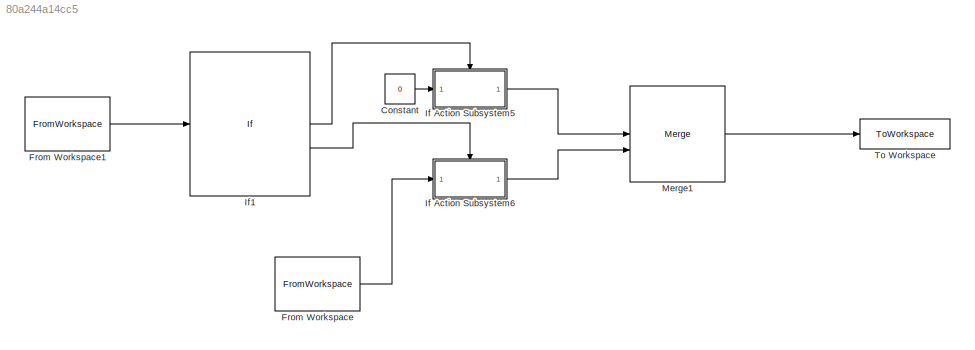
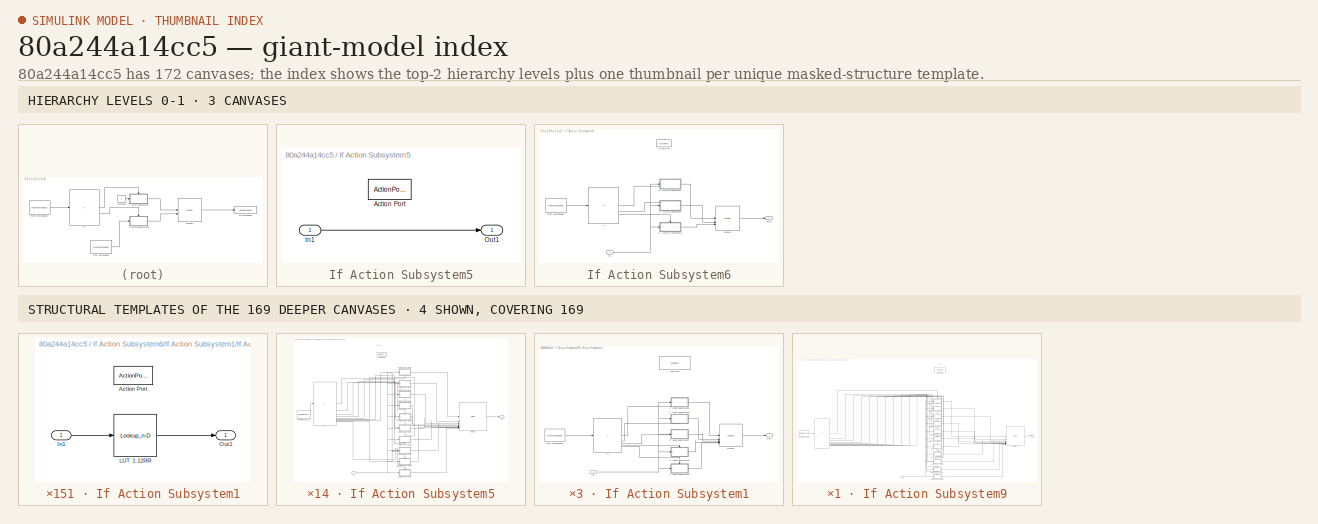
[diagram: thumbnail index - top-2 hierarchy levels (3 canvases) + 4 structural-template representatives of the remaining 169 canvases]
MODEL slx_80a244a14cc5
KIND model
CONFIG AbsTol = auto
CONFIG EnableMultiTasking = off
CONFIG FixedStep = Timegap
CONFIG MaxStep = auto
CONFIG MinStep = auto
CONFIG RelTol = 1e-3
CONFIG SampleTimeConstraint = Unconstrained
CONFIG SolverName = FixedStepAuto
CONFIG StartTime = 0
CONFIG StopTime = 10.1
WORKSPACE source: mxarray member
WORKSPACE T1_input = 1.34
BLOCK [Constant] Constant
  Value = 0
BLOCK [FromWorkspace] From Workspace
  Interpolate = off
  OutputAfterFinalValue = Setting to zero
  VariableName = SimInputT1
BLOCK [FromWorkspace] From Workspace1
  Interpolate = off
  OutputAfterFinalValue = Setting to zero
  VariableName = SimInputT1
BLOCK [SubSystem] If Action Subsystem5
  TreatAsAtomicUnit = on
BLOCK [ActionPort] If Action Subsystem5/Action Port
  ActionPortLabel = if(u1 == 0)
BLOCK [Inport] If Action Subsystem5/In1
BLOCK [Outport] If Action Subsystem5/Out1
BLOCK [SubSystem] If Action Subsystem6
  TreatAsAtomicUnit = on
BLOCK [ActionPort] If Action Subsystem6/Action Port
  ActionPortLabel = else
BLOCK [FromWorkspace] If Action Subsystem6/From Workspace1
  Interpolate = off
  OutputAfterFinalValue = Setting to zero
  VariableName = SimInputHR
BLOCK [If] If Action Subsystem6/If
  ElseIfExpressions = u1 >= 0.995
  IfExpression = u1 >= 1.495
BLOCK [SubSystem] If Action Subsystem6/If Action Subsystem1
  TreatAsAtomicUnit = on
BLOCK [ActionPort] If Action Subsystem6/If Action Subsystem1/Action Port
  ActionPortLabel = elseif(u1 >= 0.995)
BLOCK [FromWorkspace] If Action Subsystem6/If Action Subsystem1/From Workspace2
  Interpolate = off
  OutputAfterFinalValue = Setting to zero
  VariableName = SimInputHR
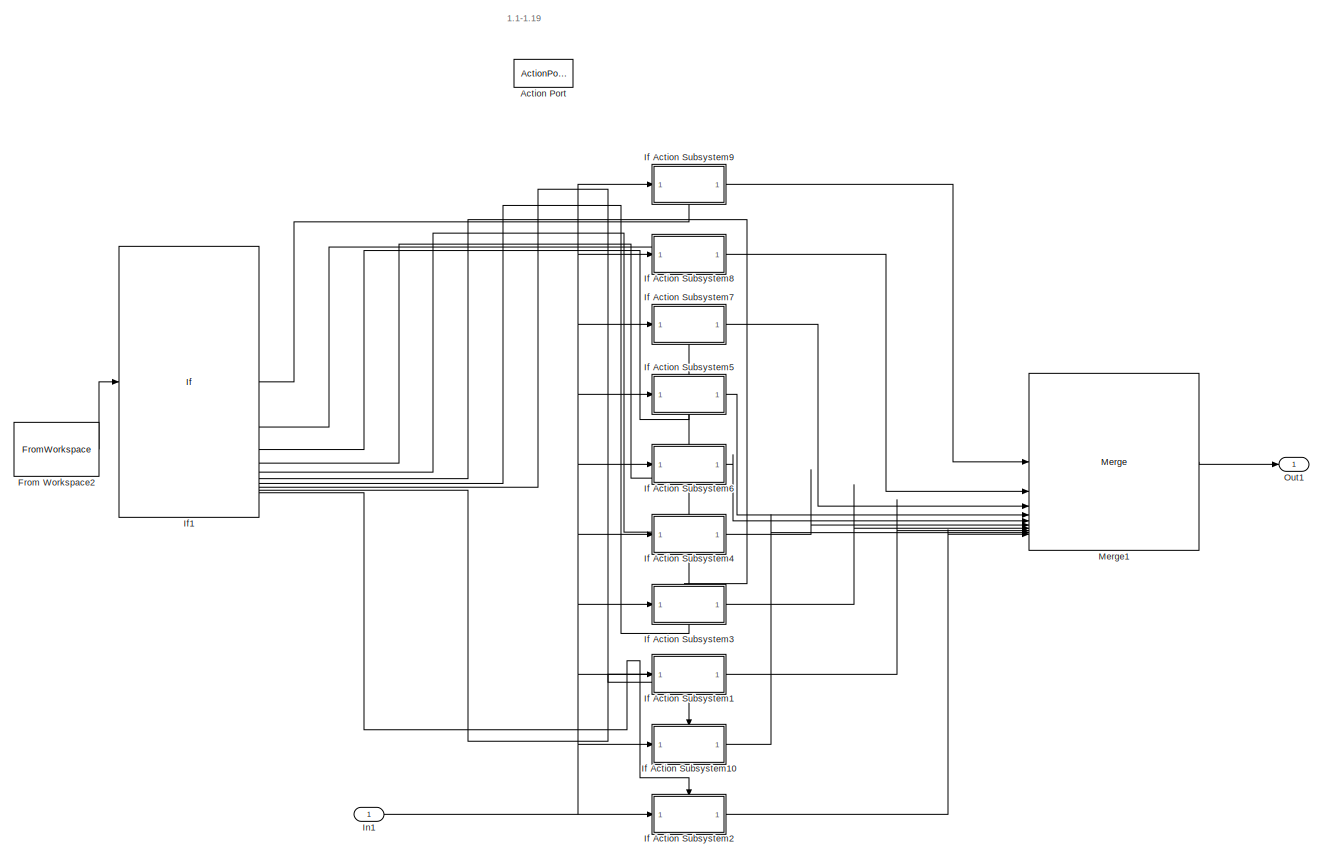
[diagram: If Action Subsystem6/If Action Subsystem1/If Action Subsystem5 - part 1/1, most of the canvas]
BLOCK [SubSystem] If Action Subsystem6/If Action Subsystem1/If Action Subsystem5
  TreatAsAtomicUnit = on
BLOCK [ActionPort] If Action Subsystem6/If Action Subsystem1/If Action Subsystem5/Action Port
  ActionPortLabel = elseif( u1 >= 1.095)
BLOCK [FromWorkspace] If Action Subsystem6/If Action Subsystem1/If Action Subsystem5/From Workspace2
  Interpolate = off
  OutputAfterFinalValue = Setting to zero
  VariableName = SimInputHR
BLOCK [SubSystem] If Action Subsystem6/If Action Subsystem1/If Action Subsystem5/If Action Subsystem1
  TreatAsAtomicUnit = on
BLOCK [ActionPort] If Action Subsystem6/If Action Subsystem1/If Action Subsystem5/If Action Subsystem1/Action Port
  ActionPortLabel = elseif( u1 >= 1.115)
BLOCK [Inport] If Action Subsystem6/If Action Subsystem1/If Action Subsystem5/If Action Subsystem1/In1
BLOCK [Lookup_n-D] If Action Subsystem6/If Action Subsystem1/If Action Subsystem5/If Action Subsystem1/LUT 1.12RR
  BreakpointsForDimension1 = [433.4935;534.0163;632.1664;730.6368;829.0669;927.4533;1025.808;1124.139;1222.454;1320.758;1419.053;1517.342;1615.626;1713.906;1812.184;1910.459;2008.731]
  InputPortMap = u0
  InternalRulePriority = Speed
  NumberOfTableDimensions = 1
  RndMeth = Simplest
  Table = [400;500;600;700;800;900;1000;1100;1200;1300;1400;1500;1600;1700;1800;1900;2000]
BLOCK [Outport] If Action Subsystem6/If Action Subsystem1/If Action Subsystem5/If Action Subsystem1/Out1
BLOCK [SubSystem] If Action Subsystem6/If Action Subsystem1/If Action Subsystem5/If Action Subsystem10
  TreatAsAtomicUnit = on
BLOCK [ActionPort] If Action Subsystem6/If Action Subsystem1/If Action Subsystem5/If Action Subsystem10/Action Port
  ActionPortLabel = elseif( u1 >= 1.105)
BLOCK [Inport] If Action Subsystem6/If Action Subsystem1/If Action Subsystem5/If Action Subsystem10/In1
BLOCK [Lookup_n-D] If Action Subsystem6/If Action Subsystem1/If Action Subsystem5/If Action Subsystem10/LUT 1.11RR
  BreakpointsForDimension1 = [433.6133;534.1951;632.4145;730.9627;829.4755;927.948;1026.391;1124.812;1223.218;1321.613;1420.001;1518.383;1616.76;1715.134;1813.506;1911.875;2010.241]
  InputPortMap = u0
  InternalRulePriority = Speed
  NumberOfTableDimensions = 1
  RndMeth = Simplest
  Table = [400;500;600;700;800;900;1000;1100;1200;1300;1400;1500;1600;1700;1800;1900;2000]
BLOCK [Outport] If Action Subsystem6/If Action Subsystem1/If Action Subsystem5/If Action Subsystem10/Out1
BLOCK [SubSystem] If Action Subsystem6/If Action Subsystem1/If Action Subsystem5/If Action Subsystem2
  TreatAsAtomicUnit = on
BLOCK [ActionPort] If Action Subsystem6/If Action Subsystem1/If Action Subsystem5/If Action Subsystem2/Action Port
  ActionPortLabel = else
BLOCK [Inport] If Action Subsystem6/If Action Subsystem1/If Action Subsystem5/If Action Subsystem2/In1
BLOCK [Lookup_n-D] If Action Subsystem6/If Action Subsystem1/If Action Subsystem5/If Action Subsystem2/LUT 1.10RR
  BreakpointsForDimension1 = [433.7354;534.3781;632.6688;731.2967;829.8942;928.4546;1026.987;1125.5;1223.999;1322.488;1420.97;1519.447;1617.919;1716.389;1814.857;1913.322;2011.784]
  InputPortMap = u0
  InternalRulePriority = Speed
  NumberOfTableDimensions = 1
  RndMeth = Simplest
  Table = [400;500;600;700;800;900;1000;1100;1200;1300;1400;1500;1600;1700;1800;1900;2000]
BLOCK [Outport] If Action Subsystem6/If Action Subsystem1/If Action Subsystem5/If Action Subsystem2/Out1
BLOCK [SubSystem] If Action Subsystem6/If Action Subsystem1/If Action Subsystem5/If Action Subsystem3
  TreatAsAtomicUnit = on
BLOCK [ActionPort] If Action Subsystem6/If Action Subsystem1/If Action Subsystem5/If Action Subsystem3/Action Port
  ActionPortLabel = elseif( u1 >= 1.125)
BLOCK [Inport] If Action Subsystem6/If Action Subsystem1/If Action Subsystem5/If Action Subsystem3/In1
BLOCK [Lookup_n-D] If Action Subsystem6/If Action Subsystem1/If Action Subsystem5/If Action Subsystem3/LUT 1.13RR
  BreakpointsForDimension1 = [433.376;533.8414;631.9241;730.3186;828.6678;926.9702;1025.238;1123.482;1221.708;1319.922;1418.126;1516.324;1614.517;1712.705;1810.89;1909.073;2007.252]
  InputPortMap = u0
  InternalRulePriority = Speed
  NumberOfTableDimensions = 1
  RndMeth = Simplest
  Table = [400;500;600;700;800;900;1000;1100;1200;1300;1400;1500;1600;1700;1800;1900;2000]
BLOCK [Outport] If Action Subsystem6/If Action Subsystem1/If Action Subsystem5/If Action Subsystem3/Out1
BLOCK [SubSystem] If Action Subsystem6/If Action Subsystem1/If Action Subsystem5/If Action Subsystem4
  TreatAsAtomicUnit = on
BLOCK [ActionPort] If Action Subsystem6/If Action Subsystem1/If Action Subsystem5/If Action Subsystem4/Action Port
  ActionPortLabel = elseif( u1 >= 1.135)
BLOCK [Inport] If Action Subsystem6/If Action Subsystem1/If Action Subsystem5/If Action Subsystem4/In1
BLOCK [Lookup_n-D] If Action Subsystem6/If Action Subsystem1/If Action Subsystem5/If Action Subsystem4/LUT 1.14RR
  BreakpointsForDimension1 = [433.2606;533.6705;631.6875;730.008;828.2782;926.4983;1024.682;1122.839;1220.978;1319.104;1417.22;1515.328;1613.431;1711.529;1809.624;1907.716;2005.805]
  InputPortMap = u0
  InternalRulePriority = Speed
  NumberOfTableDimensions = 1
  RndMeth = Simplest
  Table = [400;500;600;700;800;900;1000;1100;1200;1300;1400;1500;1600;1700;1800;1900;2000]
BLOCK [Outport] If Action Subsystem6/If Action Subsystem1/If Action Subsystem5/If Action Subsystem4/Out1
BLOCK [SubSystem] If Action Subsystem6/If Action Subsystem1/If Action Subsystem5/If Action Subsystem5
  TreatAsAtomicUnit = on
BLOCK [ActionPort] If Action Subsystem6/If Action Subsystem1/If Action Subsystem5/If Action Subsystem5/Action Port
  ActionPortLabel = elseif( u1 >= 1.155)
BLOCK [Inport] If Action Subsystem6/If Action Subsystem1/If Action Subsystem5/If Action Subsystem5/In1
BLOCK [Lookup_n-D] If Action Subsystem6/If Action Subsystem1/If Action Subsystem5/If Action Subsystem5/LUT 1.16RR
  BreakpointsForDimension1 = [433.0358;533.3398;631.2306;729.4084;827.5258;925.5865;1023.606;1121.597;1219.566;1317.521;1415.464;1513.399;1611.328;1709.251;1807.17;1905.086;2002.999]
  InputPortMap = u0
  InternalRulePriority = Speed
  NumberOfTableDimensions = 1
  RndMeth = Simplest
  Table = [400;500;600;700;800;900;1000;1100;1200;1300;1400;1500;1600;1700;1800;1900;2000]
BLOCK [Outport] If Action Subsystem6/If Action Subsystem1/If Action Subsystem5/If Action Subsystem5/Out1
BLOCK [SubSystem] If Action Subsystem6/If Action Subsystem1/If Action Subsystem5/If Action Subsystem6
  TreatAsAtomicUnit = on
BLOCK [ActionPort] If Action Subsystem6/If Action Subsystem1/If Action Subsystem5/If Action Subsystem6/Action Port
  ActionPortLabel = elseif( u1 >= 1.145)
BLOCK [Inport] If Action Subsystem6/If Action Subsystem1/If Action Subsystem5/If Action Subsystem6/In1
BLOCK [Lookup_n-D] If Action Subsystem6/If Action Subsystem1/If Action Subsystem5/If Action Subsystem6/LUT 1.15RR
  BreakpointsForDimension1 = [433.1472;533.5033;631.4564;729.7047;827.8976;926.0371;1024.138;1122.211;1220.264;1318.304;1416.332;1514.353;1612.368;1710.378;1808.384;1906.387;2004.387]
  InputPortMap = u0
  InternalRulePriority = Speed
  NumberOfTableDimensions = 1
  RndMeth = Simplest
  Table = [400;500;600;700;800;900;1000;1100;1200;1300;1400;1500;1600;1700;1800;1900;2000]
BLOCK [Outport] If Action Subsystem6/If Action Subsystem1/If Action Subsystem5/If Action Subsystem6/Out1
BLOCK [SubSystem] If Action Subsystem6/If Action Subsystem1/If Action Subsystem5/If Action Subsystem7
  TreatAsAtomicUnit = on
BLOCK [ActionPort] If Action Subsystem6/If Action Subsystem1/If Action Subsystem5/If Action Subsystem7/Action Port
  ActionPortLabel = elseif( u1 >= 1.165)
BLOCK [Inport] If Action Subsystem6/If Action Subsystem1/If Action Subsystem5/If Action Subsystem7/In1
BLOCK [Lookup_n-D] If Action Subsystem6/If Action Subsystem1/If Action Subsystem5/If Action Subsystem7/LUT 1.17RR
  BreakpointsForDimension1 = [432.9264;533.1797;631.0099;729.1189;827.1624;925.1461;1023.086;1120.996;1218.883;1316.755;1414.615;1512.465;1610.309;1708.147;1805.982;1903.812;2001.639]
  InputPortMap = u0
  InternalRulePriority = Speed
  NumberOfTableDimensions = 1
  RndMeth = Simplest
  Table = [400;500;600;700;800;900;1000;1100;1200;1300;1400;1500;1600;1700;1800;1900;2000]
BLOCK [Outport] If Action Subsystem6/If Action Subsystem1/If Action Subsystem5/If Action Subsystem7/Out1
BLOCK [SubSystem] If Action Subsystem6/If Action Subsystem1/If Action Subsystem5/If Action Subsystem8
  TreatAsAtomicUnit = on
BLOCK [ActionPort] If Action Subsystem6/If Action Subsystem1/If Action Subsystem5/If Action Subsystem8/Action Port
  ActionPortLabel = elseif(u1 >= 1.175)
BLOCK [Inport] If Action Subsystem6/If Action Subsystem1/If Action Subsystem5/If Action Subsystem8/In1
BLOCK [Lookup_n-D] If Action Subsystem6/If Action Subsystem1/If Action Subsystem5/If Action Subsystem8/LUT 1.18RR
  BreakpointsForDimension1 = [432.8188;533.023;630.7942;728.8359;826.8073;924.7155;1022.578;1120.408;1218.215;1316.005;1413.783;1511.551;1609.312;1707.067;1804.817;1902.563;2000.306]
  InputPortMap = u0
  InternalRulePriority = Speed
  NumberOfTableDimensions = 1
  RndMeth = Simplest
  Table = [400;500;600;700;800;900;1000;1100;1200;1300;1400;1500;1600;1700;1800;1900;2000]
BLOCK [Outport] If Action Subsystem6/If Action Subsystem1/If Action Subsystem5/If Action Subsystem8/Out1
BLOCK [SubSystem] If Action Subsystem6/If Action Subsystem1/If Action Subsystem5/If Action Subsystem9
  TreatAsAtomicUnit = on
BLOCK [ActionPort] If Action Subsystem6/If Action Subsystem1/If Action Subsystem5/If Action Subsystem9/Action Port
  ActionPortLabel = if(u1 >= 1.185)
BLOCK [Inport] If Action Subsystem6/If Action Subsystem1/If Action Subsystem5/If Action Subsystem9/In1
BLOCK [Lookup_n-D] If Action Subsystem6/If Action Subsystem1/If Action Subsystem5/If Action Subsystem9/LUT 1.19RR
  BreakpointsForDimension1 = [432.713;532.8696;630.5834;728.5594;826.4602;924.2944;1022.081;1119.833;1217.561;1315.271;1412.968;1510.655;1608.334;1706.008;1803.676;1901.34;1999.001]
  InputPortMap = u0
  InternalRulePriority = Speed
  NumberOfTableDimensions = 1
  RndMeth = Simplest
  Table = [400;500;600;700;800;900;1000;1100;1200;1300;1400;1500;1600;1700;1800;1900;2000]
BLOCK [Outport] If Action Subsystem6/If Action Subsystem1/If Action Subsystem5/If Action Subsystem9/Out1
BLOCK [If] If Action Subsystem6/If Action Subsystem1/If Action Subsystem5/If1
  ElseIfExpressions = u1 >= 1.175, u1 >= 1.165, u1 >= 1.155, u1 >= 1.145, u1 >= 1.135, u1 >= 1.125, u1 >= 1.115, u1 >= 1.105
  IfExpression = u1 >= 1.185
BLOCK [Inport] If Action Subsystem6/If Action Subsystem1/If Action Subsystem5/In1
BLOCK [Merge] If Action Subsystem6/If Action Subsystem1/If Action Subsystem5/Merge1
  Inputs = 10
BLOCK [Outport] If Action Subsystem6/If Action Subsystem1/If Action Subsystem5/Out1
BLOCK [SubSystem] If Action Subsystem6/If Action Subsystem1/If Action Subsystem6
  TreatAsAtomicUnit = on
BLOCK [ActionPort] If Action Subsystem6/If Action Subsystem1/If Action Subsystem6/Action Port
  ActionPortLabel = else
BLOCK [FromWorkspace] If Action Subsystem6/If Action Subsystem1/If Action Subsystem6/From Workspace2
  Interpolate = off
  OutputAfterFinalValue = Setting to zero
  VariableName = SimInputHR
BLOCK [SubSystem] If Action Subsystem6/If Action Subsystem1/If Action Subsystem6/If Action Subsystem1
  TreatAsAtomicUnit = on
BLOCK [ActionPort] If Action Subsystem6/If Action Subsystem1/If Action Subsystem6/If Action Subsystem1/Action Port
  ActionPortLabel = elseif( u1 >= 1.015)
BLOCK [Inport] If Action Subsystem6/If Action Subsystem1/If Action Subsystem6/If Action Subsystem1/In1
BLOCK [Lookup_n-D] If Action Subsystem6/If Action Subsystem1/If Action Subsystem6/If Action Subsystem1/LUT 1.02RR
  BreakpointsForDimension1 = [434.8086;536.0154;634.9534;734.2975;833.6507;932.992;1032.323;1131.646;1230.964;1330.278;1429.591;1528.903;1628.215;1727.526;1826.838;1926.148;2025.453]
  InputPortMap = u0
  InternalRulePriority = Speed
  NumberOfTableDimensions = 1
  RndMeth = Simplest
  Table = [400;500;600;700;800;900;1000;1100;1200;1300;1400;1500;1600;1700;1800;1900;2000]
BLOCK [Outport] If Action Subsystem6/If Action Subsystem1/If Action Subsystem6/If Action Subsystem1/Out1
BLOCK [SubSystem] If Action Subsystem6/If Action Subsystem1/If Action Subsystem6/If Action Subsystem10
  TreatAsAtomicUnit = on
BLOCK [ActionPort] If Action Subsystem6/If Action Subsystem1/If Action Subsystem6/If Action Subsystem10/Action Port
  ActionPortLabel = elseif( u1 >= 1.005)
BLOCK [Inport] If Action Subsystem6/If Action Subsystem1/If Action Subsystem6/If Action Subsystem10/In1
BLOCK [Lookup_n-D] If Action Subsystem6/If Action Subsystem1/If Action Subsystem6/If Action Subsystem10/LUT 1.01RR
  BreakpointsForDimension1 = [434.9567;536.2449;635.2748;734.7194;834.1779;933.6278;1033.069;1132.504;1231.935;1331.364;1430.791;1530.218;1629.645;1729.073;1828.5;1927.927;2027.347]
  InputPortMap = u0
  InternalRulePriority = Speed
  NumberOfTableDimensions = 1
  RndMeth = Simplest
  Table = [400;500;600;700;800;900;1000;1100;1200;1300;1400;1500;1600;1700;1800;1900;2000]
BLOCK [Outport] If Action Subsystem6/If Action Subsystem1/If Action Subsystem6/If Action Subsystem10/Out1
BLOCK [SubSystem] If Action Subsystem6/If Action Subsystem1/If Action Subsystem6/If Action Subsystem2
  TreatAsAtomicUnit = on
BLOCK [ActionPort] If Action Subsystem6/If Action Subsystem1/If Action Subsystem6/If Action Subsystem2/Action Port
  ActionPortLabel = else
BLOCK [Inport] If Action Subsystem6/If Action Subsystem1/If Action Subsystem6/If Action Subsystem2/In1
BLOCK [Lookup_n-D] If Action Subsystem6/If Action Subsystem1/If Action Subsystem6/If Action Subsystem2/LUT 1.00RR
  BreakpointsForDimension1 = [435.1083;536.4808;635.6053;735.1532;834.7198;934.2808;1033.835;1133.385;1232.932;1332.477;1432.021;1531.566;1631.112;1730.658;1830.205;1929.75;2029.288]
  InputPortMap = u0
  InternalRulePriority = Speed
  NumberOfTableDimensions = 1
  RndMeth = Simplest
  Table = [400;500;600;700;800;900;1000;1100;1200;1300;1400;1500;1600;1700;1800;1900;2000]
BLOCK [Outport] If Action Subsystem6/If Action Subsystem1/If Action Subsystem6/If Action Subsystem2/Out1
BLOCK [SubSystem] If Action Subsystem6/If Action Subsystem1/If Action Subsystem6/If Action Subsystem3
  TreatAsAtomicUnit = on
BLOCK [ActionPort] If Action Subsystem6/If Action Subsystem1/If Action Subsystem6/If Action Subsystem3/Action Port
  ActionPortLabel = elseif( u1 >= 1.025)
BLOCK [Inport] If Action Subsystem6/If Action Subsystem1/If Action Subsystem6/If Action Subsystem3/In1
BLOCK [Lookup_n-D] If Action Subsystem6/If Action Subsystem1/If Action Subsystem6/If Action Subsystem3/LUT 1.03RR
  BreakpointsForDimension1 = [434.664;535.7919;634.6408;733.887;833.1374;932.3729;1031.596;1130.809;1230.017;1329.22;1428.421;1527.621;1626.819;1726.017;1825.215;1924.411;2023.604]
  InputPortMap = u0
  InternalRulePriority = Speed
  NumberOfTableDimensions = 1
  RndMeth = Simplest
  Table = [400;500;600;700;800;900;1000;1100;1200;1300;1400;1500;1600;1700;1800;1900;2000]
BLOCK [Outport] If Action Subsystem6/If Action Subsystem1/If Action Subsystem6/If Action Subsystem3/Out1
BLOCK [SubSystem] If Action Subsystem6/If Action Subsystem1/If Action Subsystem6/If Action Subsystem4
  TreatAsAtomicUnit = on
BLOCK [ActionPort] If Action Subsystem6/If Action Subsystem1/If Action Subsystem6/If Action Subsystem4/Action Port
  ActionPortLabel = elseif( u1 >= 1.035)
BLOCK [Inport] If Action Subsystem6/If Action Subsystem1/If Action Subsystem6/If Action Subsystem4/In1
BLOCK [Lookup_n-D] If Action Subsystem6/If Action Subsystem1/If Action Subsystem6/If Action Subsystem4/LUT 1.04RR
  BreakpointsForDimension1 = [434.5226;535.5743;634.3365;733.4874;832.6376;931.7698;1030.887;1129.994;1229.093;1328.188;1427.279;1526.369;1625.457;1724.544;1823.63;1922.716;2021.797]
  InputPortMap = u0
  InternalRulePriority = Speed
  NumberOfTableDimensions = 1
  RndMeth = Simplest
  Table = [400;500;600;700;800;900;1000;1100;1200;1300;1400;1500;1600;1700;1800;1900;2000]
BLOCK [Outport] If Action Subsystem6/If Action Subsystem1/If Action Subsystem6/If Action Subsystem4/Out1
BLOCK [SubSystem] If Action Subsystem6/If Action Subsystem1/If Action Subsystem6/If Action Subsystem5
  TreatAsAtomicUnit = on
BLOCK [ActionPort] If Action Subsystem6/If Action Subsystem1/If Action Subsystem6/If Action Subsystem5/Action Port
  ActionPortLabel = elseif( u1 >= 1.055)
BLOCK [Inport] If Action Subsystem6/If Action Subsystem1/If Action Subsystem6/If Action Subsystem5/In1
BLOCK [Lookup_n-D] If Action Subsystem6/If Action Subsystem1/If Action Subsystem6/If Action Subsystem5/LUT 1.06RR
  BreakpointsForDimension1 = [434.2491;535.1556;633.7517;732.7193;831.6764;930.6091;1029.523;1128.423;1227.313;1326.197;1425.077;1523.953;1622.827;1721.7;1820.571;1919.441;2018.308]
  InputPortMap = u0
  InternalRulePriority = Speed
  NumberOfTableDimensions = 1
  RndMeth = Simplest
  Table = [400;500;600;700;800;900;1000;1100;1200;1300;1400;1500;1600;1700;1800;1900;2000]
BLOCK [Outport] If Action Subsystem6/If Action Subsystem1/If Action Subsystem6/If Action Subsystem5/Out1
BLOCK [SubSystem] If Action Subsystem6/If Action Subsystem1/If Action Subsystem6/If Action Subsystem6
  TreatAsAtomicUnit = on
BLOCK [ActionPort] If Action Subsystem6/If Action Subsystem1/If Action Subsystem6/If Action Subsystem6/Action Port
  ActionPortLabel = elseif( u1 >= 1.045)
BLOCK [Inport] If Action Subsystem6/If Action Subsystem1/If Action Subsystem6/If Action Subsystem6/In1
BLOCK [Lookup_n-D] If Action Subsystem6/If Action Subsystem1/If Action Subsystem6/If Action Subsystem6/LUT 1.05RR
  BreakpointsForDimension1 = [434.3843;535.3623;634.0403;733.0983;832.1508;931.1821;1030.196;1129.199;1228.192;1327.181;1426.165;1525.147;1624.126;1723.105;1822.083;1921.059;2020.032]
  InputPortMap = u0
  InternalRulePriority = Speed
  NumberOfTableDimensions = 1
  RndMeth = Simplest
  Table = [400;500;600;700;800;900;1000;1100;1200;1300;1400;1500;1600;1700;1800;1900;2000]
BLOCK [Outport] If Action Subsystem6/If Action Subsystem1/If Action Subsystem6/If Action Subsystem6/Out1
BLOCK [SubSystem] If Action Subsystem6/If Action Subsystem1/If Action Subsystem6/If Action Subsystem7
  TreatAsAtomicUnit = on
BLOCK [ActionPort] If Action Subsystem6/If Action Subsystem1/If Action Subsystem6/If Action Subsystem7/Action Port
  ActionPortLabel = elseif( u1 >= 1.065)
BLOCK [Inport] If Action Subsystem6/If Action Subsystem1/If Action Subsystem6/If Action Subsystem7/In1
BLOCK [Lookup_n-D] If Action Subsystem6/If Action Subsystem1/If Action Subsystem6/If Action Subsystem7/LUT 1.07RR
  BreakpointsForDimension1 = [434.1166;534.9541;633.4706;732.35;831.2139;930.0504;1028.866;1127.666;1226.455;1325.237;1424.014;1522.787;1621.558;1720.327;1819.094;1917.859;2016.622]
  InputPortMap = u0
  InternalRulePriority = Speed
  NumberOfTableDimensions = 1
  RndMeth = Simplest
  Table = [400;500;600;700;800;900;1000;1100;1200;1300;1400;1500;1600;1700;1800;1900;2000]
BLOCK [Outport] If Action Subsystem6/If Action Subsystem1/If Action Subsystem6/If Action Subsystem7/Out1
BLOCK [SubSystem] If Action Subsystem6/If Action Subsystem1/If Action Subsystem6/If Action Subsystem8
  TreatAsAtomicUnit = on
BLOCK [ActionPort] If Action Subsystem6/If Action Subsystem1/If Action Subsystem6/If Action Subsystem8/Action Port
  ActionPortLabel = elseif(u1 >= 1.075)
BLOCK [Inport] If Action Subsystem6/If Action Subsystem1/If Action Subsystem6/If Action Subsystem8/In1
BLOCK [Lookup_n-D] If Action Subsystem6/If Action Subsystem1/If Action Subsystem6/If Action Subsystem8/LUT 1.08RR
  BreakpointsForDimension1 = [433.987;534.7575;633.1966;731.9901;830.763;929.5054;1028.224;1126.927;1225.617;1324.299;1422.976;1521.648;1620.317;1718.984;1817.65;1916.313;2014.973]
  InputPortMap = u0
  InternalRulePriority = Speed
  NumberOfTableDimensions = 1
  RndMeth = Simplest
  Table = [400;500;600;700;800;900;1000;1100;1200;1300;1400;1500;1600;1700;1800;1900;2000]
BLOCK [Outport] If Action Subsystem6/If Action Subsystem1/If Action Subsystem6/If Action Subsystem8/Out1
BLOCK [SubSystem] If Action Subsystem6/If Action Subsystem1/If Action Subsystem6/If Action Subsystem9
  TreatAsAtomicUnit = on
BLOCK [ActionPort] If Action Subsystem6/If Action Subsystem1/If Action Subsystem6/If Action Subsystem9/Action Port
  ActionPortLabel = if(u1 >= 1.085)
BLOCK [Inport] If Action Subsystem6/If Action Subsystem1/If Action Subsystem6/If Action Subsystem9/In1
BLOCK [Lookup_n-D] If Action Subsystem6/If Action Subsystem1/If Action Subsystem6/If Action Subsystem9/LUT 1.09RR
  BreakpointsForDimension1 = [433.8599;534.5681;632.9294;731.6391;830.3233;928.9736;1027.598;1126.205;1224.799;1323.383;1421.962;1520.535;1619.105;1717.672;1816.237;1914.801;2013.361]
  InputPortMap = u0
  InternalRulePriority = Speed
  NumberOfTableDimensions = 1
  RndMeth = Simplest
  Table = [400;500;600;700;800;900;1000;1100;1200;1300;1400;1500;1600;1700;1800;1900;2000]
BLOCK [Outport] If Action Subsystem6/If Action Subsystem1/If Action Subsystem6/If Action Subsystem9/Out1
BLOCK [If] If Action Subsystem6/If Action Subsystem1/If Action Subsystem6/If1
  ElseIfExpressions = u1 >= 1.075, u1 >= 1.065, u1 >= 1.055, u1 >= 1.045, u1 >= 1.035, u1 >= 1.025, u1 >= 1.015, u1 >= 1.005
  IfExpression = u1 >= 1.085
BLOCK [Inport] If Action Subsystem6/If Action Subsystem1/If Action Subsystem6/In1
BLOCK [Merge] If Action Subsystem6/If Action Subsystem1/If Action Subsystem6/Merge1
  Inputs = 10
BLOCK [Outport] If Action Subsystem6/If Action Subsystem1/If Action Subsystem6/Out1
BLOCK [SubSystem] If Action Subsystem6/If Action Subsystem1/If Action Subsystem7
  TreatAsAtomicUnit = on
BLOCK [ActionPort] If Action Subsystem6/If Action Subsystem1/If Action Subsystem7/Action Port
  ActionPortLabel = elseif( u1 >= 1.195)
BLOCK [FromWorkspace] If Action Subsystem6/If Action Subsystem1/If Action Subsystem7/From Workspace2
  Interpolate = off
  OutputAfterFinalValue = Setting to zero
  VariableName = SimInputHR
BLOCK [SubSystem] If Action Subsystem6/If Action Subsystem1/If Action Subsystem7/If Action Subsystem1
  TreatAsAtomicUnit = on
BLOCK [ActionPort] If Action Subsystem6/If Action Subsystem1/If Action Subsystem7/If Action Subsystem1/Action Port
  ActionPortLabel = elseif( u1 >= 1.215)
BLOCK [Inport] If Action Subsystem6/If Action Subsystem1/If Action Subsystem7/If Action Subsystem1/In1
BLOCK [Lookup_n-D] If Action Subsystem6/If Action Subsystem1/If Action Subsystem7/If Action Subsystem1/LUT 1.22RR
  BreakpointsForDimension1 = [432.4057;532.4278;629.9781;727.7664;825.4645;923.086;1020.653;1118.181;1215.681;1313.16;1410.624;1508.077;1605.521;1702.957;1800.388;1897.814;1995.235]
  InputPortMap = u0
  InternalRulePriority = Speed
  NumberOfTableDimensions = 1
  RndMeth = Simplest
  Table = [400;500;600;700;800;900;1000;1100;1200;1300;1400;1500;1600;1700;1800;1900;2000]
BLOCK [Outport] If Action Subsystem6/If Action Subsystem1/If Action Subsystem7/If Action Subsystem1/Out1
BLOCK [SubSystem] If Action Subsystem6/If Action Subsystem1/If Action Subsystem7/If Action Subsystem10
  TreatAsAtomicUnit = on
BLOCK [ActionPort] If Action Subsystem6/If Action Subsystem1/If Action Subsystem7/If Action Subsystem10/Action Port
  ActionPortLabel = elseif( u1 >= 1.205)
BLOCK [Inport] If Action Subsystem6/If Action Subsystem1/If Action Subsystem7/If Action Subsystem10/In1
BLOCK [Lookup_n-D] If Action Subsystem6/If Action Subsystem1/If Action Subsystem7/If Action Subsystem10/LUT 1.21RR
  BreakpointsForDimension1 = [432.5065;532.5721;630.1754;728.0248;825.789;923.48;1021.118;1118.72;1216.294;1313.849;1411.39;1508.919;1606.44;1703.953;1801.462;1898.966;1996.466]
  InputPortMap = u0
  InternalRulePriority = Speed
  NumberOfTableDimensions = 1
  RndMeth = Simplest
  Table = [400;500;600;700;800;900;1000;1100;1200;1300;1400;1500;1600;1700;1800;1900;2000]
BLOCK [Outport] If Action Subsystem6/If Action Subsystem1/If Action Subsystem7/If Action Subsystem10/Out1
BLOCK [SubSystem] If Action Subsystem6/If Action Subsystem1/If Action Subsystem7/If Action Subsystem2
  TreatAsAtomicUnit = on
BLOCK [ActionPort] If Action Subsystem6/If Action Subsystem1/If Action Subsystem7/If Action Subsystem2/Action Port
  ActionPortLabel = else
BLOCK [Inport] If Action Subsystem6/If Action Subsystem1/If Action Subsystem7/If Action Subsystem2/In1
BLOCK [Lookup_n-D] If Action Subsystem6/If Action Subsystem1/If Action Subsystem7/If Action Subsystem2/LUT 1.20RR
  BreakpointsForDimension1 = [432.6089;532.7193;630.3771;728.2891;826.1208;923.8827;1021.594;1119.27;1216.921;1314.553;1412.171;1509.778;1607.377;1704.97;1802.558;1900.141;1997.72]
  InputPortMap = u0
  InternalRulePriority = Speed
  NumberOfTableDimensions = 1
  RndMeth = Simplest
  Table = [400;500;600;700;800;900;1000;1100;1200;1300;1400;1500;1600;1700;1800;1900;2000]
BLOCK [Outport] If Action Subsystem6/If Action Subsystem1/If Action Subsystem7/If Action Subsystem2/Out1
BLOCK [SubSystem] If Action Subsystem6/If Action Subsystem1/If Action Subsystem7/If Action Subsystem3
  TreatAsAtomicUnit = on
BLOCK [ActionPort] If Action Subsystem6/If Action Subsystem1/If Action Subsystem7/If Action Subsystem3/Action Port
  ActionPortLabel = elseif( u1 >= 1.225)
BLOCK [Inport] If Action Subsystem6/If Action Subsystem1/If Action Subsystem7/If Action Subsystem3/In1
BLOCK [Lookup_n-D] If Action Subsystem6/If Action Subsystem1/If Action Subsystem7/If Action Subsystem3/LUT 1.23RR
  BreakpointsForDimension1 = [432.3064;532.2863;629.7849;727.5136;825.147;922.7006;1020.197;1117.653;1215.08;1312.485;1409.875;1507.252;1604.62;1701.98;1799.335;1896.684;1994.029]
  InputPortMap = u0
  InternalRulePriority = Speed
  NumberOfTableDimensions = 1
  RndMeth = Simplest
  Table = [400;500;600;700;800;900;1000;1100;1200;1300;1400;1500;1600;1700;1800;1900;2000]
BLOCK [Outport] If Action Subsystem6/If Action Subsystem1/If Action Subsystem7/If Action Subsystem3/Out1
BLOCK [SubSystem] If Action Subsystem6/If Action Subsystem1/If Action Subsystem7/If Action Subsystem4
  TreatAsAtomicUnit = on
BLOCK [ActionPort] If Action Subsystem6/If Action Subsystem1/If Action Subsystem7/If Action Subsystem4/Action Port
  ActionPortLabel = elseif( u1 >= 1.235)
BLOCK [Inport] If Action Subsystem6/If Action Subsystem1/If Action Subsystem7/If Action Subsystem4/In1
BLOCK [Lookup_n-D] If Action Subsystem6/If Action Subsystem1/If Action Subsystem7/If Action Subsystem4/LUT 1.24RR
  BreakpointsForDimension1 = [432.2086;532.1477;629.596;727.2663;824.8365;922.3235;1019.751;1117.136;1214.492;1311.824;1409.14;1506.444;1603.737;1701.023;1798.302;1895.576;1992.846]
  InputPortMap = u0
  InternalRulePriority = Speed
  NumberOfTableDimensions = 1
  RndMeth = Simplest
  Table = [400;500;600;700;800;900;1000;1100;1200;1300;1400;1500;1600;1700;1800;1900;2000]
BLOCK [Outport] If Action Subsystem6/If Action Subsystem1/If Action Subsystem7/If Action Subsystem4/Out1
BLOCK [SubSystem] If Action Subsystem6/If Action Subsystem1/If Action Subsystem7/If Action Subsystem5
  TreatAsAtomicUnit = on
BLOCK [ActionPort] If Action Subsystem6/If Action Subsystem1/If Action Subsystem7/If Action Subsystem5/Action Port
  ActionPortLabel = elseif( u1 >= 1.255)
BLOCK [Inport] If Action Subsystem6/If Action Subsystem1/If Action Subsystem7/If Action Subsystem5/In1
BLOCK [Lookup_n-D] If Action Subsystem6/If Action Subsystem1/If Action Subsystem7/If Action Subsystem5/LUT 1.26RR
  BreakpointsForDimension1 = [432.0174;531.8783;629.2298;726.7877;824.2353;921.5931;1018.887;1116.135;1213.351;1310.542;1407.715;1504.875;1602.023;1699.163;1796.297;1893.424;1990.547]
  InputPortMap = u0
  InternalRulePriority = Speed
  NumberOfTableDimensions = 1
  RndMeth = Simplest
  Table = [400;500;600;700;800;900;1000;1100;1200;1300;1400;1500;1600;1700;1800;1900;2000]
BLOCK [Outport] If Action Subsystem6/If Action Subsystem1/If Action Subsystem7/If Action Subsystem5/Out1
BLOCK [SubSystem] If Action Subsystem6/If Action Subsystem1/If Action Subsystem7/If Action Subsystem6
  TreatAsAtomicUnit = on
BLOCK [ActionPort] If Action Subsystem6/If Action Subsystem1/If Action Subsystem7/If Action Subsystem6/Action Port
  ActionPortLabel = elseif( u1 >= 1.245)
BLOCK [Inport] If Action Subsystem6/If Action Subsystem1/If Action Subsystem7/If Action Subsystem6/In1
BLOCK [Lookup_n-D] If Action Subsystem6/If Action Subsystem1/If Action Subsystem7/If Action Subsystem6/LUT 1.25RR
  BreakpointsForDimension1 = [432.1123;532.0117;629.411;727.0244;824.5326;921.9544;1019.314;1116.631;1213.915;1311.177;1408.421;1505.651;1602.872;1700.084;1797.29;1894.49;1991.685]
  InputPortMap = u0
  InternalRulePriority = Speed
  NumberOfTableDimensions = 1
  RndMeth = Simplest
  Table = [400;500;600;700;800;900;1000;1100;1200;1300;1400;1500;1600;1700;1800;1900;2000]
BLOCK [Outport] If Action Subsystem6/If Action Subsystem1/If Action Subsystem7/If Action Subsystem6/Out1
BLOCK [SubSystem] If Action Subsystem6/If Action Subsystem1/If Action Subsystem7/If Action Subsystem7
  TreatAsAtomicUnit = on
BLOCK [ActionPort] If Action Subsystem6/If Action Subsystem1/If Action Subsystem7/If Action Subsystem7/Action Port
  ActionPortLabel = elseif( u1 >= 1.265)
BLOCK [Inport] If Action Subsystem6/If Action Subsystem1/If Action Subsystem7/If Action Subsystem7/In1
BLOCK [Lookup_n-D] If Action Subsystem6/If Action Subsystem1/If Action Subsystem7/If Action Subsystem7/LUT 1.27RR
  BreakpointsForDimension1 = [431.9239;531.7475;629.0525;726.556;823.9443;921.2395;1018.468;1115.65;1212.798;1309.92;1407.024;1504.113;1601.191;1698.26;1795.322;1892.379;1989.43]
  InputPortMap = u0
  InternalRulePriority = Speed
  NumberOfTableDimensions = 1
  RndMeth = Simplest
  Table = [400;500;600;700;800;900;1000;1100;1200;1300;1400;1500;1600;1700;1800;1900;2000]
BLOCK [Outport] If Action Subsystem6/If Action Subsystem1/If Action Subsystem7/If Action Subsystem7/Out1
BLOCK [SubSystem] If Action Subsystem6/If Action Subsystem1/If Action Subsystem7/If Action Subsystem8
  TreatAsAtomicUnit = on
BLOCK [ActionPort] If Action Subsystem6/If Action Subsystem1/If Action Subsystem7/If Action Subsystem8/Action Port
  ActionPortLabel = elseif(u1 >= 1.275)
BLOCK [Inport] If Action Subsystem6/If Action Subsystem1/If Action Subsystem7/If Action Subsystem8/In1
BLOCK [Lookup_n-D] If Action Subsystem6/If Action Subsystem1/If Action Subsystem7/If Action Subsystem8/LUT 1.28RR
  BreakpointsForDimension1 = [431.8317;531.6191;628.8788;726.3292;823.6595;920.8933;1018.058;1115.175;1212.256;1309.311;1406.346;1503.366;1600.375;1697.375;1794.367;1891.353;1988.334]
  InputPortMap = u0
  InternalRulePriority = Speed
  NumberOfTableDimensions = 1
  RndMeth = Simplest
  Table = [400;500;600;700;800;900;1000;1100;1200;1300;1400;1500;1600;1700;1800;1900;2000]
BLOCK [Outport] If Action Subsystem6/If Action Subsystem1/If Action Subsystem7/If Action Subsystem8/Out1
BLOCK [SubSystem] If Action Subsystem6/If Action Subsystem1/If Action Subsystem7/If Action Subsystem9
  TreatAsAtomicUnit = on
BLOCK [ActionPort] If Action Subsystem6/If Action Subsystem1/If Action Subsystem7/If Action Subsystem9/Action Port
  ActionPortLabel = if(u1 >= 1.285)
BLOCK [Inport] If Action Subsystem6/If Action Subsystem1/If Action Subsystem7/If Action Subsystem9/In1
BLOCK [Lookup_n-D] If Action Subsystem6/If Action Subsystem1/If Action Subsystem7/If Action Subsystem9/LUT 1.29RR
  BreakpointsForDimension1 = [431.7409;531.4931;628.7087;726.1072;823.3807;920.5544;1017.657;1114.709;1211.725;1308.713;1405.681;1502.634;1599.575;1696.506;1793.429;1890.346;1987.258]
  InputPortMap = u0
  InternalRulePriority = Speed
  NumberOfTableDimensions = 1
  RndMeth = Simplest
  Table = [400;500;600;700;800;900;1000;1100;1200;1300;1400;1500;1600;1700;1800;1900;2000]
BLOCK [Outport] If Action Subsystem6/If Action Subsystem1/If Action Subsystem7/If Action Subsystem9/Out1
BLOCK [If] If Action Subsystem6/If Action Subsystem1/If Action Subsystem7/If1
  ElseIfExpressions = u1 >= 1.275, u1 >= 1.265, u1 >= 1.255, u1 >= 1.245, u1 >= 1.235, u1 >= 1.225, u1 >= 1.215, u1 >= 1.205
  IfExpression = u1 >= 1.285
BLOCK [Inport] If Action Subsystem6/If Action Subsystem1/If Action Subsystem7/In2
BLOCK [Merge] If Action Subsystem6/If Action Subsystem1/If Action Subsystem7/Merge1
  Inputs = 10
BLOCK [Outport] If Action Subsystem6/If Action Subsystem1/If Action Subsystem7/Out2
BLOCK [SubSystem] If Action Subsystem6/If Action Subsystem1/If Action Subsystem8
  TreatAsAtomicUnit = on
BLOCK [ActionPort] If Action Subsystem6/If Action Subsystem1/If Action Subsystem8/Action Port
  ActionPortLabel = elseif(u1 >= 1.295)
BLOCK [FromWorkspace] If Action Subsystem6/If Action Subsystem1/If Action Subsystem8/From Workspace2
  Interpolate = off
  OutputAfterFinalValue = Setting to zero
  VariableName = SimInputHR
BLOCK [SubSystem] If Action Subsystem6/If Action Subsystem1/If Action Subsystem8/If Action Subsystem1
  TreatAsAtomicUnit = on
BLOCK [ActionPort] If Action Subsystem6/If Action Subsystem1/If Action Subsystem8/If Action Subsystem1/Action Port
  ActionPortLabel = elseif( u1 >= 1.315)
BLOCK [Inport] If Action Subsystem6/If Action Subsystem1/If Action Subsystem8/If Action Subsystem1/In1
BLOCK [Lookup_n-D] If Action Subsystem6/If Action Subsystem1/If Action Subsystem8/If Action Subsystem1/LUT 1.32RR
  BreakpointsForDimension1 = [431.4756;531.1287;628.2187;725.4687;822.5789;919.5791;1016.501;1113.368;1210.194;1306.99;1403.764;1500.521;1597.264;1693.997;1790.721;1887.438;1984.149]
  InputPortMap = u0
  InternalRulePriority = Speed
  NumberOfTableDimensions = 1
  RndMeth = Simplest
  Table = [400;500;600;700;800;900;1000;1100;1200;1300;1400;1500;1600;1700;1800;1900;2000]
BLOCK [Outport] If Action Subsystem6/If Action Subsystem1/If Action Subsystem8/If Action Subsystem1/Out1
BLOCK [SubSystem] If Action Subsystem6/If Action Subsystem1/If Action Subsystem8/If Action Subsystem10
  TreatAsAtomicUnit = on
BLOCK [ActionPort] If Action Subsystem6/If Action Subsystem1/If Action Subsystem8/If Action Subsystem10/Action Port
  ActionPortLabel = elseif( u1 >= 1.305)
BLOCK [Inport] If Action Subsystem6/If Action Subsystem1/If Action Subsystem8/If Action Subsystem10/In1
BLOCK [Lookup_n-D] If Action Subsystem6/If Action Subsystem1/If Action Subsystem8/If Action Subsystem10/LUT 1.31RR
  BreakpointsForDimension1 = [431.5628;531.248;628.3787;725.6771;822.8406;919.8974;1016.879;1113.806;1210.694;1307.553;1404.391;1501.212;1598.02;1694.817;1791.607;1888.389;1985.166]
  InputPortMap = u0
  InternalRulePriority = Speed
  NumberOfTableDimensions = 1
  RndMeth = Simplest
  Table = [400;500;600;700;800;900;1000;1100;1200;1300;1400;1500;1600;1700;1800;1900;2000]
BLOCK [Outport] If Action Subsystem6/If Action Subsystem1/If Action Subsystem8/If Action Subsystem10/Out1
BLOCK [SubSystem] If Action Subsystem6/If Action Subsystem1/If Action Subsystem8/If Action Subsystem2
  TreatAsAtomicUnit = on
BLOCK [ActionPort] If Action Subsystem6/If Action Subsystem1/If Action Subsystem8/If Action Subsystem2/Action Port
  ActionPortLabel = else
BLOCK [Inport] If Action Subsystem6/If Action Subsystem1/If Action Subsystem8/If Action Subsystem2/In1
BLOCK [Lookup_n-D] If Action Subsystem6/If Action Subsystem1/If Action Subsystem8/If Action Subsystem2/LUT 1.30RR
  BreakpointsForDimension1 = [431.6512;531.3694;628.542;725.8899;823.1078;920.2225;1017.264;1114.253;1211.204;1308.127;1405.03;1501.916;1598.79;1695.654;1792.509;1889.359;1986.202]
  InputPortMap = u0
  InternalRulePriority = Speed
  NumberOfTableDimensions = 1
  RndMeth = Simplest
  Table = [400;500;600;700;800;900;1000;1100;1200;1300;1400;1500;1600;1700;1800;1900;2000]
BLOCK [Outport] If Action Subsystem6/If Action Subsystem1/If Action Subsystem8/If Action Subsystem2/Out1
BLOCK [SubSystem] If Action Subsystem6/If Action Subsystem1/If Action Subsystem8/If Action Subsystem3
  TreatAsAtomicUnit = on
BLOCK [ActionPort] If Action Subsystem6/If Action Subsystem1/If Action Subsystem8/If Action Subsystem3/Action Port
  ActionPortLabel = elseif( u1 >= 1.325)
BLOCK [Inport] If Action Subsystem6/If Action Subsystem1/If Action Subsystem8/If Action Subsystem3/In1
BLOCK [Lookup_n-D] If Action Subsystem6/If Action Subsystem1/If Action Subsystem8/If Action Subsystem3/LUT 1.33RR
  BreakpointsForDimension1 = [431.3895;531.0116;628.0619;725.2646;822.3226;919.2673;1016.131;1112.938;1209.703;1306.438;1403.149;1499.843;1596.523;1693.191;1789.851;1886.503;1983.15]
  InputPortMap = u0
  InternalRulePriority = Speed
  NumberOfTableDimensions = 1
  RndMeth = Simplest
  Table = [400;500;600;700;800;900;1000;1100;1200;1300;1400;1500;1600;1700;1800;1900;2000]
BLOCK [Outport] If Action Subsystem6/If Action Subsystem1/If Action Subsystem8/If Action Subsystem3/Out1
BLOCK [SubSystem] If Action Subsystem6/If Action Subsystem1/If Action Subsystem8/If Action Subsystem4
  TreatAsAtomicUnit = on
BLOCK [ActionPort] If Action Subsystem6/If Action Subsystem1/If Action Subsystem8/If Action Subsystem4/Action Port
  ActionPortLabel = elseif( u1 >= 1.335)
BLOCK [Inport] If Action Subsystem6/If Action Subsystem1/If Action Subsystem8/If Action Subsystem4/In1
BLOCK [Lookup_n-D] If Action Subsystem6/If Action Subsystem1/If Action Subsystem8/If Action Subsystem4/LUT 1.34RR
  BreakpointsForDimension1 = [431.3046;530.8966;627.9082;725.0647;822.0716;918.9618;1015.769;1112.517;1209.223;1305.897;1402.546;1499.178;1595.795;1692.401;1788.997;1885.586;1982.169]
  InputPortMap = u0
  InternalRulePriority = Speed
  NumberOfTableDimensions = 1
  RndMeth = Simplest
  Table = [400;500;600;700;800;900;1000;1100;1200;1300;1400;1500;1600;1700;1800;1900;2000]
BLOCK [Outport] If Action Subsystem6/If Action Subsystem1/If Action Subsystem8/If Action Subsystem4/Out1
BLOCK [SubSystem] If Action Subsystem6/If Action Subsystem1/If Action Subsystem8/If Action Subsystem5
  TreatAsAtomicUnit = on
BLOCK [ActionPort] If Action Subsystem6/If Action Subsystem1/If Action Subsystem8/If Action Subsystem5/Action Port
  ActionPortLabel = elseif( u1 >= 1.355)
BLOCK [Inport] If Action Subsystem6/If Action Subsystem1/If Action Subsystem8/If Action Subsystem5/In1
BLOCK [Lookup_n-D] If Action Subsystem6/If Action Subsystem1/If Action Subsystem8/If Action Subsystem5/LUT 1.36RR
  BreakpointsForDimension1 = [431.138;530.6725;627.6097;724.6771;821.585;918.3694;1015.066;1111.7;1208.289;1304.845;1401.375;1497.885;1594.38;1690.863;1787.336;1883.801;1980.259]
  InputPortMap = u0
  InternalRulePriority = Speed
  NumberOfTableDimensions = 1
  RndMeth = Simplest
  Table = [400;500;600;700;800;900;1000;1100;1200;1300;1400;1500;1600;1700;1800;1900;2000]
BLOCK [Outport] If Action Subsystem6/If Action Subsystem1/If Action Subsystem8/If Action Subsystem5/Out1
BLOCK [SubSystem] If Action Subsystem6/If Action Subsystem1/If Action Subsystem8/If Action Subsystem6
  TreatAsAtomicUnit = on
BLOCK [ActionPort] If Action Subsystem6/If Action Subsystem1/If Action Subsystem8/If Action Subsystem6/Action Port
  ActionPortLabel = elseif( u1 >= 1.345)
BLOCK [Inport] If Action Subsystem6/If Action Subsystem1/If Action Subsystem8/If Action Subsystem6/In1
BLOCK [Lookup_n-D] If Action Subsystem6/If Action Subsystem1/If Action Subsystem8/If Action Subsystem6/LUT 1.35RR
  BreakpointsForDimension1 = [431.2207;530.7835;627.7575;724.8689;821.8258;918.6626;1015.414;1112.105;1208.752;1305.366;1401.955;1498.525;1595.081;1691.625;1788.159;1884.686;1981.205]
  InputPortMap = u0
  InternalRulePriority = Speed
  NumberOfTableDimensions = 1
  RndMeth = Simplest
  Table = [400;500;600;700;800;900;1000;1100;1200;1300;1400;1500;1600;1700;1800;1900;2000]
BLOCK [Outport] If Action Subsystem6/If Action Subsystem1/If Action Subsystem8/If Action Subsystem6/Out1
BLOCK [SubSystem] If Action Subsystem6/If Action Subsystem1/If Action Subsystem8/If Action Subsystem7
  TreatAsAtomicUnit = on
BLOCK [ActionPort] If Action Subsystem6/If Action Subsystem1/If Action Subsystem8/If Action Subsystem7/Action Port
  ActionPortLabel = elseif( u1 >= 1.365)
BLOCK [Inport] If Action Subsystem6/If Action Subsystem1/If Action Subsystem8/If Action Subsystem7/In1
BLOCK [Lookup_n-D] If Action Subsystem6/If Action Subsystem1/If Action Subsystem8/If Action Subsystem7/LUT 1.37RR
  BreakpointsForDimension1 = [431.0562;530.5633;627.4649;724.4891;821.3491;918.0821;1014.725;1111.304;1207.836;1304.334;1400.805;1497.256;1593.692;1690.115;1786.528;1882.932;1979.33]
  InputPortMap = u0
  InternalRulePriority = Speed
  NumberOfTableDimensions = 1
  RndMeth = Simplest
  Table = [400;500;600;700;800;900;1000;1100;1200;1300;1400;1500;1600;1700;1800;1900;2000]
BLOCK [Outport] If Action Subsystem6/If Action Subsystem1/If Action Subsystem8/If Action Subsystem7/Out1
BLOCK [SubSystem] If Action Subsystem6/If Action Subsystem1/If Action Subsystem8/If Action Subsystem8
  TreatAsAtomicUnit = on
BLOCK [ActionPort] If Action Subsystem6/If Action Subsystem1/If Action Subsystem8/If Action Subsystem8/Action Port
  ActionPortLabel = elseif(u1 >= 1.375)
BLOCK [Inport] If Action Subsystem6/If Action Subsystem1/If Action Subsystem8/If Action Subsystem8/In1
BLOCK [Lookup_n-D] If Action Subsystem6/If Action Subsystem1/If Action Subsystem8/If Action Subsystem8/LUT 1.38RR
  BreakpointsForDimension1 = [430.9755;530.4561;627.3228;724.305;821.1179;917.8006;1014.391;1110.915;1207.392;1303.832;1400.246;1496.64;1593.017;1689.381;1785.734;1882.079;1978.417]
  InputPortMap = u0
  InternalRulePriority = Speed
  NumberOfTableDimensions = 1
  RndMeth = Simplest
  Table = [400;500;600;700;800;900;1000;1100;1200;1300;1400;1500;1600;1700;1800;1900;2000]
BLOCK [Outport] If Action Subsystem6/If Action Subsystem1/If Action Subsystem8/If Action Subsystem8/Out1
BLOCK [SubSystem] If Action Subsystem6/If Action Subsystem1/If Action Subsystem8/If Action Subsystem9
  TreatAsAtomicUnit = on
BLOCK [ActionPort] If Action Subsystem6/If Action Subsystem1/If Action Subsystem8/If Action Subsystem9/Action Port
  ActionPortLabel = if(u1 >= 1.385)
BLOCK [Inport] If Action Subsystem6/If Action Subsystem1/If Action Subsystem8/If Action Subsystem9/In1
BLOCK [Lookup_n-D] If Action Subsystem6/If Action Subsystem1/If Action Subsystem8/If Action Subsystem9/LUT 1.39RR
  BreakpointsForDimension1 = [430.8958;530.3506;627.1835;724.1245;820.8914;917.5247;1014.063;1110.534;1206.956;1303.341;1399.698;1496.034;1592.353;1688.659;1784.955;1881.241;1977.521]
  InputPortMap = u0
  InternalRulePriority = Speed
  NumberOfTableDimensions = 1
  RndMeth = Simplest
  Table = [400;500;600;700;800;900;1000;1100;1200;1300;1400;1500;1600;1700;1800;1900;2000]
BLOCK [Outport] If Action Subsystem6/If Action Subsystem1/If Action Subsystem8/If Action Subsystem9/Out1
BLOCK [If] If Action Subsystem6/If Action Subsystem1/If Action Subsystem8/If1
  ElseIfExpressions = u1 >= 1.375, u1 >= 1.365, u1 >= 1.355, u1 >= 1.345, u1 >= 1.335, u1 >= 1.325, u1 >= 1.315, u1 >= 1.305
  IfExpression = u1 >= 1.385
BLOCK [Inport] If Action Subsystem6/If Action Subsystem1/If Action Subsystem8/In1
BLOCK [Merge] If Action Subsystem6/If Action Subsystem1/If Action Subsystem8/Merge1
  Inputs = 10
BLOCK [Outport] If Action Subsystem6/If Action Subsystem1/If Action Subsystem8/Out1
BLOCK [SubSystem] If Action Subsystem6/If Action Subsystem1/If Action Subsystem9
  TreatAsAtomicUnit = on
BLOCK [ActionPort] If Action Subsystem6/If Action Subsystem1/If Action Subsystem9/Action Port
  ActionPortLabel = if(u1 >= 1.395)
BLOCK [FromWorkspace] If Action Subsystem6/If Action Subsystem1/If Action Subsystem9/From Workspace2
  Interpolate = off
  OutputAfterFinalValue = Setting to zero
  VariableName = SimInputHR
BLOCK [SubSystem] If Action Subsystem6/If Action Subsystem1/If Action Subsystem9/If Action Subsystem1
  TreatAsAtomicUnit = on
BLOCK [ActionPort] If Action Subsystem6/If Action Subsystem1/If Action Subsystem9/If Action Subsystem1/Action Port
  ActionPortLabel = elseif( u1 >= 1.415)
BLOCK [Inport] If Action Subsystem6/If Action Subsystem1/If Action Subsystem9/If Action Subsystem1/In1
BLOCK [Lookup_n-D] If Action Subsystem6/If Action Subsystem1/If Action Subsystem9/If Action Subsystem1/LUT 1.42RR
  BreakpointsForDimension1 = [430.6624;530.0447;626.7812;723.6044;820.2389;916.7296;1013.118;1109.434;1205.697;1301.92;1398.113;1494.283;1590.435;1686.572;1782.698;1878.814;1974.923]
  InputPortMap = u0
  InternalRulePriority = Speed
  NumberOfTableDimensions = 1
  RndMeth = Simplest
  Table = [400;500;600;700;800;900;1000;1100;1200;1300;1400;1500;1600;1700;1800;1900;2000]
BLOCK [Outport] If Action Subsystem6/If Action Subsystem1/If Action Subsystem9/If Action Subsystem1/Out1
BLOCK [SubSystem] If Action Subsystem6/If Action Subsystem1/If Action Subsystem9/If Action Subsystem10
  TreatAsAtomicUnit = on
BLOCK [ActionPort] If Action Subsystem6/If Action Subsystem1/If Action Subsystem9/If Action Subsystem10/Action Port
  ActionPortLabel = elseif( u1 >= 1.405)
BLOCK [Inport] If Action Subsystem6/If Action Subsystem1/If Action Subsystem9/If Action Subsystem10/In1
BLOCK [Lookup_n-D] If Action Subsystem6/If Action Subsystem1/If Action Subsystem9/If Action Subsystem10/LUT 1.41RR
  BreakpointsForDimension1 = [430.7393;530.1449;626.9128;723.7743;820.452;916.9894;1013.427;1109.794;1206.108;1302.384;1398.631;1494.856;1591.063;1687.256;1783.437;1879.609;1975.774]
  InputPortMap = u0
  InternalRulePriority = Speed
  NumberOfTableDimensions = 1
  RndMeth = Simplest
  Table = [400;500;600;700;800;900;1000;1100;1200;1300;1400;1500;1600;1700;1800;1900;2000]
BLOCK [Outport] If Action Subsystem6/If Action Subsystem1/If Action Subsystem9/If Action Subsystem10/Out1
BLOCK [SubSystem] If Action Subsystem6/If Action Subsystem1/If Action Subsystem9/If Action Subsystem2
  TreatAsAtomicUnit = on
BLOCK [ActionPort] If Action Subsystem6/If Action Subsystem1/If Action Subsystem9/If Action Subsystem2/Action Port
  ActionPortLabel = else
BLOCK [Inport] If Action Subsystem6/If Action Subsystem1/If Action Subsystem9/If Action Subsystem2/In1
BLOCK [Lookup_n-D] If Action Subsystem6/If Action Subsystem1/If Action Subsystem9/If Action Subsystem2/LUT 1.40RR
  BreakpointsForDimension1 = [430.8171;530.2469;627.0468;723.9476;820.6695;917.2544;1013.742;1110.16;1206.528;1302.858;1399.16;1495.44;1591.702;1687.951;1784.189;1880.418;1976.639]
  InputPortMap = u0
  InternalRulePriority = Speed
  NumberOfTableDimensions = 1
  RndMeth = Simplest
  Table = [400;500;600;700;800;900;1000;1100;1200;1300;1400;1500;1600;1700;1800;1900;2000]
BLOCK [Outport] If Action Subsystem6/If Action Subsystem1/If Action Subsystem9/If Action Subsystem2/Out1
BLOCK [SubSystem] If Action Subsystem6/If Action Subsystem1/If Action Subsystem9/If Action Subsystem3
  TreatAsAtomicUnit = on
BLOCK [ActionPort] If Action Subsystem6/If Action Subsystem1/If Action Subsystem9/If Action Subsystem3/Action Port
  ActionPortLabel = elseif( u1 >= 1.425)
BLOCK [Inport] If Action Subsystem6/If Action Subsystem1/If Action Subsystem9/If Action Subsystem3/In1
BLOCK [Lookup_n-D] If Action Subsystem6/If Action Subsystem1/If Action Subsystem9/If Action Subsystem3/LUT 1.43RR
  BreakpointsForDimension1 = [430.5865;529.946;626.6522;723.4378;820.03;916.475;1012.816;1109.081;1205.293;1301.464;1397.604;1493.72;1589.818;1685.901;1781.972;1878.034;1974.087]
  InputPortMap = u0
  InternalRulePriority = Speed
  NumberOfTableDimensions = 1
  RndMeth = Simplest
  Table = [400;500;600;700;800;900;1000;1100;1200;1300;1400;1500;1600;1700;1800;1900;2000]
BLOCK [Outport] If Action Subsystem6/If Action Subsystem1/If Action Subsystem9/If Action Subsystem3/Out1
BLOCK [SubSystem] If Action Subsystem6/If Action Subsystem1/If Action Subsystem9/If Action Subsystem4
  TreatAsAtomicUnit = on
BLOCK [ActionPort] If Action Subsystem6/If Action Subsystem1/If Action Subsystem9/If Action Subsystem4/Action Port
  ActionPortLabel = elseif( u1 >= 1.435)
BLOCK [Inport] If Action Subsystem6/If Action Subsystem1/If Action Subsystem9/If Action Subsystem4/In1
BLOCK [Lookup_n-D] If Action Subsystem6/If Action Subsystem1/If Action Subsystem9/If Action Subsystem4/LUT 1.44RR
  BreakpointsForDimension1 = [430.5114;529.849;626.5256;723.2745;819.8252;916.2254;1012.519;1108.735;1204.896;1301.016;1397.104;1493.168;1589.213;1685.242;1781.259;1877.266;1973.265]
  InputPortMap = u0
  InternalRulePriority = Speed
  NumberOfTableDimensions = 1
  RndMeth = Simplest
  Table = [400;500;600;700;800;900;1000;1100;1200;1300;1400;1500;1600;1700;1800;1900;2000]
BLOCK [Outport] If Action Subsystem6/If Action Subsystem1/If Action Subsystem9/If Action Subsystem4/Out1
BLOCK [SubSystem] If Action Subsystem6/If Action Subsystem1/If Action Subsystem9/If Action Subsystem5
  TreatAsAtomicUnit = on
BLOCK [ActionPort] If Action Subsystem6/If Action Subsystem1/If Action Subsystem9/If Action Subsystem5/Action Port
  ActionPortLabel = elseif( u1 >= 1.455)
BLOCK [Inport] If Action Subsystem6/If Action Subsystem1/If Action Subsystem9/If Action Subsystem5/In1
BLOCK [Lookup_n-D] If Action Subsystem6/If Action Subsystem1/If Action Subsystem9/If Action Subsystem5/LUT 1.46RR
  BreakpointsForDimension1 = [430.3639;529.6596;626.2793;722.9574;819.4277;915.7408;1011.942;1108.063;1204.126;1300.145;1396.132;1492.092;1588.033;1683.958;1779.869;1875.771;1971.663]
  InputPortMap = u0
  InternalRulePriority = Speed
  NumberOfTableDimensions = 1
  RndMeth = Simplest
  Table = [400;500;600;700;800;900;1000;1100;1200;1300;1400;1500;1600;1700;1800;1900;2000]
BLOCK [Outport] If Action Subsystem6/If Action Subsystem1/If Action Subsystem9/If Action Subsystem5/Out1
BLOCK [SubSystem] If Action Subsystem6/If Action Subsystem1/If Action Subsystem9/If Action Subsystem6
  TreatAsAtomicUnit = on
BLOCK [ActionPort] If Action Subsystem6/If Action Subsystem1/If Action Subsystem9/If Action Subsystem6/Action Port
  ActionPortLabel = elseif( u1 >= 1.445)
BLOCK [Inport] If Action Subsystem6/If Action Subsystem1/If Action Subsystem9/If Action Subsystem6/In1
BLOCK [Lookup_n-D] If Action Subsystem6/If Action Subsystem1/If Action Subsystem9/If Action Subsystem6/LUT 1.45RR
  BreakpointsForDimension1 = [430.4372;529.7535;626.4013;723.1144;819.6245;915.9807;1012.228;1108.396;1204.508;1300.577;1396.613;1492.625;1588.618;1684.594;1780.558;1876.512;1972.457]
  InputPortMap = u0
  InternalRulePriority = Speed
  NumberOfTableDimensions = 1
  RndMeth = Simplest
  Table = [400;500;600;700;800;900;1000;1100;1200;1300;1400;1500;1600;1700;1800;1900;2000]
BLOCK [Outport] If Action Subsystem6/If Action Subsystem1/If Action Subsystem9/If Action Subsystem6/Out1
BLOCK [SubSystem] If Action Subsystem6/If Action Subsystem1/If Action Subsystem9/If Action Subsystem7
  TreatAsAtomicUnit = on
BLOCK [ActionPort] If Action Subsystem6/If Action Subsystem1/If Action Subsystem9/If Action Subsystem7/Action Port
  ActionPortLabel = elseif( u1 >= 1.465)
BLOCK [Inport] If Action Subsystem6/If Action Subsystem1/If Action Subsystem9/If Action Subsystem7/In1
BLOCK [Lookup_n-D] If Action Subsystem6/If Action Subsystem1/If Action Subsystem9/If Action Subsystem7/LUT 1.47RR
  BreakpointsForDimension1 = [430.2914;529.5672;626.1596;722.8035;819.2349;915.5055;1011.662;1107.737;1203.752;1299.722;1395.659;1491.569;1587.459;1683.332;1779.193;1875.042;1970.882]
  InputPortMap = u0
  InternalRulePriority = Speed
  NumberOfTableDimensions = 1
  RndMeth = Simplest
  Table = [400;500;600;700;800;900;1000;1100;1200;1300;1400;1500;1600;1700;1800;1900;2000]
BLOCK [Outport] If Action Subsystem6/If Action Subsystem1/If Action Subsystem9/If Action Subsystem7/Out1
BLOCK [SubSystem] If Action Subsystem6/If Action Subsystem1/If Action Subsystem9/If Action Subsystem8
  TreatAsAtomicUnit = on
BLOCK [ActionPort] If Action Subsystem6/If Action Subsystem1/If Action Subsystem9/If Action Subsystem8/Action Port
  ActionPortLabel = elseif(u1 >= 1.475)
BLOCK [Inport] If Action Subsystem6/If Action Subsystem1/If Action Subsystem9/If Action Subsystem8/In1
BLOCK [Lookup_n-D] If Action Subsystem6/If Action Subsystem1/If Action Subsystem9/If Action Subsystem8/LUT 1.48RR
  BreakpointsForDimension1 = [430.2197;529.4762;626.042;722.6526;819.0457;915.2748;1011.387;1107.416;1203.384;1299.306;1395.194;1491.055;1586.895;1682.718;1778.527;1874.326;1970.115]
  InputPortMap = u0
  InternalRulePriority = Speed
  NumberOfTableDimensions = 1
  RndMeth = Simplest
  Table = [400;500;600;700;800;900;1000;1100;1200;1300;1400;1500;1600;1700;1800;1900;2000]
BLOCK [Outport] If Action Subsystem6/If Action Subsystem1/If Action Subsystem9/If Action Subsystem8/Out1
BLOCK [SubSystem] If Action Subsystem6/If Action Subsystem1/If Action Subsystem9/If Action Subsystem9
  TreatAsAtomicUnit = on
BLOCK [ActionPort] If Action Subsystem6/If Action Subsystem1/If Action Subsystem9/If Action Subsystem9/Action Port
  ActionPortLabel = if(u1 >= 1.485)
BLOCK [Inport] If Action Subsystem6/If Action Subsystem1/If Action Subsystem9/If Action Subsystem9/In1
BLOCK [Lookup_n-D] If Action Subsystem6/If Action Subsystem1/If Action Subsystem9/If Action Subsystem9/LUT 1.49RR
  BreakpointsForDimension1 = [430.1488;529.3866;625.9267;722.5045;818.8603;915.0486;1011.118;1107.102;1203.023;1298.898;1394.738;1490.55;1586.34;1682.114;1777.873;1873.621;1969.36]
  InputPortMap = u0
  InternalRulePriority = Speed
  NumberOfTableDimensions = 1
  RndMeth = Simplest
  Table = [400;500;600;700;800;900;1000;1100;1200;1300;1400;1500;1600;1700;1800;1900;2000]
BLOCK [Outport] If Action Subsystem6/If Action Subsystem1/If Action Subsystem9/If Action Subsystem9/Out1
BLOCK [If] If Action Subsystem6/If Action Subsystem1/If Action Subsystem9/If1
  ElseIfExpressions = u1 >= 1.475, u1 >= 1.465, u1 >= 1.455, u1 >= 1.445, u1 >= 1.435, u1 >= 1.425, u1 >= 1.415, u1 >= 1.405
  IfExpression = u1 >= 1.485
BLOCK [Inport] If Action Subsystem6/If Action Subsystem1/If Action Subsystem9/In1
BLOCK [Merge] If Action Subsystem6/If Action Subsystem1/If Action Subsystem9/Merge1
  Inputs = 10
BLOCK [Outport] If Action Subsystem6/If Action Subsystem1/If Action Subsystem9/Out1
BLOCK [If] If Action Subsystem6/If Action Subsystem1/If1
  ElseIfExpressions = u1 >= 1.295, u1 >= 1.195, u1 >= 1.095
  IfExpression = u1 >= 1.395
BLOCK [Inport] If Action Subsystem6/If Action Subsystem1/In1
BLOCK [Merge] If Action Subsystem6/If Action Subsystem1/Merge1
  Inputs = 5
BLOCK [Outport] If Action Subsystem6/If Action Subsystem1/Out1
BLOCK [SubSystem] If Action Subsystem6/If Action Subsystem2
  TreatAsAtomicUnit = on
BLOCK [ActionPort] If Action Subsystem6/If Action Subsystem2/Action Port
  ActionPortLabel = if(u1 >= 1.495)
BLOCK [FromWorkspace] If Action Subsystem6/If Action Subsystem2/From Workspace2
  Interpolate = off
  OutputAfterFinalValue = Setting to zero
  VariableName = SimInputHR
BLOCK [SubSystem] If Action Subsystem6/If Action Subsystem2/If Action Subsystem5
  TreatAsAtomicUnit = on
BLOCK [ActionPort] If Action Subsystem6/If Action Subsystem2/If Action Subsystem5/Action Port
  ActionPortLabel = elseif( u1 >= 1.595)
BLOCK [FromWorkspace] If Action Subsystem6/If Action Subsystem2/If Action Subsystem5/From Workspace2
  Interpolate = off
  OutputAfterFinalValue = Setting to zero
  VariableName = SimInputHR
BLOCK [SubSystem] If Action Subsystem6/If Action Subsystem2/If Action Subsystem5/If Action Subsystem1
  TreatAsAtomicUnit = on
BLOCK [ActionPort] If Action Subsystem6/If Action Subsystem2/If Action Subsystem5/If Action Subsystem1/Action Port
  ActionPortLabel = elseif( u1 >= 1.615)
BLOCK [Inport] If Action Subsystem6/If Action Subsystem2/If Action Subsystem5/If Action Subsystem1/In1
BLOCK [Lookup_n-D] If Action Subsystem6/If Action Subsystem2/If Action Subsystem5/If Action Subsystem1/LUT 1.62RR
  BreakpointsForDimension1 = [429.2939;528.3389;624.6015;720.8179;816.7518;912.4744;1008.046;1103.509;1198.891;1294.214;1389.49;1484.731;1579.943;1675.133;1770.305;1865.462;1960.606]
  InputPortMap = u0
  InternalRulePriority = Speed
  NumberOfTableDimensions = 1
  RndMeth = Simplest
  Table = [400;500;600;700;800;900;1000;1100;1200;1300;1400;1500;1600;1700;1800;1900;2000]
BLOCK [Outport] If Action Subsystem6/If Action Subsystem2/If Action Subsystem5/If Action Subsystem1/Out1
BLOCK [SubSystem] If Action Subsystem6/If Action Subsystem2/If Action Subsystem5/If Action Subsystem10
  TreatAsAtomicUnit = on
BLOCK [ActionPort] If Action Subsystem6/If Action Subsystem2/If Action Subsystem5/If Action Subsystem10/Action Port
  ActionPortLabel = elseif( u1>= 1.605)
BLOCK [Inport] If Action Subsystem6/If Action Subsystem2/If Action Subsystem5/If Action Subsystem10/In1
BLOCK [Lookup_n-D] If Action Subsystem6/If Action Subsystem2/If Action Subsystem5/If Action Subsystem10/LUT 1.61RR
  BreakpointsForDimension1 = [429.3556;528.4125;624.6929;720.9334;816.8958;912.6504;1008.256;1103.755;1199.175;1294.536;1389.852;1485.133;1580.387;1675.618;1770.831;1866.029;1961.215]
  InputPortMap = u0
  InternalRulePriority = Speed
  NumberOfTableDimensions = 1
  RndMeth = Simplest
  Table = [400;500;600;700;800;900;1000;1100;1200;1300;1400;1500;1600;1700;1800;1900;2000]
BLOCK [Outport] If Action Subsystem6/If Action Subsystem2/If Action Subsystem5/If Action Subsystem10/Out1
BLOCK [SubSystem] If Action Subsystem6/If Action Subsystem2/If Action Subsystem5/If Action Subsystem2
  TreatAsAtomicUnit = on
BLOCK [ActionPort] If Action Subsystem6/If Action Subsystem2/If Action Subsystem5/If Action Subsystem2/Action Port
  ActionPortLabel = else
BLOCK [Inport] If Action Subsystem6/If Action Subsystem2/If Action Subsystem5/If Action Subsystem2/In1
BLOCK [Lookup_n-D] If Action Subsystem6/If Action Subsystem2/If Action Subsystem5/If Action Subsystem2/LUT 1.60RR
  BreakpointsForDimension1 = [429.4179;528.4872;624.786;721.0511;817.0427;912.8298;1008.471;1104.007;1199.465;1294.865;1390.221;1485.543;1580.837;1676.11;1771.365;1866.606;1961.835]
  InputPortMap = u0
  InternalRulePriority = Speed
  NumberOfTableDimensions = 1
  RndMeth = Simplest
  Table = [400;500;600;700;800;900;1000;1100;1200;1300;1400;1500;1600;1700;1800;1900;2000]
BLOCK [Outport] If Action Subsystem6/If Action Subsystem2/If Action Subsystem5/If Action Subsystem2/Out1
BLOCK [SubSystem] If Action Subsystem6/If Action Subsystem2/If Action Subsystem5/If Action Subsystem3
  TreatAsAtomicUnit = on
BLOCK [ActionPort] If Action Subsystem6/If Action Subsystem2/If Action Subsystem5/If Action Subsystem3/Action Port
  ActionPortLabel = elseif( u1 >= 1.625)
BLOCK [Inport] If Action Subsystem6/If Action Subsystem2/If Action Subsystem5/If Action Subsystem3/In1
BLOCK [Lookup_n-D] If Action Subsystem6/If Action Subsystem2/If Action Subsystem5/If Action Subsystem3/LUT 1.63RR
  BreakpointsForDimension1 = [429.2328;528.2663;624.5116;720.7045;816.6104;912.3017;1007.84;1103.267;1198.612;1293.896;1389.134;1484.335;1579.507;1674.657;1769.788;1864.903;1960.006]
  InputPortMap = u0
  InternalRulePriority = Speed
  NumberOfTableDimensions = 1
  RndMeth = Simplest
  Table = [400;500;600;700;800;900;1000;1100;1200;1300;1400;1500;1600;1700;1800;1900;2000]
BLOCK [Outport] If Action Subsystem6/If Action Subsystem2/If Action Subsystem5/If Action Subsystem3/Out1
BLOCK [SubSystem] If Action Subsystem6/If Action Subsystem2/If Action Subsystem5/If Action Subsystem4
  TreatAsAtomicUnit = on
BLOCK [ActionPort] If Action Subsystem6/If Action Subsystem2/If Action Subsystem5/If Action Subsystem4/Action Port
  ActionPortLabel = elseif( u1 >= 1.635)
BLOCK [Inport] If Action Subsystem6/If Action Subsystem2/If Action Subsystem5/If Action Subsystem4/In1
BLOCK [Lookup_n-D] If Action Subsystem6/If Action Subsystem2/If Action Subsystem5/If Action Subsystem4/LUT 1.64RR
  BreakpointsForDimension1 = [429.1723;528.1948;624.4232;720.5933;816.4718;912.1323;1007.637;1103.029;1198.338;1293.585;1388.784;1483.946;1579.079;1674.188;1769.279;1864.354;1959.416]
  InputPortMap = u0
  InternalRulePriority = Speed
  NumberOfTableDimensions = 1
  RndMeth = Simplest
  Table = [400;500;600;700;800;900;1000;1100;1200;1300;1400;1500;1600;1700;1800;1900;2000]
BLOCK [Outport] If Action Subsystem6/If Action Subsystem2/If Action Subsystem5/If Action Subsystem4/Out1
BLOCK [SubSystem] If Action Subsystem6/If Action Subsystem2/If Action Subsystem5/If Action Subsystem5
  TreatAsAtomicUnit = on
BLOCK [ActionPort] If Action Subsystem6/If Action Subsystem2/If Action Subsystem5/If Action Subsystem5/Action Port
  ActionPortLabel = elseif( u1 >= 1.655)
BLOCK [Inport] If Action Subsystem6/If Action Subsystem2/If Action Subsystem5/If Action Subsystem5/In1
BLOCK [Lookup_n-D] If Action Subsystem6/If Action Subsystem2/If Action Subsystem5/If Action Subsystem5/LUT 1.66RR
  BreakpointsForDimension1 = [429.0532;528.0547;624.251;720.3769;816.2023;911.803;1007.243;1102.566;1197.804;1292.977;1388.102;1483.187;1578.243;1673.274;1768.285;1863.281;1958.262]
  InputPortMap = u0
  InternalRulePriority = Speed
  NumberOfTableDimensions = 1
  RndMeth = Simplest
  Table = [400;500;600;700;800;900;1000;1100;1200;1300;1400;1500;1600;1700;1800;1900;2000]
BLOCK [Outport] If Action Subsystem6/If Action Subsystem2/If Action Subsystem5/If Action Subsystem5/Out1
BLOCK [SubSystem] If Action Subsystem6/If Action Subsystem2/If Action Subsystem5/If Action Subsystem6
  TreatAsAtomicUnit = on
BLOCK [ActionPort] If Action Subsystem6/If Action Subsystem2/If Action Subsystem5/If Action Subsystem6/Action Port
  ActionPortLabel = elseif( u1 >= 1.645)
BLOCK [Inport] If Action Subsystem6/If Action Subsystem2/If Action Subsystem5/If Action Subsystem6/In1
BLOCK [Lookup_n-D] If Action Subsystem6/If Action Subsystem2/If Action Subsystem5/If Action Subsystem6/LUT 1.65RR
  BreakpointsForDimension1 = [429.1125;528.1243;624.3363;720.4841;816.3357;911.9661;1007.438;1102.795;1198.069;1293.278;1388.44;1483.563;1578.657;1673.727;1768.778;1863.813;1958.834]
  InputPortMap = u0
  InternalRulePriority = Speed
  NumberOfTableDimensions = 1
  RndMeth = Simplest
  Table = [400;500;600;700;800;900;1000;1100;1200;1300;1400;1500;1600;1700;1800;1900;2000]
BLOCK [Outport] If Action Subsystem6/If Action Subsystem2/If Action Subsystem5/If Action Subsystem6/Out1
BLOCK [SubSystem] If Action Subsystem6/If Action Subsystem2/If Action Subsystem5/If Action Subsystem7
  TreatAsAtomicUnit = on
BLOCK [ActionPort] If Action Subsystem6/If Action Subsystem2/If Action Subsystem5/If Action Subsystem7/Action Port
  ActionPortLabel = elseif( u1 >= 1.665)
BLOCK [Inport] If Action Subsystem6/If Action Subsystem2/If Action Subsystem5/If Action Subsystem7/In1
BLOCK [Lookup_n-D] If Action Subsystem6/If Action Subsystem2/If Action Subsystem5/If Action Subsystem7/LUT 1.67RR
  BreakpointsForDimension1 = [428.9945;527.9862;624.167;720.2717;816.0713;911.643;1007.051;1102.341;1197.544;1292.682;1387.769;1482.818;1577.835;1672.828;1767.801;1862.757;1957.699]
  InputPortMap = u0
  InternalRulePriority = Speed
  NumberOfTableDimensions = 1
  RndMeth = Simplest
  Table = [400;500;600;700;800;900;1000;1100;1200;1300;1400;1500;1600;1700;1800;1900;2000]
BLOCK [Outport] If Action Subsystem6/If Action Subsystem2/If Action Subsystem5/If Action Subsystem7/Out1
BLOCK [SubSystem] If Action Subsystem6/If Action Subsystem2/If Action Subsystem5/If Action Subsystem8
  TreatAsAtomicUnit = on
BLOCK [ActionPort] If Action Subsystem6/If Action Subsystem2/If Action Subsystem5/If Action Subsystem8/Action Port
  ActionPortLabel = elseif(u1 >= 1.675)
BLOCK [Inport] If Action Subsystem6/If Action Subsystem2/If Action Subsystem5/If Action Subsystem8/In1
BLOCK [Lookup_n-D] If Action Subsystem6/If Action Subsystem2/If Action Subsystem5/If Action Subsystem8/LUT 1.68RR
  BreakpointsForDimension1 = [428.9364;527.9185;624.0845;720.1684;815.9428;911.486;1006.863;1102.121;1197.289;1292.391;1387.442;1482.454;1577.434;1672.389;1767.324;1862.241;1957.145]
  InputPortMap = u0
  InternalRulePriority = Speed
  NumberOfTableDimensions = 1
  RndMeth = Simplest
  Table = [400;500;600;700;800;900;1000;1100;1200;1300;1400;1500;1600;1700;1800;1900;2000]
BLOCK [Outport] If Action Subsystem6/If Action Subsystem2/If Action Subsystem5/If Action Subsystem8/Out1
BLOCK [SubSystem] If Action Subsystem6/If Action Subsystem2/If Action Subsystem5/If Action Subsystem9
  TreatAsAtomicUnit = on
BLOCK [ActionPort] If Action Subsystem6/If Action Subsystem2/If Action Subsystem5/If Action Subsystem9/Action Port
  ActionPortLabel = if(u1 >= 1.685)
BLOCK [Inport] If Action Subsystem6/If Action Subsystem2/If Action Subsystem5/If Action Subsystem9/In1
BLOCK [Lookup_n-D] If Action Subsystem6/If Action Subsystem2/If Action Subsystem5/If Action Subsystem9/LUT 1.69RR
  BreakpointsForDimension1 = [428.8789;527.8519;624.0034;720.067;815.8168;911.3319;1006.679;1101.904;1197.039;1292.106;1387.121;1482.096;1577.04;1671.957;1766.854;1861.734;1956.6]
  InputPortMap = u0
  InternalRulePriority = Speed
  NumberOfTableDimensions = 1
  RndMeth = Simplest
  Table = [400;500;600;700;800;900;1000;1100;1200;1300;1400;1500;1600;1700;1800;1900;2000]
BLOCK [Outport] If Action Subsystem6/If Action Subsystem2/If Action Subsystem5/If Action Subsystem9/Out1
BLOCK [If] If Action Subsystem6/If Action Subsystem2/If Action Subsystem5/If1
  ElseIfExpressions = u1 >= 1.675, u1 >= 1.665, u1 >= 1.655, u1 >= 1.645, u1 >= 1.635, u1 >= 1.625, u1 >= 1.615, u1>= 1.605
  IfExpression = u1 >= 1.685
BLOCK [Inport] If Action Subsystem6/If Action Subsystem2/If Action Subsystem5/In1
BLOCK [Merge] If Action Subsystem6/If Action Subsystem2/If Action Subsystem5/Merge1
  Inputs = 10
BLOCK [Outport] If Action Subsystem6/If Action Subsystem2/If Action Subsystem5/Out1
BLOCK [SubSystem] If Action Subsystem6/If Action Subsystem2/If Action Subsystem6
  TreatAsAtomicUnit = on
BLOCK [ActionPort] If Action Subsystem6/If Action Subsystem2/If Action Subsystem6/Action Port
  ActionPortLabel = else
BLOCK [FromWorkspace] If Action Subsystem6/If Action Subsystem2/If Action Subsystem6/From Workspace2
  Interpolate = off
  OutputAfterFinalValue = Setting to zero
  VariableName = SimInputHR
BLOCK [SubSystem] If Action Subsystem6/If Action Subsystem2/If Action Subsystem6/If Action Subsystem1
  TreatAsAtomicUnit = on
BLOCK [ActionPort] If Action Subsystem6/If Action Subsystem2/If Action Subsystem6/If Action Subsystem1/Action Port
  ActionPortLabel = elseif( u1 >= 1.515)
BLOCK [Inport] If Action Subsystem6/If Action Subsystem2/If Action Subsystem6/If Action Subsystem1/In1
BLOCK [Lookup_n-D] If Action Subsystem6/If Action Subsystem2/If Action Subsystem6/If Action Subsystem1/LUT 1.52RR
  BreakpointsForDimension1 = [429.9408;529.1262;625.5929;722.0773;818.3254;914.396;1010.34;1106.193;1201.98;1297.718;1393.417;1489.087;1584.735;1680.363;1775.977;1871.579;1967.17]
  InputPortMap = u0
  InternalRulePriority = Speed
  NumberOfTableDimensions = 1
  RndMeth = Simplest
  Table = [400;500;600;700;800;900;1000;1100;1200;1300;1400;1500;1600;1700;1800;1900;2000]
BLOCK [Outport] If Action Subsystem6/If Action Subsystem2/If Action Subsystem6/If Action Subsystem1/Out1
BLOCK [SubSystem] If Action Subsystem6/If Action Subsystem2/If Action Subsystem6/If Action Subsystem10
  TreatAsAtomicUnit = on
BLOCK [ActionPort] If Action Subsystem6/If Action Subsystem2/If Action Subsystem6/If Action Subsystem10/Action Port
  ActionPortLabel = elseif( u1 >= 1.505)
BLOCK [Inport] If Action Subsystem6/If Action Subsystem2/If Action Subsystem6/If Action Subsystem10/In1
BLOCK [Lookup_n-D] If Action Subsystem6/If Action Subsystem2/If Action Subsystem6/If Action Subsystem10/LUT 1.51RR
  BreakpointsForDimension1 = [430.0094;529.2117;625.7021;722.217;818.5002;914.6093;1010.594;1106.491;1202.322;1298.104;1393.849;1489.566;1585.261;1680.937;1776.599;1872.248;1967.888]
  InputPortMap = u0
  InternalRulePriority = Speed
  NumberOfTableDimensions = 1
  RndMeth = Simplest
  Table = [400;500;600;700;800;900;1000;1100;1200;1300;1400;1500;1600;1700;1800;1900;2000]
BLOCK [Outport] If Action Subsystem6/If Action Subsystem2/If Action Subsystem6/If Action Subsystem10/Out1
BLOCK [SubSystem] If Action Subsystem6/If Action Subsystem2/If Action Subsystem6/If Action Subsystem2
  TreatAsAtomicUnit = on
BLOCK [ActionPort] If Action Subsystem6/If Action Subsystem2/If Action Subsystem6/If Action Subsystem2/Action Port
  ActionPortLabel = else
BLOCK [Inport] If Action Subsystem6/If Action Subsystem2/If Action Subsystem6/If Action Subsystem2/In1
BLOCK [Lookup_n-D] If Action Subsystem6/If Action Subsystem2/If Action Subsystem6/If Action Subsystem2/LUT 1.50RR
  BreakpointsForDimension1 = [430.0787;529.2985;625.8134;722.3594;818.6785;914.8268;1010.854;1106.793;1202.669;1298.497;1394.29;1490.054;1585.796;1681.52;1777.23;1872.929;1968.618]
  InputPortMap = u0
  InternalRulePriority = Speed
  NumberOfTableDimensions = 1
  RndMeth = Simplest
  Table = [400;500;600;700;800;900;1000;1100;1200;1300;1400;1500;1600;1700;1800;1900;2000]
BLOCK [Outport] If Action Subsystem6/If Action Subsystem2/If Action Subsystem6/If Action Subsystem2/Out1
BLOCK [SubSystem] If Action Subsystem6/If Action Subsystem2/If Action Subsystem6/If Action Subsystem3
  TreatAsAtomicUnit = on
BLOCK [ActionPort] If Action Subsystem6/If Action Subsystem2/If Action Subsystem6/If Action Subsystem3/Action Port
  ActionPortLabel = elseif( u1 >= 1.525)
BLOCK [Inport] If Action Subsystem6/If Action Subsystem2/If Action Subsystem6/If Action Subsystem3/In1
BLOCK [Lookup_n-D] If Action Subsystem6/If Action Subsystem2/If Action Subsystem6/If Action Subsystem3/LUT 1.53RR
  BreakpointsForDimension1 = [429.873;529.0421;625.4856;721.9403;818.154;914.1867;1010.091;1105.902;1201.645;1297.338;1392.992;1488.617;1584.218;1679.8;1775.366;1870.921;1966.465]
  InputPortMap = u0
  InternalRulePriority = Speed
  NumberOfTableDimensions = 1
  RndMeth = Simplest
  Table = [400;500;600;700;800;900;1000;1100;1200;1300;1400;1500;1600;1700;1800;1900;2000]
BLOCK [Outport] If Action Subsystem6/If Action Subsystem2/If Action Subsystem6/If Action Subsystem3/Out1
BLOCK [SubSystem] If Action Subsystem6/If Action Subsystem2/If Action Subsystem6/If Action Subsystem4
  TreatAsAtomicUnit = on
BLOCK [ActionPort] If Action Subsystem6/If Action Subsystem2/If Action Subsystem6/If Action Subsystem4/Action Port
  ActionPortLabel = elseif( u1 >= 1.535)
BLOCK [Inport] If Action Subsystem6/If Action Subsystem2/If Action Subsystem6/If Action Subsystem4/In1
BLOCK [Lookup_n-D] If Action Subsystem6/If Action Subsystem2/If Action Subsystem6/If Action Subsystem4/LUT 1.54RR
  BreakpointsForDimension1 = [429.8059;528.9592;625.3803;721.8059;817.9859;913.9815;1009.846;1105.616;1201.316;1296.966;1392.575;1488.154;1583.71;1679.245;1774.766;1870.273;1965.77]
  InputPortMap = u0
  InternalRulePriority = Speed
  NumberOfTableDimensions = 1
  RndMeth = Simplest
  Table = [400;500;600;700;800;900;1000;1100;1200;1300;1400;1500;1600;1700;1800;1900;2000]
BLOCK [Outport] If Action Subsystem6/If Action Subsystem2/If Action Subsystem6/If Action Subsystem4/Out1
BLOCK [SubSystem] If Action Subsystem6/If Action Subsystem2/If Action Subsystem6/If Action Subsystem5
  TreatAsAtomicUnit = on
BLOCK [ActionPort] If Action Subsystem6/If Action Subsystem2/If Action Subsystem6/If Action Subsystem5/Action Port
  ActionPortLabel = elseif( u1 >= 1.555)
BLOCK [Inport] If Action Subsystem6/If Action Subsystem2/If Action Subsystem6/If Action Subsystem5/In1
BLOCK [Lookup_n-D] If Action Subsystem6/If Action Subsystem2/If Action Subsystem6/If Action Subsystem5/LUT 1.56RR
  BreakpointsForDimension1 = [429.6738;528.7972;625.1751;721.5446;817.6592;913.5827;1009.37;1105.059;1200.677;1296.24;1391.763;1487.254;1582.719;1678.165;1773.594;1869.01;1964.415]
  InputPortMap = u0
  InternalRulePriority = Speed
  NumberOfTableDimensions = 1
  RndMeth = Simplest
  Table = [400;500;600;700;800;900;1000;1100;1200;1300;1400;1500;1600;1700;1800;1900;2000]
BLOCK [Outport] If Action Subsystem6/If Action Subsystem2/If Action Subsystem6/If Action Subsystem5/Out1
BLOCK [SubSystem] If Action Subsystem6/If Action Subsystem2/If Action Subsystem6/If Action Subsystem6
  TreatAsAtomicUnit = on
BLOCK [ActionPort] If Action Subsystem6/If Action Subsystem2/If Action Subsystem6/If Action Subsystem6/Action Port
  ActionPortLabel = elseif( u1 >= 1.545)
BLOCK [Inport] If Action Subsystem6/If Action Subsystem2/If Action Subsystem6/If Action Subsystem6/In1
BLOCK [Lookup_n-D] If Action Subsystem6/If Action Subsystem2/If Action Subsystem6/If Action Subsystem6/LUT 1.55RR
  BreakpointsForDimension1 = [429.7395;528.8776;625.2768;721.674;817.821;913.7802;1009.606;1105.335;1200.994;1296.6;1392.165;1487.7;1583.21;1678.701;1774.175;1869.637;1965.087]
  InputPortMap = u0
  InternalRulePriority = Speed
  NumberOfTableDimensions = 1
  RndMeth = Simplest
  Table = [400;500;600;700;800;900;1000;1100;1200;1300;1400;1500;1600;1700;1800;1900;2000]
BLOCK [Outport] If Action Subsystem6/If Action Subsystem2/If Action Subsystem6/If Action Subsystem6/Out1
BLOCK [SubSystem] If Action Subsystem6/If Action Subsystem2/If Action Subsystem6/If Action Subsystem7
  TreatAsAtomicUnit = on
BLOCK [ActionPort] If Action Subsystem6/If Action Subsystem2/If Action Subsystem6/If Action Subsystem7/Action Port
  ActionPortLabel = elseif( u1 >= 1.565)
BLOCK [Inport] If Action Subsystem6/If Action Subsystem2/If Action Subsystem6/If Action Subsystem7/In1
BLOCK [Lookup_n-D] If Action Subsystem6/If Action Subsystem2/If Action Subsystem6/If Action Subsystem7/LUT 1.57RR
  BreakpointsForDimension1 = [429.6088;528.7179;625.0752;721.4177;817.5006;913.389;1009.139;1104.789;1200.365;1295.887;1391.367;1486.815;1582.237;1677.638;1773.023;1868.394;1963.755]
  InputPortMap = u0
  InternalRulePriority = Speed
  NumberOfTableDimensions = 1
  RndMeth = Simplest
  Table = [400;500;600;700;800;900;1000;1100;1200;1300;1400;1500;1600;1700;1800;1900;2000]
BLOCK [Outport] If Action Subsystem6/If Action Subsystem2/If Action Subsystem6/If Action Subsystem7/Out1
BLOCK [SubSystem] If Action Subsystem6/If Action Subsystem2/If Action Subsystem6/If Action Subsystem8
  TreatAsAtomicUnit = on
BLOCK [ActionPort] If Action Subsystem6/If Action Subsystem2/If Action Subsystem6/If Action Subsystem8/Action Port
  ActionPortLabel = elseif(u1 >= 1.575)
BLOCK [Inport] If Action Subsystem6/If Action Subsystem2/If Action Subsystem6/If Action Subsystem8/In1
BLOCK [Lookup_n-D] If Action Subsystem6/If Action Subsystem2/If Action Subsystem6/If Action Subsystem8/LUT 1.58RR
  BreakpointsForDimension1 = [429.5445;528.6399;624.9771;721.2932;817.345;913.199;1008.912;1104.523;1200.06;1295.54;1390.978;1486.383;1581.762;1677.12;1772.461;1867.789;1963.104]
  InputPortMap = u0
  InternalRulePriority = Speed
  NumberOfTableDimensions = 1
  RndMeth = Simplest
  Table = [400;500;600;700;800;900;1000;1100;1200;1300;1400;1500;1600;1700;1800;1900;2000]
BLOCK [Outport] If Action Subsystem6/If Action Subsystem2/If Action Subsystem6/If Action Subsystem8/Out1
BLOCK [SubSystem] If Action Subsystem6/If Action Subsystem2/If Action Subsystem6/If Action Subsystem9
  TreatAsAtomicUnit = on
BLOCK [ActionPort] If Action Subsystem6/If Action Subsystem2/If Action Subsystem6/If Action Subsystem9/Action Port
  ActionPortLabel = if(u1 >= 1.585)
BLOCK [Inport] If Action Subsystem6/If Action Subsystem2/If Action Subsystem6/If Action Subsystem9/In1
BLOCK [Lookup_n-D] If Action Subsystem6/If Action Subsystem2/If Action Subsystem6/If Action Subsystem9/LUT 1.59RR
  BreakpointsForDimension1 = [429.4809;528.563;624.8807;721.171;817.1924;913.0127;1008.689;1104.262;1199.76;1295.2;1390.597;1485.96;1581.296;1676.611;1771.909;1867.193;1962.464]
  InputPortMap = u0
  InternalRulePriority = Speed
  NumberOfTableDimensions = 1
  RndMeth = Simplest
  Table = [400;500;600;700;800;900;1000;1100;1200;1300;1400;1500;1600;1700;1800;1900;2000]
BLOCK [Outport] If Action Subsystem6/If Action Subsystem2/If Action Subsystem6/If Action Subsystem9/Out1
BLOCK [If] If Action Subsystem6/If Action Subsystem2/If Action Subsystem6/If1
  ElseIfExpressions = u1 >= 1.575, u1 >= 1.565, u1 >= 1.555, u1 >= 1.545, u1 >= 1.535, u1 >= 1.525, u1 >= 1.515, u1 >= 1.505
  IfExpression = u1 >= 1.585
BLOCK [Inport] If Action Subsystem6/If Action Subsystem2/If Action Subsystem6/In1
BLOCK [Merge] If Action Subsystem6/If Action Subsystem2/If Action Subsystem6/Merge1
  Inputs = 10
BLOCK [Outport] If Action Subsystem6/If Action Subsystem2/If Action Subsystem6/Out1
BLOCK [SubSystem] If Action Subsystem6/If Action Subsystem2/If Action Subsystem7
  TreatAsAtomicUnit = on
BLOCK [ActionPort] If Action Subsystem6/If Action Subsystem2/If Action Subsystem7/Action Port
  ActionPortLabel = elseif( u1 >= 1.695)
BLOCK [FromWorkspace] If Action Subsystem6/If Action Subsystem2/If Action Subsystem7/From Workspace2
  Interpolate = off
  OutputAfterFinalValue = Setting to zero
  VariableName = SimInputHR
BLOCK [SubSystem] If Action Subsystem6/If Action Subsystem2/If Action Subsystem7/If Action Subsystem1
  TreatAsAtomicUnit = on
BLOCK [ActionPort] If Action Subsystem6/If Action Subsystem2/If Action Subsystem7/If Action Subsystem1/Action Port
  ActionPortLabel = elseif( u1 >= 1.715)
BLOCK [Inport] If Action Subsystem6/If Action Subsystem2/If Action Subsystem7/If Action Subsystem1/In1
BLOCK [Lookup_n-D] If Action Subsystem6/If Action Subsystem2/If Action Subsystem7/If Action Subsystem1/LUT 1.72RR
  BreakpointsForDimension1 = [428.7096;527.6572;623.7681;719.7739;815.4526;910.8868;1006.145;1101.276;1196.313;1291.279;1386.19;1481.059;1575.895;1670.704;1765.49;1860.259;1955.013]
  InputPortMap = u0
  InternalRulePriority = Speed
  NumberOfTableDimensions = 1
  RndMeth = Simplest
  Table = [400;500;600;700;800;900;1000;1100;1200;1300;1400;1500;1600;1700;1800;1900;2000]
BLOCK [Outport] If Action Subsystem6/If Action Subsystem2/If Action Subsystem7/If Action Subsystem1/Out1
BLOCK [SubSystem] If Action Subsystem6/If Action Subsystem2/If Action Subsystem7/If Action Subsystem10
  TreatAsAtomicUnit = on
BLOCK [ActionPort] If Action Subsystem6/If Action Subsystem2/If Action Subsystem7/If Action Subsystem10/Action Port
  ActionPortLabel = elseif( u1>= 1.705)
BLOCK [Inport] If Action Subsystem6/If Action Subsystem2/If Action Subsystem7/If Action Subsystem10/In1
BLOCK [Lookup_n-D] If Action Subsystem6/If Action Subsystem2/If Action Subsystem7/If Action Subsystem10/LUT 1.71RR
  BreakpointsForDimension1 = [428.7655;527.7212;623.8452;719.8698;815.5717;911.0324;1006.32;1101.482;1196.551;1291.55;1386.495;1481.399;1576.27;1671.115;1765.938;1860.743;1955.534]
  InputPortMap = u0
  InternalRulePriority = Speed
  NumberOfTableDimensions = 1
  RndMeth = Simplest
  Table = [400;500;600;700;800;900;1000;1100;1200;1300;1400;1500;1600;1700;1800;1900;2000]
BLOCK [Outport] If Action Subsystem6/If Action Subsystem2/If Action Subsystem7/If Action Subsystem10/Out1
BLOCK [SubSystem] If Action Subsystem6/If Action Subsystem2/If Action Subsystem7/If Action Subsystem2
  TreatAsAtomicUnit = on
BLOCK [ActionPort] If Action Subsystem6/If Action Subsystem2/If Action Subsystem7/If Action Subsystem2/Action Port
  ActionPortLabel = else
BLOCK [Inport] If Action Subsystem6/If Action Subsystem2/If Action Subsystem7/If Action Subsystem2/In1
BLOCK [Lookup_n-D] If Action Subsystem6/If Action Subsystem2/If Action Subsystem7/If Action Subsystem2/LUT 1.70RR
  BreakpointsForDimension1 = [428.8219;527.7861;623.9236;719.9675;815.6931;911.1807;1006.498;1101.691;1196.792;1291.825;1386.806;1481.745;1576.652;1671.533;1766.392;1861.235;1956.063]
  InputPortMap = u0
  InternalRulePriority = Speed
  NumberOfTableDimensions = 1
  RndMeth = Simplest
  Table = [400;500;600;700;800;900;1000;1100;1200;1300;1400;1500;1600;1700;1800;1900;2000]
BLOCK [Outport] If Action Subsystem6/If Action Subsystem2/If Action Subsystem7/If Action Subsystem2/Out1
BLOCK [SubSystem] If Action Subsystem6/If Action Subsystem2/If Action Subsystem7/If Action Subsystem3
  TreatAsAtomicUnit = on
BLOCK [ActionPort] If Action Subsystem6/If Action Subsystem2/If Action Subsystem7/If Action Subsystem3/Action Port
  ActionPortLabel = elseif( u1 >= 1.725)
BLOCK [Inport] If Action Subsystem6/If Action Subsystem2/If Action Subsystem7/If Action Subsystem3/In1
BLOCK [Lookup_n-D] If Action Subsystem6/If Action Subsystem2/If Action Subsystem7/If Action Subsystem3/LUT 1.73RR
  BreakpointsForDimension1 = [428.6543;527.5941;623.6922;719.6797;815.3357;910.744;1005.974;1101.075;1196.08;1291.013;1385.89;1480.725;1575.526;1670.299;1765.05;1859.783;1954.501]
  InputPortMap = u0
  InternalRulePriority = Speed
  NumberOfTableDimensions = 1
  RndMeth = Simplest
  Table = [400;500;600;700;800;900;1000;1100;1200;1300;1400;1500;1600;1700;1800;1900;2000]
BLOCK [Outport] If Action Subsystem6/If Action Subsystem2/If Action Subsystem7/If Action Subsystem3/Out1
BLOCK [SubSystem] If Action Subsystem6/If Action Subsystem2/If Action Subsystem7/If Action Subsystem4
  TreatAsAtomicUnit = on
BLOCK [ActionPort] If Action Subsystem6/If Action Subsystem2/If Action Subsystem7/If Action Subsystem4/Action Port
  ActionPortLabel = elseif( u1 >= 1.735)
BLOCK [Inport] If Action Subsystem6/If Action Subsystem2/If Action Subsystem7/If Action Subsystem4/In1
BLOCK [Lookup_n-D] If Action Subsystem6/If Action Subsystem2/If Action Subsystem7/If Action Subsystem4/LUT 1.74RR
  BreakpointsForDimension1 = [428.5995;527.5318;623.6176;719.5872;815.2211;910.6038;1005.806;1100.877;1195.85;1290.751;1385.596;1480.396;1575.163;1669.901;1764.617;1859.314;1953.996]
  InputPortMap = u0
  InternalRulePriority = Speed
  NumberOfTableDimensions = 1
  RndMeth = Simplest
  Table = [400;500;600;700;800;900;1000;1100;1200;1300;1400;1500;1600;1700;1800;1900;2000]
BLOCK [Outport] If Action Subsystem6/If Action Subsystem2/If Action Subsystem7/If Action Subsystem4/Out1
BLOCK [SubSystem] If Action Subsystem6/If Action Subsystem2/If Action Subsystem7/If Action Subsystem5
  TreatAsAtomicUnit = on
BLOCK [ActionPort] If Action Subsystem6/If Action Subsystem2/If Action Subsystem7/If Action Subsystem5/Action Port
  ActionPortLabel = elseif( u1 >= 1.755)
BLOCK [Inport] If Action Subsystem6/If Action Subsystem2/If Action Subsystem7/If Action Subsystem5/In1
BLOCK [Lookup_n-D] If Action Subsystem6/If Action Subsystem2/If Action Subsystem7/If Action Subsystem5/LUT 1.76RR
  BreakpointsForDimension1 = [428.4914;527.4097;623.4721;719.4073;814.9981;910.3313;1005.479;1100.491;1195.404;1290.241;1385.021;1479.755;1574.454;1669.124;1763.77;1858.398;1953.009]
  InputPortMap = u0
  InternalRulePriority = Speed
  NumberOfTableDimensions = 1
  RndMeth = Simplest
  Table = [400;500;600;700;800;900;1000;1100;1200;1300;1400;1500;1600;1700;1800;1900;2000]
BLOCK [Outport] If Action Subsystem6/If Action Subsystem2/If Action Subsystem7/If Action Subsystem5/Out1
BLOCK [SubSystem] If Action Subsystem6/If Action Subsystem2/If Action Subsystem7/If Action Subsystem6
  TreatAsAtomicUnit = on
BLOCK [ActionPort] If Action Subsystem6/If Action Subsystem2/If Action Subsystem7/If Action Subsystem6/Action Port
  ActionPortLabel = elseif( u1 >= 1.745)
BLOCK [Inport] If Action Subsystem6/If Action Subsystem2/If Action Subsystem7/If Action Subsystem6/In1
BLOCK [Lookup_n-D] If Action Subsystem6/If Action Subsystem2/If Action Subsystem7/If Action Subsystem6/LUT 1.75RR
  BreakpointsForDimension1 = [428.5452;527.4703;623.5442;719.4964;815.1085;910.4663;1005.641;1100.682;1195.625;1290.494;1385.306;1480.073;1574.805;1669.509;1764.19;1858.852;1953.499]
  InputPortMap = u0
  InternalRulePriority = Speed
  NumberOfTableDimensions = 1
  RndMeth = Simplest
  Table = [400;500;600;700;800;900;1000;1100;1200;1300;1400;1500;1600;1700;1800;1900;2000]
BLOCK [Outport] If Action Subsystem6/If Action Subsystem2/If Action Subsystem7/If Action Subsystem6/Out1
BLOCK [SubSystem] If Action Subsystem6/If Action Subsystem2/If Action Subsystem7/If Action Subsystem7
  TreatAsAtomicUnit = on
BLOCK [ActionPort] If Action Subsystem6/If Action Subsystem2/If Action Subsystem7/If Action Subsystem7/Action Port
  ActionPortLabel = elseif( u1 >= 1.765)
BLOCK [Inport] If Action Subsystem6/If Action Subsystem2/If Action Subsystem7/If Action Subsystem7/In1
BLOCK [Lookup_n-D] If Action Subsystem6/If Action Subsystem2/If Action Subsystem7/If Action Subsystem7/LUT 1.77RR
  BreakpointsForDimension1 = [428.4381;527.3498;623.4011;719.3198;814.8898;910.1988;1005.32;1100.304;1195.187;1289.993;1384.741;1479.443;1574.108;1668.744;1763.357;1857.95;1952.527]
  InputPortMap = u0
  InternalRulePriority = Speed
  NumberOfTableDimensions = 1
  RndMeth = Simplest
  Table = [400;500;600;700;800;900;1000;1100;1200;1300;1400;1500;1600;1700;1800;1900;2000]
BLOCK [Outport] If Action Subsystem6/If Action Subsystem2/If Action Subsystem7/If Action Subsystem7/Out1
BLOCK [SubSystem] If Action Subsystem6/If Action Subsystem2/If Action Subsystem7/If Action Subsystem8
  TreatAsAtomicUnit = on
BLOCK [ActionPort] If Action Subsystem6/If Action Subsystem2/If Action Subsystem7/If Action Subsystem8/Action Port
  ActionPortLabel = elseif(u1 >= 1.775)
BLOCK [Inport] If Action Subsystem6/If Action Subsystem2/If Action Subsystem7/If Action Subsystem8/In1
BLOCK [Lookup_n-D] If Action Subsystem6/If Action Subsystem2/If Action Subsystem7/If Action Subsystem8/LUT 1.78RR
  BreakpointsForDimension1 = [428.3854;527.2908;623.3312;719.2338;814.7834;910.0689;1005.164;1100.12;1194.973;1289.749;1384.465;1479.135;1573.768;1668.371;1762.95;1857.51;1952.053]
  InputPortMap = u0
  InternalRulePriority = Speed
  NumberOfTableDimensions = 1
  RndMeth = Simplest
  Table = [400;500;600;700;800;900;1000;1100;1200;1300;1400;1500;1600;1700;1800;1900;2000]
BLOCK [Outport] If Action Subsystem6/If Action Subsystem2/If Action Subsystem7/If Action Subsystem8/Out1
BLOCK [SubSystem] If Action Subsystem6/If Action Subsystem2/If Action Subsystem7/If Action Subsystem9
  TreatAsAtomicUnit = on
BLOCK [ActionPort] If Action Subsystem6/If Action Subsystem2/If Action Subsystem7/If Action Subsystem9/Action Port
  ActionPortLabel = if(u1 >= 1.785)
BLOCK [Inport] If Action Subsystem6/If Action Subsystem2/If Action Subsystem7/If Action Subsystem9/In1
BLOCK [Lookup_n-D] If Action Subsystem6/If Action Subsystem2/If Action Subsystem7/If Action Subsystem9/LUT 1.79RR
  BreakpointsForDimension1 = [428.3331;527.2325;623.2625;719.1494;814.6791;909.9413;1005.011;1099.939;1194.763;1289.509;1384.194;1478.833;1573.433;1668.004;1762.55;1857.076;1951.585]
  InputPortMap = u0
  InternalRulePriority = Speed
  NumberOfTableDimensions = 1
  RndMeth = Simplest
  Table = [400;500;600;700;800;900;1000;1100;1200;1300;1400;1500;1600;1700;1800;1900;2000]
BLOCK [Outport] If Action Subsystem6/If Action Subsystem2/If Action Subsystem7/If Action Subsystem9/Out1
BLOCK [If] If Action Subsystem6/If Action Subsystem2/If Action Subsystem7/If1
  ElseIfExpressions = u1 >= 1.775, u1 >= 1.765, u1 >= 1.755, u1 >= 1.745, u1 >= 1.735, u1 >= 1.725, u1 >= 1.715, u1>= 1.705
  IfExpression = u1 >= 1.785
BLOCK [Inport] If Action Subsystem6/If Action Subsystem2/If Action Subsystem7/In1
BLOCK [Merge] If Action Subsystem6/If Action Subsystem2/If Action Subsystem7/Merge1
  Inputs = 10
BLOCK [Outport] If Action Subsystem6/If Action Subsystem2/If Action Subsystem7/Out1
BLOCK [SubSystem] If Action Subsystem6/If Action Subsystem2/If Action Subsystem8
  TreatAsAtomicUnit = on
BLOCK [ActionPort] If Action Subsystem6/If Action Subsystem2/If Action Subsystem8/Action Port
  ActionPortLabel = elseif(u1 >= 1.795)
BLOCK [FromWorkspace] If Action Subsystem6/If Action Subsystem2/If Action Subsystem8/From Workspace2
  Interpolate = off
  OutputAfterFinalValue = Setting to zero
  VariableName = SimInputHR
BLOCK [SubSystem] If Action Subsystem6/If Action Subsystem2/If Action Subsystem8/If Action Subsystem1
  TreatAsAtomicUnit = on
BLOCK [ActionPort] If Action Subsystem6/If Action Subsystem2/If Action Subsystem8/If Action Subsystem1/Action Port
  ActionPortLabel = elseif( u1 >= 1.815)
BLOCK [Inport] If Action Subsystem6/If Action Subsystem2/If Action Subsystem8/If Action Subsystem1/In1
BLOCK [Lookup_n-D] If Action Subsystem6/If Action Subsystem2/If Action Subsystem8/If Action Subsystem1/LUT 1.82RR
  BreakpointsForDimension1 = [428.1791;527.062;623.063;718.9052;814.3776;909.5728;1004.568;1099.416;1194.156;1288.814;1383.409;1477.955;1572.461;1666.936;1761.386;1855.814;1950.225]
  InputPortMap = u0
  InternalRulePriority = Speed
  NumberOfTableDimensions = 1
  RndMeth = Simplest
  Table = [400;500;600;700;800;900;1000;1100;1200;1300;1400;1500;1600;1700;1800;1900;2000]
BLOCK [Outport] If Action Subsystem6/If Action Subsystem2/If Action Subsystem8/If Action Subsystem1/Out1
BLOCK [SubSystem] If Action Subsystem6/If Action Subsystem2/If Action Subsystem8/If Action Subsystem10
  TreatAsAtomicUnit = on
BLOCK [ActionPort] If Action Subsystem6/If Action Subsystem2/If Action Subsystem8/If Action Subsystem10/Action Port
  ActionPortLabel = elseif( u1>= 1.805)
BLOCK [Inport] If Action Subsystem6/If Action Subsystem2/If Action Subsystem8/If Action Subsystem10/In1
BLOCK [Lookup_n-D] If Action Subsystem6/If Action Subsystem2/If Action Subsystem8/If Action Subsystem10/LUT 1.81RR
  BreakpointsForDimension1 = [428.23;527.1181;623.1284;718.9851;814.4762;909.6933;1004.712;1099.587;1194.355;1289.042;1383.666;1478.242;1572.78;1667.286;1761.768;1856.228;1950.672]
  InputPortMap = u0
  InternalRulePriority = Speed
  NumberOfTableDimensions = 1
  RndMeth = Simplest
  Table = [400;500;600;700;800;900;1000;1100;1200;1300;1400;1500;1600;1700;1800;1900;2000]
BLOCK [Outport] If Action Subsystem6/If Action Subsystem2/If Action Subsystem8/If Action Subsystem10/Out1
BLOCK [SubSystem] If Action Subsystem6/If Action Subsystem2/If Action Subsystem8/If Action Subsystem2
  TreatAsAtomicUnit = on
BLOCK [ActionPort] If Action Subsystem6/If Action Subsystem2/If Action Subsystem8/If Action Subsystem2/Action Port
  ActionPortLabel = else
BLOCK [Inport] If Action Subsystem6/If Action Subsystem2/If Action Subsystem8/If Action Subsystem2/In1
BLOCK [Lookup_n-D] If Action Subsystem6/If Action Subsystem2/If Action Subsystem8/If Action Subsystem2/LUT 1.80RR
  BreakpointsForDimension1 = [428.2813;527.1749;623.1949;719.0665;814.5767;909.8162;1004.86;1099.762;1194.557;1289.273;1383.928;1478.535;1573.104;1667.642;1762.156;1856.649;1951.125]
  InputPortMap = u0
  InternalRulePriority = Speed
  NumberOfTableDimensions = 1
  RndMeth = Simplest
  Table = [400;500;600;700;800;900;1000;1100;1200;1300;1400;1500;1600;1700;1800;1900;2000]
BLOCK [Outport] If Action Subsystem6/If Action Subsystem2/If Action Subsystem8/If Action Subsystem2/Out1
BLOCK [SubSystem] If Action Subsystem6/If Action Subsystem2/If Action Subsystem8/If Action Subsystem3
  TreatAsAtomicUnit = on
BLOCK [ActionPort] If Action Subsystem6/If Action Subsystem2/If Action Subsystem8/If Action Subsystem3/Action Port
  ActionPortLabel = elseif( u1 >= 1.825)
BLOCK [Inport] If Action Subsystem6/If Action Subsystem2/If Action Subsystem8/If Action Subsystem3/In1
BLOCK [Lookup_n-D] If Action Subsystem6/If Action Subsystem2/If Action Subsystem8/If Action Subsystem3/LUT 1.83RR
  BreakpointsForDimension1 = [428.1288;527.0066;622.9986;718.8267;814.2808;909.4545;1004.425;1099.248;1193.961;1288.59;1383.156;1477.671;1572.147;1666.592;1761.01;1855.406;1949.785]
  InputPortMap = u0
  InternalRulePriority = Speed
  NumberOfTableDimensions = 1
  RndMeth = Simplest
  Table = [400;500;600;700;800;900;1000;1100;1200;1300;1400;1500;1600;1700;1800;1900;2000]
BLOCK [Outport] If Action Subsystem6/If Action Subsystem2/If Action Subsystem8/If Action Subsystem3/Out1
BLOCK [SubSystem] If Action Subsystem6/If Action Subsystem2/If Action Subsystem8/If Action Subsystem4
  TreatAsAtomicUnit = on
BLOCK [ActionPort] If Action Subsystem6/If Action Subsystem2/If Action Subsystem8/If Action Subsystem4/Action Port
  ActionPortLabel = elseif( u1 >= 1.835)
BLOCK [Inport] If Action Subsystem6/If Action Subsystem2/If Action Subsystem8/If Action Subsystem4/In1
BLOCK [Lookup_n-D] If Action Subsystem6/If Action Subsystem2/If Action Subsystem8/If Action Subsystem4/LUT 1.84RR
  BreakpointsForDimension1 = [428.0788;526.952;622.9353;718.7496;814.1859;909.3385;1004.286;1099.083;1193.769;1288.37;1382.907;1477.393;1571.839;1666.252;1760.639;1855.005;1949.352]
  InputPortMap = u0
  InternalRulePriority = Speed
  NumberOfTableDimensions = 1
  RndMeth = Simplest
  Table = [400;500;600;700;800;900;1000;1100;1200;1300;1400;1500;1600;1700;1800;1900;2000]
BLOCK [Outport] If Action Subsystem6/If Action Subsystem2/If Action Subsystem8/If Action Subsystem4/Out1
BLOCK [SubSystem] If Action Subsystem6/If Action Subsystem2/If Action Subsystem8/If Action Subsystem5
  TreatAsAtomicUnit = on
BLOCK [ActionPort] If Action Subsystem6/If Action Subsystem2/If Action Subsystem8/If Action Subsystem5/Action Port
  ActionPortLabel = elseif( u1 >= 1.855)
BLOCK [Inport] If Action Subsystem6/If Action Subsystem2/If Action Subsystem8/If Action Subsystem5/In1
BLOCK [Lookup_n-D] If Action Subsystem6/If Action Subsystem2/If Action Subsystem8/If Action Subsystem5/LUT 1.86RR
  BreakpointsForDimension1 = [427.9803;526.8447;622.8116;718.5995;814.0012;909.1129;1004.014;1098.762;1193.395;1287.942;1382.422;1476.85;1571.236;1665.59;1759.916;1854.22;1948.505]
  InputPortMap = u0
  InternalRulePriority = Speed
  NumberOfTableDimensions = 1
  RndMeth = Simplest
  Table = [400;500;600;700;800;900;1000;1100;1200;1300;1400;1500;1600;1700;1800;1900;2000]
BLOCK [Outport] If Action Subsystem6/If Action Subsystem2/If Action Subsystem8/If Action Subsystem5/Out1
BLOCK [SubSystem] If Action Subsystem6/If Action Subsystem2/If Action Subsystem8/If Action Subsystem6
  TreatAsAtomicUnit = on
BLOCK [ActionPort] If Action Subsystem6/If Action Subsystem2/If Action Subsystem8/If Action Subsystem6/Action Port
  ActionPortLabel = elseif( u1 >= 1.845)
BLOCK [Inport] If Action Subsystem6/If Action Subsystem2/If Action Subsystem8/If Action Subsystem6/In1
BLOCK [Lookup_n-D] If Action Subsystem6/If Action Subsystem2/If Action Subsystem8/If Action Subsystem6/LUT 1.85RR
  BreakpointsForDimension1 = [428.0294;526.898;622.8729;718.6739;814.0927;909.2246;1004.149;1098.921;1193.58;1288.154;1382.662;1477.119;1571.535;1665.918;1760.275;1854.609;1948.925]
  InputPortMap = u0
  InternalRulePriority = Speed
  NumberOfTableDimensions = 1
  RndMeth = Simplest
  Table = [400;500;600;700;800;900;1000;1100;1200;1300;1400;1500;1600;1700;1800;1900;2000]
BLOCK [Outport] If Action Subsystem6/If Action Subsystem2/If Action Subsystem8/If Action Subsystem6/Out1
BLOCK [SubSystem] If Action Subsystem6/If Action Subsystem2/If Action Subsystem8/If Action Subsystem7
  TreatAsAtomicUnit = on
BLOCK [ActionPort] If Action Subsystem6/If Action Subsystem2/If Action Subsystem8/If Action Subsystem7/Action Port
  ActionPortLabel = elseif( u1 >= 1.865)
BLOCK [Inport] If Action Subsystem6/If Action Subsystem2/If Action Subsystem8/If Action Subsystem7/In1
BLOCK [Lookup_n-D] If Action Subsystem6/If Action Subsystem2/If Action Subsystem8/If Action Subsystem7/LUT 1.87RR
  BreakpointsForDimension1 = [427.9318;526.7921;622.7512;718.5265;813.9115;909.0032;1003.882;1098.605;1193.213;1287.733;1382.185;1476.585;1570.942;1665.266;1759.562;1853.836;1948.091]
  InputPortMap = u0
  InternalRulePriority = Speed
  NumberOfTableDimensions = 1
  RndMeth = Simplest
  Table = [400;500;600;700;800;900;1000;1100;1200;1300;1400;1500;1600;1700;1800;1900;2000]
BLOCK [Outport] If Action Subsystem6/If Action Subsystem2/If Action Subsystem8/If Action Subsystem7/Out1
BLOCK [SubSystem] If Action Subsystem6/If Action Subsystem2/If Action Subsystem8/If Action Subsystem8
  TreatAsAtomicUnit = on
BLOCK [ActionPort] If Action Subsystem6/If Action Subsystem2/If Action Subsystem8/If Action Subsystem8/Action Port
  ActionPortLabel = elseif(u1 >= 1.875)
BLOCK [Inport] If Action Subsystem6/If Action Subsystem2/If Action Subsystem8/If Action Subsystem8/In1
BLOCK [Lookup_n-D] If Action Subsystem6/If Action Subsystem2/If Action Subsystem8/If Action Subsystem8/LUT 1.88RR
  BreakpointsForDimension1 = [427.8836;526.7401;622.6917;718.4547;813.8234;908.8956;1003.753;1098.452;1193.034;1287.528;1381.953;1476.324;1570.653;1664.948;1759.214;1853.458;1947.683]
  InputPortMap = u0
  InternalRulePriority = Speed
  NumberOfTableDimensions = 1
  RndMeth = Simplest
  Table = [400;500;600;700;800;900;1000;1100;1200;1300;1400;1500;1600;1700;1800;1900;2000]
BLOCK [Outport] If Action Subsystem6/If Action Subsystem2/If Action Subsystem8/If Action Subsystem8/Out1
BLOCK [SubSystem] If Action Subsystem6/If Action Subsystem2/If Action Subsystem8/If Action Subsystem9
  TreatAsAtomicUnit = on
BLOCK [ActionPort] If Action Subsystem6/If Action Subsystem2/If Action Subsystem8/If Action Subsystem9/Action Port
  ActionPortLabel = if(u1 >= 1.885)
BLOCK [Inport] If Action Subsystem6/If Action Subsystem2/If Action Subsystem8/If Action Subsystem9/In1
BLOCK [Lookup_n-D] If Action Subsystem6/If Action Subsystem2/If Action Subsystem8/If Action Subsystem9/LUT 1.89RR
  BreakpointsForDimension1 = [427.8359;526.6887;622.6332;718.3843;813.737;908.79;1003.625;1098.301;1192.859;1287.326;1381.724;1476.067;1570.368;1664.634;1758.872;1853.086;1947.281]
  InputPortMap = u0
  InternalRulePriority = Speed
  NumberOfTableDimensions = 1
  RndMeth = Simplest
  Table = [400;500;600;700;800;900;1000;1100;1200;1300;1400;1500;1600;1700;1800;1900;2000]
BLOCK [Outport] If Action Subsystem6/If Action Subsystem2/If Action Subsystem8/If Action Subsystem9/Out1
BLOCK [If] If Action Subsystem6/If Action Subsystem2/If Action Subsystem8/If1
  ElseIfExpressions = u1 >= 1.875, u1 >= 1.865, u1 >= 1.855, u1 >= 1.845, u1 >= 1.835, u1 >= 1.825, u1 >= 1.815, u1>= 1.805
  IfExpression = u1 >= 1.885
BLOCK [Inport] If Action Subsystem6/If Action Subsystem2/If Action Subsystem8/In1
BLOCK [Merge] If Action Subsystem6/If Action Subsystem2/If Action Subsystem8/Merge1
  Inputs = 10
BLOCK [Outport] If Action Subsystem6/If Action Subsystem2/If Action Subsystem8/Out1
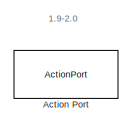
[diagram: If Action Subsystem6/If Action Subsystem2/If Action Subsystem9 - part 1/3, top center region]
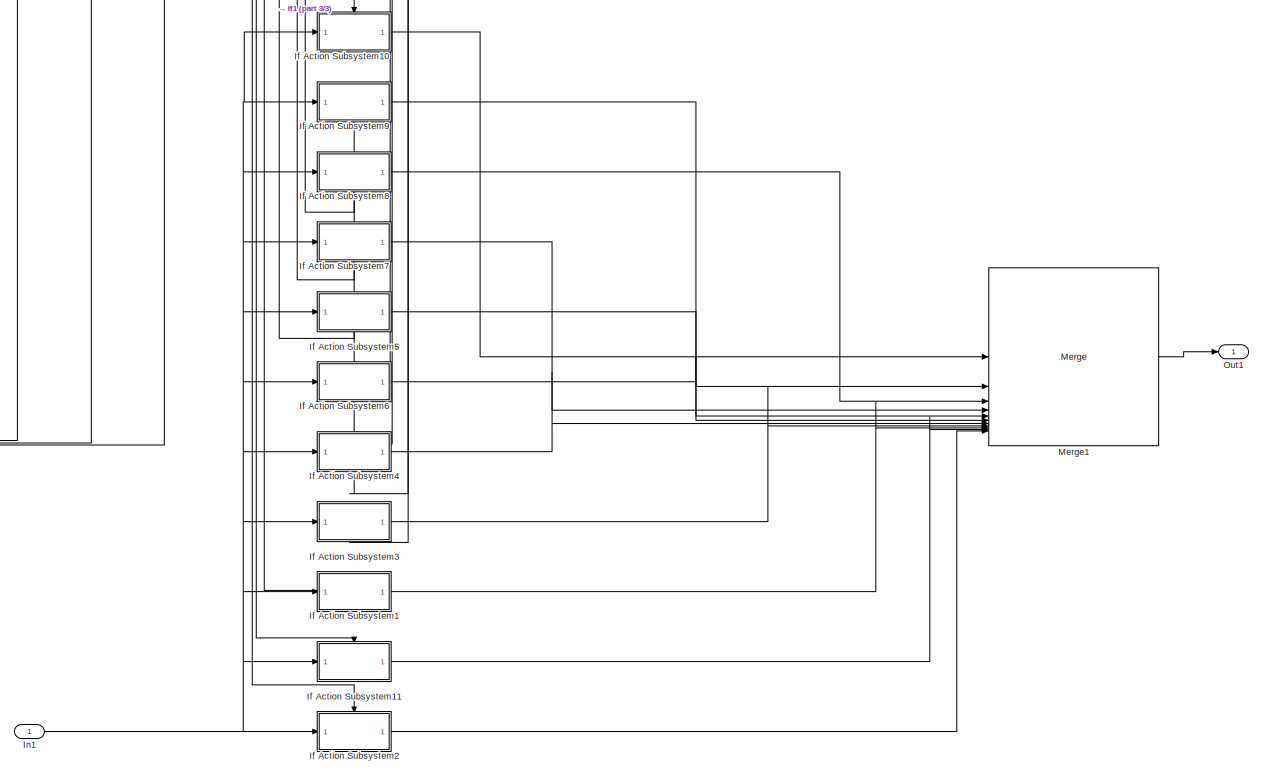
[diagram: If Action Subsystem6/If Action Subsystem2/If Action Subsystem9 - part 2/3, middle right region]
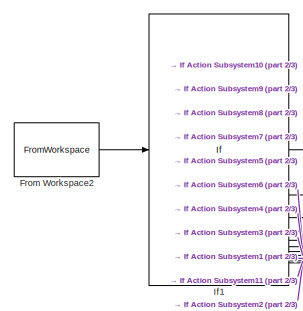
[diagram: If Action Subsystem6/If Action Subsystem2/If Action Subsystem9 - part 3/3, middle left region]
BLOCK [SubSystem] If Action Subsystem6/If Action Subsystem2/If Action Subsystem9
  TreatAsAtomicUnit = on
BLOCK [ActionPort] If Action Subsystem6/If Action Subsystem2/If Action Subsystem9/Action Port
  ActionPortLabel = if(u1 >= 1.895)
BLOCK [FromWorkspace] If Action Subsystem6/If Action Subsystem2/If Action Subsystem9/From Workspace2
  Interpolate = off
  OutputAfterFinalValue = Setting to zero
  VariableName = SimInputHR
BLOCK [SubSystem] If Action Subsystem6/If Action Subsystem2/If Action Subsystem9/If Action Subsystem1
  TreatAsAtomicUnit = on
BLOCK [ActionPort] If Action Subsystem6/If Action Subsystem2/If Action Subsystem9/If Action Subsystem1/Action Port
  ActionPortLabel = elseif( u1 >= 1.915)
BLOCK [Inport] If Action Subsystem6/If Action Subsystem2/If Action Subsystem9/If Action Subsystem1/In1
BLOCK [Lookup_n-D] If Action Subsystem6/If Action Subsystem2/If Action Subsystem9/If Action Subsystem1/LUT 1.92RR
  BreakpointsForDimension1 = [427.6953;526.5384;622.4631;718.1803;813.4872;908.485;1003.258;1097.865;1192.35;1286.741;1381.06;1475.323;1569.541;1663.723;1757.875;1852.003;1946.111]
  InputPortMap = u0
  InternalRulePriority = Speed
  NumberOfTableDimensions = 1
  RndMeth = Simplest
  Table = [400;500;600;700;800;900;1000;1100;1200;1300;1400;1500;1600;1700;1800;1900;2000]
BLOCK [Outport] If Action Subsystem6/If Action Subsystem2/If Action Subsystem9/If Action Subsystem1/Out1
BLOCK [SubSystem] If Action Subsystem6/If Action Subsystem2/If Action Subsystem9/If Action Subsystem10
  TreatAsAtomicUnit = on
BLOCK [ActionPort] If Action Subsystem6/If Action Subsystem2/If Action Subsystem9/If Action Subsystem10/Action Port
  ActionPortLabel = if(u1 >= 1.995)
BLOCK [Inport] If Action Subsystem6/If Action Subsystem2/If Action Subsystem9/If Action Subsystem10/In1
BLOCK [Lookup_n-D] If Action Subsystem6/If Action Subsystem2/If Action Subsystem9/If Action Subsystem10/LUT 2.00RR
  BreakpointsForDimension1 = [427.3379;526.1631;622.0465;717.6871;812.8866;907.752;1002.373;1096.814;1191.119;1285.323;1379.446;1473.508;1567.52;1661.492;1755.431;1849.344;1943.234]
  InputPortMap = u0
  InternalRulePriority = Speed
  NumberOfTableDimensions = 1
  RndMeth = Simplest
  Table = [400;500;600;700;800;900;1000;1100;1200;1300;1400;1500;1600;1700;1800;1900;2000]
BLOCK [Outport] If Action Subsystem6/If Action Subsystem2/If Action Subsystem9/If Action Subsystem10/Out1
BLOCK [SubSystem] If Action Subsystem6/If Action Subsystem2/If Action Subsystem9/If Action Subsystem11
  TreatAsAtomicUnit = on
BLOCK [ActionPort] If Action Subsystem6/If Action Subsystem2/If Action Subsystem9/If Action Subsystem11/Action Port
  ActionPortLabel = elseif( u1 >= 1.905)
BLOCK [Inport] If Action Subsystem6/If Action Subsystem2/If Action Subsystem9/If Action Subsystem11/In1
BLOCK [Lookup_n-D] If Action Subsystem6/If Action Subsystem2/If Action Subsystem9/If Action Subsystem11/LUT 1.91RR
  BreakpointsForDimension1 = [427.7417;526.5879;622.5189;718.2471;813.5689;908.5848;1003.378;1098.008;1192.516;1286.933;1381.278;1475.567;1569.812;1664.022;1758.202;1852.359;1946.495]
  InputPortMap = u0
  InternalRulePriority = Speed
  NumberOfTableDimensions = 1
  RndMeth = Simplest
  Table = [400;500;600;700;800;900;1000;1100;1200;1300;1400;1500;1600;1700;1800;1900;2000]
BLOCK [Outport] If Action Subsystem6/If Action Subsystem2/If Action Subsystem9/If Action Subsystem11/Out1
BLOCK [SubSystem] If Action Subsystem6/If Action Subsystem2/If Action Subsystem9/If Action Subsystem2
  TreatAsAtomicUnit = on
BLOCK [ActionPort] If Action Subsystem6/If Action Subsystem2/If Action Subsystem9/If Action Subsystem2/Action Port
  ActionPortLabel = else
BLOCK [Inport] If Action Subsystem6/If Action Subsystem2/If Action Subsystem9/If Action Subsystem2/In1
BLOCK [Lookup_n-D] If Action Subsystem6/If Action Subsystem2/If Action Subsystem9/If Action Subsystem2/LUT 1.90RR
  BreakpointsForDimension1 = [427.7886;526.638;622.5756;718.3151;813.6521;908.6864;1003.501;1098.153;1192.686;1287.128;1381.499;1475.815;1570.088;1664.325;1758.534;1852.72;1946.885]
  InputPortMap = u0
  InternalRulePriority = Speed
  NumberOfTableDimensions = 1
  RndMeth = Simplest
  Table = [400;500;600;700;800;900;1000;1100;1200;1300;1400;1500;1600;1700;1800;1900;2000]
BLOCK [Outport] If Action Subsystem6/If Action Subsystem2/If Action Subsystem9/If Action Subsystem2/Out1
BLOCK [SubSystem] If Action Subsystem6/If Action Subsystem2/If Action Subsystem9/If Action Subsystem3
  TreatAsAtomicUnit = on
BLOCK [ActionPort] If Action Subsystem6/If Action Subsystem2/If Action Subsystem9/If Action Subsystem3/Action Port
  ActionPortLabel = elseif( u1 >= 1.925)
BLOCK [Inport] If Action Subsystem6/If Action Subsystem2/If Action Subsystem9/If Action Subsystem3/In1
BLOCK [Lookup_n-D] If Action Subsystem6/If Action Subsystem2/If Action Subsystem9/If Action Subsystem3/LUT 1.93RR
  BreakpointsForDimension1 = [427.6492;526.4895;622.4082;718.1147;813.4071;908.3872;1003.14;1097.725;1192.186;1286.553;1380.846;1475.083;1569.274;1663.428;1757.553;1851.653;1945.733]
  InputPortMap = u0
  InternalRulePriority = Speed
  NumberOfTableDimensions = 1
  RndMeth = Simplest
  Table = [400;500;600;700;800;900;1000;1100;1200;1300;1400;1500;1600;1700;1800;1900;2000]
BLOCK [Outport] If Action Subsystem6/If Action Subsystem2/If Action Subsystem9/If Action Subsystem3/Out1
BLOCK [SubSystem] If Action Subsystem6/If Action Subsystem2/If Action Subsystem9/If Action Subsystem4
  TreatAsAtomicUnit = on
BLOCK [ActionPort] If Action Subsystem6/If Action Subsystem2/If Action Subsystem9/If Action Subsystem4/Action Port
  ActionPortLabel = elseif( u1 >= 1.935)
BLOCK [Inport] If Action Subsystem6/If Action Subsystem2/If Action Subsystem9/If Action Subsystem4/In1
BLOCK [Lookup_n-D] If Action Subsystem6/If Action Subsystem2/If Action Subsystem9/If Action Subsystem4/LUT 1.94RR
  BreakpointsForDimension1 = [427.6036;526.4412;622.3541;718.0503;813.3284;908.2911;1003.024;1097.588;1192.026;1286.368;1380.636;1474.847;1569.011;1663.139;1757.236;1851.308;1945.36]
  InputPortMap = u0
  InternalRulePriority = Speed
  NumberOfTableDimensions = 1
  RndMeth = Simplest
  Table = [400;500;600;700;800;900;1000;1100;1200;1300;1400;1500;1600;1700;1800;1900;2000]
BLOCK [Outport] If Action Subsystem6/If Action Subsystem2/If Action Subsystem9/If Action Subsystem4/Out1
BLOCK [SubSystem] If Action Subsystem6/If Action Subsystem2/If Action Subsystem9/If Action Subsystem5
  TreatAsAtomicUnit = on
BLOCK [ActionPort] If Action Subsystem6/If Action Subsystem2/If Action Subsystem9/If Action Subsystem5/Action Port
  ActionPortLabel = elseif( u1 >= 1.955)
BLOCK [Inport] If Action Subsystem6/If Action Subsystem2/If Action Subsystem9/If Action Subsystem5/In1
BLOCK [Lookup_n-D] If Action Subsystem6/If Action Subsystem2/If Action Subsystem9/If Action Subsystem5/LUT 1.96RR
  BreakpointsForDimension1 = [427.5135;526.3463;622.2484;717.9249;813.1755;908.1045;1002.799;1097.32;1191.713;1286.007;1380.226;1474.386;1568.498;1662.572;1756.616;1850.634;1944.63]
  InputPortMap = u0
  InternalRulePriority = Speed
  NumberOfTableDimensions = 1
  RndMeth = Simplest
  Table = [400;500;600;700;800;900;1000;1100;1200;1300;1400;1500;1600;1700;1800;1900;2000]
BLOCK [Outport] If Action Subsystem6/If Action Subsystem2/If Action Subsystem9/If Action Subsystem5/Out1
BLOCK [SubSystem] If Action Subsystem6/If Action Subsystem2/If Action Subsystem9/If Action Subsystem6
  TreatAsAtomicUnit = on
BLOCK [ActionPort] If Action Subsystem6/If Action Subsystem2/If Action Subsystem9/If Action Subsystem6/Action Port
  ActionPortLabel = elseif( u1 >= 1.945)
BLOCK [Inport] If Action Subsystem6/If Action Subsystem2/If Action Subsystem9/If Action Subsystem6/In1
BLOCK [Lookup_n-D] If Action Subsystem6/If Action Subsystem2/If Action Subsystem9/If Action Subsystem6/LUT 1.95RR
  BreakpointsForDimension1 = [427.5584;526.3934;622.3008;717.987;813.2513;908.1969;1002.91;1097.453;1191.868;1286.186;1380.429;1474.614;1568.752;1662.853;1756.923;1850.968;1944.992]
  InputPortMap = u0
  InternalRulePriority = Speed
  NumberOfTableDimensions = 1
  RndMeth = Simplest
  Table = [400;500;600;700;800;900;1000;1100;1200;1300;1400;1500;1600;1700;1800;1900;2000]
BLOCK [Outport] If Action Subsystem6/If Action Subsystem2/If Action Subsystem9/If Action Subsystem6/Out1
BLOCK [SubSystem] If Action Subsystem6/If Action Subsystem2/If Action Subsystem9/If Action Subsystem7
  TreatAsAtomicUnit = on
BLOCK [ActionPort] If Action Subsystem6/If Action Subsystem2/If Action Subsystem9/If Action Subsystem7/Action Port
  ActionPortLabel = elseif( u1 >= 1.965)
BLOCK [Inport] If Action Subsystem6/If Action Subsystem2/If Action Subsystem9/If Action Subsystem7/In1
BLOCK [Lookup_n-D] If Action Subsystem6/If Action Subsystem2/If Action Subsystem9/If Action Subsystem7/LUT 1.97RR
  BreakpointsForDimension1 = [427.469;526.2997;622.1967;717.8638;813.1012;908.0139;1002.689;1097.19;1191.56;1285.832;1380.026;1474.161;1568.248;1662.296;1756.313;1850.304;1944.273]
  InputPortMap = u0
  InternalRulePriority = Speed
  NumberOfTableDimensions = 1
  RndMeth = Simplest
  Table = [400;500;600;700;800;900;1000;1100;1200;1300;1400;1500;1600;1700;1800;1900;2000]
BLOCK [Outport] If Action Subsystem6/If Action Subsystem2/If Action Subsystem9/If Action Subsystem7/Out1
BLOCK [SubSystem] If Action Subsystem6/If Action Subsystem2/If Action Subsystem9/If Action Subsystem8
  TreatAsAtomicUnit = on
BLOCK [ActionPort] If Action Subsystem6/If Action Subsystem2/If Action Subsystem9/If Action Subsystem8/Action Port
  ActionPortLabel = elseif( u1 >= 1.975)
BLOCK [Inport] If Action Subsystem6/If Action Subsystem2/If Action Subsystem9/If Action Subsystem8/In1
BLOCK [Lookup_n-D] If Action Subsystem6/If Action Subsystem2/If Action Subsystem9/If Action Subsystem8/LUT 1.98RR
  BreakpointsForDimension1 = [427.425;526.2536;622.1459;717.8039;813.0283;907.9249;1002.582;1097.062;1191.411;1285.659;1379.83;1473.94;1568.001;1662.024;1756.015;1849.979;1943.922]
  InputPortMap = u0
  InternalRulePriority = Speed
  NumberOfTableDimensions = 1
  RndMeth = Simplest
  Table = [400;500;600;700;800;900;1000;1100;1200;1300;1400;1500;1600;1700;1800;1900;2000]
BLOCK [Outport] If Action Subsystem6/If Action Subsystem2/If Action Subsystem9/If Action Subsystem8/Out1
BLOCK [SubSystem] If Action Subsystem6/If Action Subsystem2/If Action Subsystem9/If Action Subsystem9
  TreatAsAtomicUnit = on
BLOCK [ActionPort] If Action Subsystem6/If Action Subsystem2/If Action Subsystem9/If Action Subsystem9/Action Port
  ActionPortLabel = elseif(u1 >= 1.985)
BLOCK [Inport] If Action Subsystem6/If Action Subsystem2/If Action Subsystem9/If Action Subsystem9/In1
BLOCK [Lookup_n-D] If Action Subsystem6/If Action Subsystem2/If Action Subsystem9/If Action Subsystem9/LUT 1.99RR
  BreakpointsForDimension1 = [427.3813;526.2081;622.0958;717.7449;812.9568;907.8376;1002.476;1096.937;1191.264;1285.489;1379.636;1473.722;1567.759;1661.756;1755.721;1849.659;1943.576]
  InputPortMap = u0
  InternalRulePriority = Speed
  NumberOfTableDimensions = 1
  RndMeth = Simplest
  Table = [400;500;600;700;800;900;1000;1100;1200;1300;1400;1500;1600;1700;1800;1900;2000]
BLOCK [Outport] If Action Subsystem6/If Action Subsystem2/If Action Subsystem9/If Action Subsystem9/Out1
BLOCK [If] If Action Subsystem6/If Action Subsystem2/If Action Subsystem9/If1
  ElseIfExpressions = u1 >= 1.985, u1 >= 1.975, u1 >= 1.965, u1 >= 1.955, u1 >= 1.945, u1 >= 1.935, u1 >= 1.925, u1 >= 1.915, u1 >= 1.905
  IfExpression = u1 >= 1.995
BLOCK [Inport] If Action Subsystem6/If Action Subsystem2/If Action Subsystem9/In1
BLOCK [Merge] If Action Subsystem6/If Action Subsystem2/If Action Subsystem9/Merge1
  Inputs = 11
BLOCK [Outport] If Action Subsystem6/If Action Subsystem2/If Action Subsystem9/Out1
BLOCK [If] If Action Subsystem6/If Action Subsystem2/If1
  ElseIfExpressions = u1 >= 1.795, u1 >= 1.695, u1 >= 1.595
  IfExpression = u1 >= 1.895
BLOCK [Inport] If Action Subsystem6/If Action Subsystem2/In1
BLOCK [Merge] If Action Subsystem6/If Action Subsystem2/Merge1
  Inputs = 5
BLOCK [Outport] If Action Subsystem6/If Action Subsystem2/Out1
BLOCK [SubSystem] If Action Subsystem6/If Action Subsystem3
  TreatAsAtomicUnit = on
BLOCK [ActionPort] If Action Subsystem6/If Action Subsystem3/Action Port
  ActionPortLabel = else
BLOCK [FromWorkspace] If Action Subsystem6/If Action Subsystem3/From Workspace2
  Interpolate = off
  OutputAfterFinalValue = Setting to zero
  VariableName = SimInputHR
BLOCK [SubSystem] If Action Subsystem6/If Action Subsystem3/If Action Subsystem5
  TreatAsAtomicUnit = on
BLOCK [ActionPort] If Action Subsystem6/If Action Subsystem3/If Action Subsystem5/Action Port
  ActionPortLabel = elseif( u1 >= 0595)
BLOCK [FromWorkspace] If Action Subsystem6/If Action Subsystem3/If Action Subsystem5/From Workspace2
  Interpolate = off
  OutputAfterFinalValue = Setting to zero
  VariableName = SimInputHR
BLOCK [SubSystem] If Action Subsystem6/If Action Subsystem3/If Action Subsystem5/If Action Subsystem1
  TreatAsAtomicUnit = on
BLOCK [ActionPort] If Action Subsystem6/If Action Subsystem3/If Action Subsystem5/If Action Subsystem1/Action Port
  ActionPortLabel = elseif( u1 >= 0.615)
BLOCK [Inport] If Action Subsystem6/If Action Subsystem3/If Action Subsystem5/If Action Subsystem1/In1
BLOCK [Lookup_n-D] If Action Subsystem6/If Action Subsystem3/If Action Subsystem5/If Action Subsystem1/LUT 0.62RR
  BreakpointsForDimension1 = [446.0088;557.1267;665.4287;774.0652;882.6285;991.1427;1099.656;1208.215;1316.862;1425.625;1534.479;1642.545;1754.018;1863.53;1973.555;2083.978;2194.803]
  InputPortMap = u0
  InternalRulePriority = Speed
  NumberOfTableDimensions = 1
  RndMeth = Simplest
  Table = [400;500;600;700;800;900;1000;1100;1200;1300;1400;1500;1600;1700;1800;1900;2000]
BLOCK [Outport] If Action Subsystem6/If Action Subsystem3/If Action Subsystem5/If Action Subsystem1/Out1
BLOCK [SubSystem] If Action Subsystem6/If Action Subsystem3/If Action Subsystem5/If Action Subsystem10
  TreatAsAtomicUnit = on
BLOCK [ActionPort] If Action Subsystem6/If Action Subsystem3/If Action Subsystem5/If Action Subsystem10/Action Port
  ActionPortLabel = elseif( u1 >= 0.605)
BLOCK [Inport] If Action Subsystem6/If Action Subsystem3/If Action Subsystem5/If Action Subsystem10/In1
BLOCK [Lookup_n-D] If Action Subsystem6/If Action Subsystem3/If Action Subsystem5/If Action Subsystem10/LUT 0.61RR
  BreakpointsForDimension1 = [446.4753;558.3907;667.3641;776.6183;885.7663;994.8484;1103.924;1213.051;1322.277;1431.633;1541.077;1654.628;1761.975;1872.286;1983.112;2094.382;2206.109]
  InputPortMap = u0
  InternalRulePriority = Speed
  NumberOfTableDimensions = 1
  RndMeth = Simplest
  Table = [400;500;600;700;800;900;1000;1100;1200;1300;1400;1500;1600;1700;1800;1900;2000]
BLOCK [Outport] If Action Subsystem6/If Action Subsystem3/If Action Subsystem5/If Action Subsystem10/Out1
BLOCK [SubSystem] If Action Subsystem6/If Action Subsystem3/If Action Subsystem5/If Action Subsystem2
  TreatAsAtomicUnit = on
BLOCK [ActionPort] If Action Subsystem6/If Action Subsystem3/If Action Subsystem5/If Action Subsystem2/Action Port
  ActionPortLabel = else
BLOCK [Inport] If Action Subsystem6/If Action Subsystem3/If Action Subsystem5/If Action Subsystem2/In1
BLOCK [Lookup_n-D] If Action Subsystem6/If Action Subsystem3/If Action Subsystem5/If Action Subsystem2/LUT 0.6RR
  BreakpointsForDimension1 = [446.9422;559.7362;669.4438;779.3696;889.1513;998.8481;1108.534;1218.275;1328.13;1438.132;1548.209;1661.173;1770.629;1881.8;1993.509;2105.718;2218.447]
  InputPortMap = u0
  InternalRulePriority = Speed
  NumberOfTableDimensions = 1
  RndMeth = Simplest
  Table = [400;500;600;700;800;900;1000;1100;1200;1300;1400;1500;1600;1700;1800;1900;2000]
BLOCK [Outport] If Action Subsystem6/If Action Subsystem3/If Action Subsystem5/If Action Subsystem2/Out1
BLOCK [SubSystem] If Action Subsystem6/If Action Subsystem3/If Action Subsystem5/If Action Subsystem3
  TreatAsAtomicUnit = on
BLOCK [ActionPort] If Action Subsystem6/If Action Subsystem3/If Action Subsystem5/If Action Subsystem3/Action Port
  ActionPortLabel = elseif( u1 >= 0.625)
BLOCK [Inport] If Action Subsystem6/If Action Subsystem3/If Action Subsystem5/If Action Subsystem3/In1
BLOCK [Lookup_n-D] If Action Subsystem6/If Action Subsystem3/If Action Subsystem5/If Action Subsystem3/LUT 0.63RR
  BreakpointsForDimension1 = [445.5457;555.9382;663.6243;771.6913;879.7135;987.7014;1095.693;1203.727;1311.838;1420.053;1528.359;1636.296;1746.694;1855.446;1964.742;2074.398;2184.408]
  InputPortMap = u0
  InternalRulePriority = Speed
  NumberOfTableDimensions = 1
  RndMeth = Simplest
  Table = [400;500;600;700;800;900;1000;1100;1200;1300;1400;1500;1600;1700;1800;1900;2000]
BLOCK [Outport] If Action Subsystem6/If Action Subsystem3/If Action Subsystem5/If Action Subsystem3/Out1
BLOCK [SubSystem] If Action Subsystem6/If Action Subsystem3/If Action Subsystem5/If Action Subsystem4
  TreatAsAtomicUnit = on
BLOCK [ActionPort] If Action Subsystem6/If Action Subsystem3/If Action Subsystem5/If Action Subsystem4/Action Port
  ActionPortLabel = elseif( u1 >= 0.635)
BLOCK [Inport] If Action Subsystem6/If Action Subsystem3/If Action Subsystem5/If Action Subsystem4/In1
BLOCK [Lookup_n-D] If Action Subsystem6/If Action Subsystem3/If Action Subsystem5/If Action Subsystem4/LUT 0.64RR
  BreakpointsForDimension1 = [445.0885;554.8196;661.9394;769.4796;876.9996;984.4983;1092.004;1199.55;1307.166;1414.873;1522.668;1630.294;1739.964;1847.962;1956.591;2065.548;2174.82]
  InputPortMap = u0
  InternalRulePriority = Speed
  NumberOfTableDimensions = 1
  RndMeth = Simplest
  Table = [400;500;600;700;800;900;1000;1100;1200;1300;1400;1500;1600;1700;1800;1900;2000]
BLOCK [Outport] If Action Subsystem6/If Action Subsystem3/If Action Subsystem5/If Action Subsystem4/Out1
BLOCK [SubSystem] If Action Subsystem6/If Action Subsystem3/If Action Subsystem5/If Action Subsystem5
  TreatAsAtomicUnit = on
BLOCK [ActionPort] If Action Subsystem6/If Action Subsystem3/If Action Subsystem5/If Action Subsystem5/Action Port
  ActionPortLabel = elseif( u1 >= 0.655)
BLOCK [Inport] If Action Subsystem6/If Action Subsystem3/If Action Subsystem5/If Action Subsystem5/In1
BLOCK [Lookup_n-D] If Action Subsystem6/If Action Subsystem3/If Action Subsystem5/If Action Subsystem5/LUT 0.66RR
  BreakpointsForDimension1 = [444.1991;552.7715;658.8868;765.484;872.1006;978.7169;1085.348;1192.014;1298.736;1405.532;1512.404;1619.262;1728.471;1834.549;1941.993;2049.729;2157.715]
  InputPortMap = u0
  InternalRulePriority = Speed
  NumberOfTableDimensions = 1
  RndMeth = Simplest
  Table = [400;500;600;700;800;900;1000;1100;1200;1300;1400;1500;1600;1700;1800;1900;2000]
BLOCK [Outport] If Action Subsystem6/If Action Subsystem3/If Action Subsystem5/If Action Subsystem5/Out1
BLOCK [SubSystem] If Action Subsystem6/If Action Subsystem3/If Action Subsystem5/If Action Subsystem6
  TreatAsAtomicUnit = on
BLOCK [ActionPort] If Action Subsystem6/If Action Subsystem3/If Action Subsystem5/If Action Subsystem6/Action Port
  ActionPortLabel = elseif( u1 >= 0.645)
BLOCK [Inport] If Action Subsystem6/If Action Subsystem3/If Action Subsystem5/If Action Subsystem6/In1
BLOCK [Lookup_n-D] If Action Subsystem6/If Action Subsystem3/If Action Subsystem5/If Action Subsystem6/LUT 0.65RR
  BreakpointsForDimension1 = [444.6392;553.7656;660.3634;767.415;874.4676;981.5103;1088.564;1195.655;1302.809;1410.045;1517.362;1624.613;1733.838;1841.014;1949.028;2057.349;2165.948]
  InputPortMap = u0
  InternalRulePriority = Speed
  NumberOfTableDimensions = 1
  RndMeth = Simplest
  Table = [400;500;600;700;800;900;1000;1100;1200;1300;1400;1500;1600;1700;1800;1900;2000]
BLOCK [Outport] If Action Subsystem6/If Action Subsystem3/If Action Subsystem5/If Action Subsystem6/Out1
BLOCK [SubSystem] If Action Subsystem6/If Action Subsystem3/If Action Subsystem5/If Action Subsystem7
  TreatAsAtomicUnit = on
BLOCK [ActionPort] If Action Subsystem6/If Action Subsystem3/If Action Subsystem5/If Action Subsystem7/Action Port
  ActionPortLabel = elseif( u1 >= 0.665)
BLOCK [Inport] If Action Subsystem6/If Action Subsystem3/If Action Subsystem5/If Action Subsystem7/In1
BLOCK [Lookup_n-D] If Action Subsystem6/If Action Subsystem3/If Action Subsystem5/If Action Subsystem7/LUT 0.67RR
  BreakpointsForDimension1 = [443.7692;551.833;657.5011;763.6748;869.8833;976.1;1082.334;1188.602;1294.92;1401.305;1507.76;1614.228;1724.482;1828.519;1935.429;2042.628;2150.051]
  InputPortMap = u0
  InternalRulePriority = Speed
  NumberOfTableDimensions = 1
  RndMeth = Simplest
  Table = [400;500;600;700;800;900;1000;1100;1200;1300;1400;1500;1600;1700;1800;1900;2000]
BLOCK [Outport] If Action Subsystem6/If Action Subsystem3/If Action Subsystem5/If Action Subsystem7/Out1
BLOCK [SubSystem] If Action Subsystem6/If Action Subsystem3/If Action Subsystem5/If Action Subsystem8
  TreatAsAtomicUnit = on
BLOCK [ActionPort] If Action Subsystem6/If Action Subsystem3/If Action Subsystem5/If Action Subsystem8/Action Port
  ActionPortLabel = elseif(u1 >= 0.675)
BLOCK [Inport] If Action Subsystem6/If Action Subsystem3/If Action Subsystem5/If Action Subsystem8/In1
BLOCK [Lookup_n-D] If Action Subsystem6/If Action Subsystem3/If Action Subsystem5/If Action Subsystem8/LUT 0.68RR
  BreakpointsForDimension1 = [443.3505;550.9459;656.1987;761.9764;867.8022;973.6433;1079.504;1185.397;1291.337;1397.336;1503.399;1609.49;1714.737;1822.886;1929.289;2035.992;2142.897]
  InputPortMap = u0
  InternalRulePriority = Speed
  NumberOfTableDimensions = 1
  RndMeth = Simplest
  Table = [400;500;600;700;800;900;1000;1100;1200;1300;1400;1500;1600;1700;1800;1900;2000]
BLOCK [Outport] If Action Subsystem6/If Action Subsystem3/If Action Subsystem5/If Action Subsystem8/Out1
BLOCK [SubSystem] If Action Subsystem6/If Action Subsystem3/If Action Subsystem5/If Action Subsystem9
  TreatAsAtomicUnit = on
BLOCK [ActionPort] If Action Subsystem6/If Action Subsystem3/If Action Subsystem5/If Action Subsystem9/Action Port
  ActionPortLabel = if(u1 >= 0.685)
BLOCK [Inport] If Action Subsystem6/If Action Subsystem3/If Action Subsystem5/If Action Subsystem9/In1
BLOCK [Lookup_n-D] If Action Subsystem6/If Action Subsystem3/If Action Subsystem5/If Action Subsystem9/LUT 0.69RR
  BreakpointsForDimension1 = [442.9433;550.1066;654.9725;760.3793;865.8452;971.3325;1076.841;1182.382;1287.964;1393.6;1499.295;1605.025;1710.391;1817.622;1923.532;2029.773;2136.201]
  InputPortMap = u0
  InternalRulePriority = Speed
  NumberOfTableDimensions = 1
  RndMeth = Simplest
  Table = [400;500;600;700;800;900;1000;1100;1200;1300;1400;1500;1600;1700;1800;1900;2000]
BLOCK [Outport] If Action Subsystem6/If Action Subsystem3/If Action Subsystem5/If Action Subsystem9/Out1
BLOCK [If] If Action Subsystem6/If Action Subsystem3/If Action Subsystem5/If1
  ElseIfExpressions = u1 >= 0.675, u1 >= 0.665, u1 >= 0.655, u1 >= 0.645, u1 >= 0.635, u1 >= 0.625, u1 >= 0.615, u1 >= 0.605
  IfExpression = u1 >= 0.685
BLOCK [Inport] If Action Subsystem6/If Action Subsystem3/If Action Subsystem5/In1
BLOCK [Merge] If Action Subsystem6/If Action Subsystem3/If Action Subsystem5/Merge1
  Inputs = 10
BLOCK [Outport] If Action Subsystem6/If Action Subsystem3/If Action Subsystem5/Out1
BLOCK [SubSystem] If Action Subsystem6/If Action Subsystem3/If Action Subsystem6
  TreatAsAtomicUnit = on
BLOCK [ActionPort] If Action Subsystem6/If Action Subsystem3/If Action Subsystem6/Action Port
  ActionPortLabel = else
BLOCK [FromWorkspace] If Action Subsystem6/If Action Subsystem3/If Action Subsystem6/From Workspace2
  Interpolate = off
  OutputAfterFinalValue = Setting to zero
  VariableName = SimInputHR
BLOCK [SubSystem] If Action Subsystem6/If Action Subsystem3/If Action Subsystem6/If Action Subsystem1
  TreatAsAtomicUnit = on
BLOCK [ActionPort] If Action Subsystem6/If Action Subsystem3/If Action Subsystem6/If Action Subsystem1/Action Port
  ActionPortLabel = elseif( u1 >= 0.515)
BLOCK [Inport] If Action Subsystem6/If Action Subsystem3/If Action Subsystem6/If Action Subsystem1/In1
BLOCK [Lookup_n-D] If Action Subsystem6/If Action Subsystem3/If Action Subsystem6/If Action Subsystem1/LUT 0.52RR
  BreakpointsForDimension1 = [449.9366;574.3493;693.4557;811.7788;929.3907;1046.66;1163.89;1281.332;1399.203;1517.741;1636.994;1757.112;1878.385;2000.885;2124.742;2250.088;2377.058]
  InputPortMap = u0
  InternalRulePriority = Speed
  NumberOfTableDimensions = 1
  RndMeth = Simplest
  Table = [400;500;600;700;800;900;1000;1100;1200;1300;1400;1500;1600;1700;1800;1900;2000]
BLOCK [Outport] If Action Subsystem6/If Action Subsystem3/If Action Subsystem6/If Action Subsystem1/Out1
BLOCK [SubSystem] If Action Subsystem6/If Action Subsystem3/If Action Subsystem6/If Action Subsystem10
  TreatAsAtomicUnit = on
BLOCK [ActionPort] If Action Subsystem6/If Action Subsystem3/If Action Subsystem6/If Action Subsystem10/Action Port
  ActionPortLabel = elseif( u1 >= 0.505)
BLOCK [Inport] If Action Subsystem6/If Action Subsystem3/If Action Subsystem6/If Action Subsystem10/In1
BLOCK [Lookup_n-D] If Action Subsystem6/If Action Subsystem3/If Action Subsystem6/If Action Subsystem10/LUT 0.51RR
  BreakpointsForDimension1 = [450.047;576.7952;697.7542;817.7093;936.8348;1055.571;1174.275;1293.244;1412.754;1533.272;1653.559;1775.841;1899.306;2024.17;2150.605;2278.77;2408.832]
  InputPortMap = u0
  InternalRulePriority = Speed
  NumberOfTableDimensions = 1
  RndMeth = Simplest
  Table = [400;500;600;700;800;900;1000;1100;1200;1300;1400;1500;1600;1700;1800;1900;2000]
BLOCK [Outport] If Action Subsystem6/If Action Subsystem3/If Action Subsystem6/If Action Subsystem10/Out1
BLOCK [SubSystem] If Action Subsystem6/If Action Subsystem3/If Action Subsystem6/If Action Subsystem2
  TreatAsAtomicUnit = on
BLOCK [ActionPort] If Action Subsystem6/If Action Subsystem3/If Action Subsystem6/If Action Subsystem2/Action Port
  ActionPortLabel = else
BLOCK [Inport] If Action Subsystem6/If Action Subsystem3/If Action Subsystem6/If Action Subsystem2/In1
BLOCK [Lookup_n-D] If Action Subsystem6/If Action Subsystem3/If Action Subsystem6/If Action Subsystem2/LUT 0.50RR
  BreakpointsForDimension1 = [450.0331;579.414;702.4543;824.239;945.0609;1065.444;1185.809;1306.511;1427.913;1548.382;1672.144;1796.814;1922.778;2050.353;2179.751;2311.167;2444.809]
  InputPortMap = u0
  InternalRulePriority = Speed
  NumberOfTableDimensions = 1
  RndMeth = Simplest
  Table = [400;500;600;700;800;900;1000;1100;1200;1300;1400;1500;1600;1700;1800;1900;2000]
BLOCK [Outport] If Action Subsystem6/If Action Subsystem3/If Action Subsystem6/If Action Subsystem2/Out1
BLOCK [SubSystem] If Action Subsystem6/If Action Subsystem3/If Action Subsystem6/If Action Subsystem3
  TreatAsAtomicUnit = on
BLOCK [ActionPort] If Action Subsystem6/If Action Subsystem3/If Action Subsystem6/If Action Subsystem3/Action Port
  ActionPortLabel = elseif( u1 >= 0.525)
BLOCK [Inport] If Action Subsystem6/If Action Subsystem3/If Action Subsystem6/If Action Subsystem3/In1
BLOCK [Lookup_n-D] If Action Subsystem6/If Action Subsystem3/If Action Subsystem6/If Action Subsystem3/LUT 0.53RR
  BreakpointsForDimension1 = [449.7287;572.0652;689.5181;806.3806;922.6372;1038.595;1154.512;1270.599;1387.034;1503.951;1622.252;1740.331;1859.671;1980.099;2101.705;2224.596;2348.882]
  InputPortMap = u0
  InternalRulePriority = Speed
  NumberOfTableDimensions = 1
  RndMeth = Simplest
  Table = [400;500;600;700;800;900;1000;1100;1200;1300;1400;1500;1600;1700;1800;1900;2000]
BLOCK [Outport] If Action Subsystem6/If Action Subsystem3/If Action Subsystem6/If Action Subsystem3/Out1
BLOCK [SubSystem] If Action Subsystem6/If Action Subsystem3/If Action Subsystem6/If Action Subsystem4
  TreatAsAtomicUnit = on
BLOCK [ActionPort] If Action Subsystem6/If Action Subsystem3/If Action Subsystem6/If Action Subsystem4/Action Port
  ActionPortLabel = elseif( u1 >= 0.535)
BLOCK [Inport] If Action Subsystem6/If Action Subsystem3/If Action Subsystem6/If Action Subsystem4/In1
BLOCK [Lookup_n-D] If Action Subsystem6/If Action Subsystem3/If Action Subsystem6/If Action Subsystem4/LUT 0.54RR
  BreakpointsForDimension1 = [449.445;569.9316;685.9048;801.4562;916.495;1031.276;1146.015;1260.895;1376.062;1491.602;1609.232;1725.247;1842.871;1961.476;2081.108;2201.852;2323.799]
  InputPortMap = u0
  InternalRulePriority = Speed
  NumberOfTableDimensions = 1
  RndMeth = Simplest
  Table = [400;500;600;700;800;900;1000;1100;1200;1300;1400;1500;1600;1700;1800;1900;2000]
BLOCK [Outport] If Action Subsystem6/If Action Subsystem3/If Action Subsystem6/If Action Subsystem4/Out1
BLOCK [SubSystem] If Action Subsystem6/If Action Subsystem3/If Action Subsystem6/If Action Subsystem5
  TreatAsAtomicUnit = on
BLOCK [ActionPort] If Action Subsystem6/If Action Subsystem3/If Action Subsystem6/If Action Subsystem5/Action Port
  ActionPortLabel = elseif( u1 >= 0.555)
BLOCK [Inport] If Action Subsystem6/If Action Subsystem3/If Action Subsystem6/If Action Subsystem5/In1
BLOCK [Lookup_n-D] If Action Subsystem6/If Action Subsystem3/If Action Subsystem6/If Action Subsystem5/LUT 0.56RR
  BreakpointsForDimension1 = [448.7176;566.0743;679.525;792.8289;905.7757;1018.534;1131.26;1244.083;1357.109;1470.391;1588.548;1699.359;1814.057;1929.62;2045.977;2163.173;2281.272]
  InputPortMap = u0
  InternalRulePriority = Speed
  NumberOfTableDimensions = 1
  RndMeth = Simplest
  Table = [400;500;600;700;800;900;1000;1100;1200;1300;1400;1500;1600;1700;1800;1900;2000]
BLOCK [Outport] If Action Subsystem6/If Action Subsystem3/If Action Subsystem6/If Action Subsystem5/Out1
BLOCK [SubSystem] If Action Subsystem6/If Action Subsystem3/If Action Subsystem6/If Action Subsystem6
  TreatAsAtomicUnit = on
BLOCK [ActionPort] If Action Subsystem6/If Action Subsystem3/If Action Subsystem6/If Action Subsystem6/Action Port
  ActionPortLabel = elseif( u1 >= 0.545)
BLOCK [Inport] If Action Subsystem6/If Action Subsystem3/If Action Subsystem6/If Action Subsystem6/In1
BLOCK [Lookup_n-D] If Action Subsystem6/If Action Subsystem3/If Action Subsystem6/If Action Subsystem6/LUT 0.55RR
  BreakpointsForDimension1 = [449.1031;567.9381;682.5835;796.954;910.8946;1024.614;1138.295;1252.093;1366.13;1480.472;1597.966;1711.648;1827.737;1944.731;2062.624;2181.483;2301.382]
  InputPortMap = u0
  InternalRulePriority = Speed
  NumberOfTableDimensions = 1
  RndMeth = Simplest
  Table = [400;500;600;700;800;900;1000;1100;1200;1300;1400;1500;1600;1700;1800;1900;2000]
BLOCK [Outport] If Action Subsystem6/If Action Subsystem3/If Action Subsystem6/If Action Subsystem6/Out1
BLOCK [SubSystem] If Action Subsystem6/If Action Subsystem3/If Action Subsystem6/If Action Subsystem7
  TreatAsAtomicUnit = on
BLOCK [ActionPort] If Action Subsystem6/If Action Subsystem3/If Action Subsystem6/If Action Subsystem7/Action Port
  ActionPortLabel = elseif( u1 >= 0.565)
BLOCK [Inport] If Action Subsystem6/If Action Subsystem3/If Action Subsystem6/If Action Subsystem7/In1
BLOCK [Lookup_n-D] If Action Subsystem6/If Action Subsystem3/If Action Subsystem6/If Action Subsystem7/LUT 0.57RR
  BreakpointsForDimension1 = [448.3001;564.3309;676.7036;789.041;901.0853;1012.972;1124.83;1236.772;1348.887;1461.222;1573.48;1688.236;1801.65;1915.936;2030.929;2146.655;2263.164]
  InputPortMap = u0
  InternalRulePriority = Speed
  NumberOfTableDimensions = 1
  RndMeth = Simplest
  Table = [400;500;600;700;800;900;1000;1100;1200;1300;1400;1500;1600;1700;1800;1900;2000]
BLOCK [Outport] If Action Subsystem6/If Action Subsystem3/If Action Subsystem6/If Action Subsystem7/Out1
BLOCK [SubSystem] If Action Subsystem6/If Action Subsystem3/If Action Subsystem6/If Action Subsystem8
  TreatAsAtomicUnit = on
BLOCK [ActionPort] If Action Subsystem6/If Action Subsystem3/If Action Subsystem6/If Action Subsystem8/Action Port
  ActionPortLabel = elseif(u1 >= 0.575)
BLOCK [Inport] If Action Subsystem6/If Action Subsystem3/If Action Subsystem6/If Action Subsystem8/In1
BLOCK [Lookup_n-D] If Action Subsystem6/If Action Subsystem3/If Action Subsystem6/If Action Subsystem8/LUT 0.58RR
  BreakpointsForDimension1 = [447.8602;562.6989;674.0962;785.5551;896.7773;1007.869;1118.938;1230.079;1341.369;1452.85;1564.332;1678.173;1790.362;1903.503;2017.279;2131.698;2246.799]
  InputPortMap = u0
  InternalRulePriority = Speed
  NumberOfTableDimensions = 1
  RndMeth = Simplest
  Table = [400;500;600;700;800;900;1000;1100;1200;1300;1400;1500;1600;1700;1800;1900;2000]
BLOCK [Outport] If Action Subsystem6/If Action Subsystem3/If Action Subsystem6/If Action Subsystem8/Out1
BLOCK [SubSystem] If Action Subsystem6/If Action Subsystem3/If Action Subsystem6/If Action Subsystem9
  TreatAsAtomicUnit = on
BLOCK [ActionPort] If Action Subsystem6/If Action Subsystem3/If Action Subsystem6/If Action Subsystem9/Action Port
  ActionPortLabel = if(u1 >= 0.585)
BLOCK [Inport] If Action Subsystem6/If Action Subsystem3/If Action Subsystem6/If Action Subsystem9/In1
BLOCK [Lookup_n-D] If Action Subsystem6/If Action Subsystem3/If Action Subsystem6/If Action Subsystem9/LUT 0.59RR
  BreakpointsForDimension1 = [447.4055;561.1699;671.6824;782.3404;892.8112;1003.175;1113.523;1223.933;1334.473;1445.181;1555.937;1669.126;1780.059;1892.168;2004.855;2118.108;2231.956]
  InputPortMap = u0
  InternalRulePriority = Speed
  NumberOfTableDimensions = 1
  RndMeth = Simplest
  Table = [400;500;600;700;800;900;1000;1100;1200;1300;1400;1500;1600;1700;1800;1900;2000]
BLOCK [Outport] If Action Subsystem6/If Action Subsystem3/If Action Subsystem6/If Action Subsystem9/Out1
BLOCK [If] If Action Subsystem6/If Action Subsystem3/If Action Subsystem6/If1
  ElseIfExpressions = u1 >= 0.575, u1 >= 0.565, u1 >= 0.555, u1 >= 0.545, u1 >= 0.535, u1 >= 0.525, u1 >= 0.515, u1 >= 0.505
  IfExpression = u1 >= 0.585
BLOCK [Inport] If Action Subsystem6/If Action Subsystem3/If Action Subsystem6/In1
BLOCK [Merge] If Action Subsystem6/If Action Subsystem3/If Action Subsystem6/Merge1
  Inputs = 10
BLOCK [Outport] If Action Subsystem6/If Action Subsystem3/If Action Subsystem6/Out1
BLOCK [SubSystem] If Action Subsystem6/If Action Subsystem3/If Action Subsystem7
  TreatAsAtomicUnit = on
BLOCK [ActionPort] If Action Subsystem6/If Action Subsystem3/If Action Subsystem7/Action Port
  ActionPortLabel = elseif( u1 >= 0.695)
BLOCK [FromWorkspace] If Action Subsystem6/If Action Subsystem3/If Action Subsystem7/From Workspace2
  Interpolate = off
  OutputAfterFinalValue = Setting to zero
  VariableName = SimInputHR
BLOCK [SubSystem] If Action Subsystem6/If Action Subsystem3/If Action Subsystem7/If Action Subsystem1
  TreatAsAtomicUnit = on
BLOCK [ActionPort] If Action Subsystem6/If Action Subsystem3/If Action Subsystem7/If Action Subsystem1/Action Port
  ActionPortLabel = elseif( u1 >= 0.715)
BLOCK [Inport] If Action Subsystem6/If Action Subsystem3/If Action Subsystem7/If Action Subsystem1/In1
BLOCK [Lookup_n-D] If Action Subsystem6/If Action Subsystem3/If Action Subsystem7/If Action Subsystem1/LUT 0.72RR
  BreakpointsForDimension1 = [441.7934;547.8423;651.6923;756.1135;860.6165;965.1533;1069.716;1174.307;1278.931;1383.594;1488.302;1593.047;1697.757;1804.231;1908.209;2013.235;2118.425]
  InputPortMap = u0
  InternalRulePriority = Speed
  NumberOfTableDimensions = 1
  RndMeth = Simplest
  Table = [400;500;600;700;800;900;1000;1100;1200;1300;1400;1500;1600;1700;1800;1900;2000]
BLOCK [Outport] If Action Subsystem6/If Action Subsystem3/If Action Subsystem7/If Action Subsystem1/Out1
BLOCK [SubSystem] If Action Subsystem6/If Action Subsystem3/If Action Subsystem7/If Action Subsystem10
  TreatAsAtomicUnit = on
BLOCK [ActionPort] If Action Subsystem6/If Action Subsystem3/If Action Subsystem7/If Action Subsystem10/Action Port
  ActionPortLabel = elseif( u1 >= 0.705)
BLOCK [Inport] If Action Subsystem6/If Action Subsystem3/If Action Subsystem7/If Action Subsystem10/In1
BLOCK [Lookup_n-D] If Action Subsystem6/If Action Subsystem3/If Action Subsystem7/If Action Subsystem10/LUT 0.71RR
  BreakpointsForDimension1 = [442.1646;548.5578;652.7247;757.4553;862.2616;967.0984;1071.96;1176.85;1281.777;1386.747;1491.766;1596.823;1701.8;1808.188;1913.022;2018.429;2124.003]
  InputPortMap = u0
  InternalRulePriority = Speed
  NumberOfTableDimensions = 1
  RndMeth = Simplest
  Table = [400;500;600;700;800;900;1000;1100;1200;1300;1400;1500;1600;1700;1800;1900;2000]
BLOCK [Outport] If Action Subsystem6/If Action Subsystem3/If Action Subsystem7/If Action Subsystem10/Out1
BLOCK [SubSystem] If Action Subsystem6/If Action Subsystem3/If Action Subsystem7/If Action Subsystem2
  TreatAsAtomicUnit = on
BLOCK [ActionPort] If Action Subsystem6/If Action Subsystem3/If Action Subsystem7/If Action Subsystem2/Action Port
  ActionPortLabel = else
BLOCK [Inport] If Action Subsystem6/If Action Subsystem3/If Action Subsystem7/If Action Subsystem2/In1
BLOCK [Lookup_n-D] If Action Subsystem6/If Action Subsystem3/If Action Subsystem7/If Action Subsystem2/LUT 0.70RR
  BreakpointsForDimension1 = [442.5479;549.3116;653.8164;758.8749;864.0016;969.1547;1074.331;1179.538;1284.783;1390.077;1495.424;1600.809;1706.024;1812.713;1918.12;2023.931;2129.916]
  InputPortMap = u0
  InternalRulePriority = Speed
  NumberOfTableDimensions = 1
  RndMeth = Simplest
  Table = [400;500;600;700;800;900;1000;1100;1200;1300;1400;1500;1600;1700;1800;1900;2000]
BLOCK [Outport] If Action Subsystem6/If Action Subsystem3/If Action Subsystem7/If Action Subsystem2/Out1
BLOCK [SubSystem] If Action Subsystem6/If Action Subsystem3/If Action Subsystem7/If Action Subsystem3
  TreatAsAtomicUnit = on
BLOCK [ActionPort] If Action Subsystem6/If Action Subsystem3/If Action Subsystem7/If Action Subsystem3/Action Port
  ActionPortLabel = elseif( u1 >= 0.725)
BLOCK [Inport] If Action Subsystem6/If Action Subsystem3/If Action Subsystem7/If Action Subsystem3/In1
BLOCK [Lookup_n-D] If Action Subsystem6/If Action Subsystem3/If Action Subsystem7/If Action Subsystem3/LUT 0.73RR
  BreakpointsForDimension1 = [441.4341;547.1625;650.7145;754.8434;859.0586;963.3103;1067.589;1171.894;1276.23;1380.603;1485.015;1589.463;1693.9;1801.782;1903.659;2008.322;2113.152]
  InputPortMap = u0
  InternalRulePriority = Speed
  NumberOfTableDimensions = 1
  RndMeth = Simplest
  Table = [400;500;600;700;800;900;1000;1100;1200;1300;1400;1500;1600;1700;1800;1900;2000]
BLOCK [Outport] If Action Subsystem6/If Action Subsystem3/If Action Subsystem7/If Action Subsystem3/Out1
BLOCK [SubSystem] If Action Subsystem6/If Action Subsystem3/If Action Subsystem7/If Action Subsystem4
  TreatAsAtomicUnit = on
BLOCK [ActionPort] If Action Subsystem6/If Action Subsystem3/If Action Subsystem7/If Action Subsystem4/Action Port
  ActionPortLabel = elseif( u1 >= 0.735)
BLOCK [Inport] If Action Subsystem6/If Action Subsystem3/If Action Subsystem7/If Action Subsystem4/In1
BLOCK [Lookup_n-D] If Action Subsystem6/If Action Subsystem3/If Action Subsystem7/If Action Subsystem4/LUT 0.74RR
  BreakpointsForDimension1 = [441.0865;546.5158;649.7873;753.6391;857.5808;961.5611;1065.568;1169.602;1273.664;1377.759;1481.89;1586.055;1690.223;1793.713;1899.353;2003.664;2108.155]
  InputPortMap = u0
  InternalRulePriority = Speed
  NumberOfTableDimensions = 1
  RndMeth = Simplest
  Table = [400;500;600;700;800;900;1000;1100;1200;1300;1400;1500;1600;1700;1800;1900;2000]
BLOCK [Outport] If Action Subsystem6/If Action Subsystem3/If Action Subsystem7/If Action Subsystem4/Out1
BLOCK [SubSystem] If Action Subsystem6/If Action Subsystem3/If Action Subsystem7/If Action Subsystem5
  TreatAsAtomicUnit = on
BLOCK [ActionPort] If Action Subsystem6/If Action Subsystem3/If Action Subsystem7/If Action Subsystem5/Action Port
  ActionPortLabel = elseif( u1 >= 0.755)
BLOCK [Inport] If Action Subsystem6/If Action Subsystem3/If Action Subsystem7/If Action Subsystem5/In1
BLOCK [Lookup_n-D] If Action Subsystem6/If Action Subsystem3/If Action Subsystem7/If Action Subsystem5/LUT 0.76RR
  BreakpointsForDimension1 = [440.4259;545.3131;648.0692;751.408;854.841;958.3148;1061.816;1165.341;1268.892;1372.469;1476.077;1579.713;1683.365;1786.88;1891.432;1995.029;2098.898]
  InputPortMap = u0
  InternalRulePriority = Speed
  NumberOfTableDimensions = 1
  RndMeth = Simplest
  Table = [400;500;600;700;800;900;1000;1100;1200;1300;1400;1500;1600;1700;1800;1900;2000]
BLOCK [Outport] If Action Subsystem6/If Action Subsystem3/If Action Subsystem7/If Action Subsystem5/Out1
BLOCK [SubSystem] If Action Subsystem6/If Action Subsystem3/If Action Subsystem7/If Action Subsystem6
  TreatAsAtomicUnit = on
BLOCK [ActionPort] If Action Subsystem6/If Action Subsystem3/If Action Subsystem7/If Action Subsystem6/Action Port
  ActionPortLabel = elseif( u1 >= 0.745)
BLOCK [Inport] If Action Subsystem6/If Action Subsystem3/If Action Subsystem7/If Action Subsystem6/In1
BLOCK [Lookup_n-D] If Action Subsystem6/If Action Subsystem3/If Action Subsystem7/If Action Subsystem6/LUT 0.75RR
  BreakpointsForDimension1 = [440.7506;545.9;648.9066;752.4955;856.1769;959.8981;1063.647;1167.42;1271.221;1375.052;1478.915;1582.809;1686.715;1790.339;1895.277;1999.239;2103.411]
  InputPortMap = u0
  InternalRulePriority = Speed
  NumberOfTableDimensions = 1
  RndMeth = Simplest
  Table = [400;500;600;700;800;900;1000;1100;1200;1300;1400;1500;1600;1700;1800;1900;2000]
BLOCK [Outport] If Action Subsystem6/If Action Subsystem3/If Action Subsystem7/If Action Subsystem6/Out1
BLOCK [SubSystem] If Action Subsystem6/If Action Subsystem3/If Action Subsystem7/If Action Subsystem7
  TreatAsAtomicUnit = on
BLOCK [ActionPort] If Action Subsystem6/If Action Subsystem3/If Action Subsystem7/If Action Subsystem7/Action Port
  ActionPortLabel = elseif( u1 >= 0.765)
BLOCK [Inport] If Action Subsystem6/If Action Subsystem3/If Action Subsystem7/If Action Subsystem7/In1
BLOCK [Lookup_n-D] If Action Subsystem6/If Action Subsystem3/If Action Subsystem7/If Action Subsystem7/LUT 0.77RR
  BreakpointsForDimension1 = [440.1121;544.753;647.2718;750.3725;853.5681;956.805;1060.069;1163.356;1266.667;1370.003;1473.366;1576.755;1680.161;1783.497;1887.852;1991.015;2094.596]
  InputPortMap = u0
  InternalRulePriority = Speed
  NumberOfTableDimensions = 1
  RndMeth = Simplest
  Table = [400;500;600;700;800;900;1000;1100;1200;1300;1400;1500;1600;1700;1800;1900;2000]
BLOCK [Outport] If Action Subsystem6/If Action Subsystem3/If Action Subsystem7/If Action Subsystem7/Out1
BLOCK [SubSystem] If Action Subsystem6/If Action Subsystem3/If Action Subsystem7/If Action Subsystem8
  TreatAsAtomicUnit = on
BLOCK [ActionPort] If Action Subsystem6/If Action Subsystem3/If Action Subsystem7/If Action Subsystem8/Action Port
  ActionPortLabel = elseif(u1 >= 0.775)
BLOCK [Inport] If Action Subsystem6/If Action Subsystem3/If Action Subsystem7/If Action Subsystem8/In1
BLOCK [Lookup_n-D] If Action Subsystem6/If Action Subsystem3/If Action Subsystem7/If Action Subsystem8/LUT 0.78RR
  BreakpointsForDimension1 = [439.809;544.2181;646.5115;749.385;852.3535;955.3633;1058.4;1161.459;1264.54;1367.643;1470.771;1573.924;1677.094;1780.228;1884.75;1987.184;2090.488]
  InputPortMap = u0
  InternalRulePriority = Speed
  NumberOfTableDimensions = 1
  RndMeth = Simplest
  Table = [400;500;600;700;800;900;1000;1100;1200;1300;1400;1500;1600;1700;1800;1900;2000]
BLOCK [Outport] If Action Subsystem6/If Action Subsystem3/If Action Subsystem7/If Action Subsystem8/Out1
BLOCK [SubSystem] If Action Subsystem6/If Action Subsystem3/If Action Subsystem7/If Action Subsystem9
  TreatAsAtomicUnit = on
BLOCK [ActionPort] If Action Subsystem6/If Action Subsystem3/If Action Subsystem7/If Action Subsystem9/Action Port
  ActionPortLabel = if(u1 >= 0.785)
BLOCK [Inport] If Action Subsystem6/If Action Subsystem3/If Action Subsystem7/If Action Subsystem9/In1
BLOCK [Lookup_n-D] If Action Subsystem6/If Action Subsystem3/If Action Subsystem7/If Action Subsystem9/LUT 0.79RR
  BreakpointsForDimension1 = [439.516;543.7067;645.7858;748.4421;851.1929;953.9848;1056.803;1159.642;1262.502;1365.383;1468.286;1571.211;1674.154;1777.079;1878.322;1983.523;2086.56]
  InputPortMap = u0
  InternalRulePriority = Speed
  NumberOfTableDimensions = 1
  RndMeth = Simplest
  Table = [400;500;600;700;800;900;1000;1100;1200;1300;1400;1500;1600;1700;1800;1900;2000]
BLOCK [Outport] If Action Subsystem6/If Action Subsystem3/If Action Subsystem7/If Action Subsystem9/Out1
BLOCK [If] If Action Subsystem6/If Action Subsystem3/If Action Subsystem7/If1
  ElseIfExpressions = u1 >= 0.775, u1 >= 0.765, u1 >= 0.755, u1 >= 0.745, u1 >= 0.735, u1 >= 0.725, u1 >= 0.715, u1 >= 0.705
  IfExpression = u1 >= 0.785
BLOCK [Inport] If Action Subsystem6/If Action Subsystem3/If Action Subsystem7/In1
BLOCK [Merge] If Action Subsystem6/If Action Subsystem3/If Action Subsystem7/Merge1
  Inputs = 10
BLOCK [Outport] If Action Subsystem6/If Action Subsystem3/If Action Subsystem7/Out1
BLOCK [SubSystem] If Action Subsystem6/If Action Subsystem3/If Action Subsystem8
  TreatAsAtomicUnit = on
BLOCK [ActionPort] If Action Subsystem6/If Action Subsystem3/If Action Subsystem8/Action Port
  ActionPortLabel = elseif(u1 >= 0.795)
BLOCK [FromWorkspace] If Action Subsystem6/If Action Subsystem3/If Action Subsystem8/From Workspace2
  Interpolate = off
  OutputAfterFinalValue = Setting to zero
  VariableName = SimInputHR
BLOCK [SubSystem] If Action Subsystem6/If Action Subsystem3/If Action Subsystem8/If Action Subsystem1
  TreatAsAtomicUnit = on
BLOCK [ActionPort] If Action Subsystem6/If Action Subsystem3/If Action Subsystem8/If Action Subsystem1/Action Port
  ActionPortLabel = elseif( u1 >= 0.815)
BLOCK [Inport] If Action Subsystem6/If Action Subsystem3/If Action Subsystem8/If Action Subsystem1/In1
BLOCK [Lookup_n-D] If Action Subsystem6/If Action Subsystem3/If Action Subsystem8/If Action Subsystem1/LUT 0.82RR
  BreakpointsForDimension1 = [438.695;542.2988;643.7929;745.8509;847.999;950.1853;1052.395;1154.623;1256.868;1359.129;1461.407;1563.701;1666.01;1768.323;1870.532;1973.499;2075.719]
  InputPortMap = u0
  InternalRulePriority = Speed
  NumberOfTableDimensions = 1
  RndMeth = Simplest
  Table = [400;500;600;700;800;900;1000;1100;1200;1300;1400;1500;1600;1700;1800;1900;2000]
BLOCK [Outport] If Action Subsystem6/If Action Subsystem3/If Action Subsystem8/If Action Subsystem1/Out1
BLOCK [SubSystem] If Action Subsystem6/If Action Subsystem3/If Action Subsystem8/If Action Subsystem10
  TreatAsAtomicUnit = on
BLOCK [ActionPort] If Action Subsystem6/If Action Subsystem3/If Action Subsystem8/If Action Subsystem10/Action Port
  ActionPortLabel = elseif( u1 >= 0.805)
BLOCK [Inport] If Action Subsystem6/If Action Subsystem3/If Action Subsystem8/If Action Subsystem10/In1
BLOCK [Lookup_n-D] If Action Subsystem6/If Action Subsystem3/If Action Subsystem8/If Action Subsystem10/LUT 0.81RR
  BreakpointsForDimension1 = [438.9595;542.7484;644.4286;746.6778;849.019;951.3997;1053.805;1156.229;1258.672;1361.132;1463.61;1566.107;1668.62;1771.132;1873.44;1976.68;2079.187]
  InputPortMap = u0
  InternalRulePriority = Speed
  NumberOfTableDimensions = 1
  RndMeth = Simplest
  Table = [400;500;600;700;800;900;1000;1100;1200;1300;1400;1500;1600;1700;1800;1900;2000]
BLOCK [Outport] If Action Subsystem6/If Action Subsystem3/If Action Subsystem8/If Action Subsystem10/Out1
BLOCK [SubSystem] If Action Subsystem6/If Action Subsystem3/If Action Subsystem8/If Action Subsystem2
  TreatAsAtomicUnit = on
BLOCK [ActionPort] If Action Subsystem6/If Action Subsystem3/If Action Subsystem8/If Action Subsystem2/Action Port
  ActionPortLabel = else
BLOCK [Inport] If Action Subsystem6/If Action Subsystem3/If Action Subsystem8/If Action Subsystem2/In1
BLOCK [Lookup_n-D] If Action Subsystem6/If Action Subsystem3/If Action Subsystem8/If Action Subsystem2/LUT 0.80RR
  BreakpointsForDimension1 = [439.233;543.2172;645.0922;747.5406;850.0826;952.6649;1055.273;1157.901;1260.548;1363.215;1465.901;1568.608;1671.332;1774.049;1876.284;1980.023;2082.797]
  InputPortMap = u0
  InternalRulePriority = Speed
  NumberOfTableDimensions = 1
  RndMeth = Simplest
  Table = [400;500;600;700;800;900;1000;1100;1200;1300;1400;1500;1600;1700;1800;1900;2000]
BLOCK [Outport] If Action Subsystem6/If Action Subsystem3/If Action Subsystem8/If Action Subsystem2/Out1
BLOCK [SubSystem] If Action Subsystem6/If Action Subsystem3/If Action Subsystem8/If Action Subsystem3
  TreatAsAtomicUnit = on
BLOCK [ActionPort] If Action Subsystem6/If Action Subsystem3/If Action Subsystem8/If Action Subsystem3/Action Port
  ActionPortLabel = elseif( u1 >= 0.825)
BLOCK [Inport] If Action Subsystem6/If Action Subsystem3/If Action Subsystem8/If Action Subsystem3/In1
BLOCK [Lookup_n-D] If Action Subsystem6/If Action Subsystem3/If Action Subsystem8/If Action Subsystem3/LUT 0.83RR
  BreakpointsForDimension1 = [438.4393;541.8673;643.1833;745.0577;847.0197;949.0185;1051.04;1153.078;1255.132;1357.201;1459.285;1561.384;1663.497;1765.615;1867.676;1970.523;2072.386]
  InputPortMap = u0
  InternalRulePriority = Speed
  NumberOfTableDimensions = 1
  RndMeth = Simplest
  Table = [400;500;600;700;800;900;1000;1100;1200;1300;1400;1500;1600;1700;1800;1900;2000]
BLOCK [Outport] If Action Subsystem6/If Action Subsystem3/If Action Subsystem8/If Action Subsystem3/Out1
BLOCK [SubSystem] If Action Subsystem6/If Action Subsystem3/If Action Subsystem8/If Action Subsystem4
  TreatAsAtomicUnit = on
BLOCK [ActionPort] If Action Subsystem6/If Action Subsystem3/If Action Subsystem8/If Action Subsystem4/Action Port
  ActionPortLabel = elseif( u1 >= 0.835)
BLOCK [Inport] If Action Subsystem6/If Action Subsystem3/If Action Subsystem8/If Action Subsystem4/In1
BLOCK [Lookup_n-D] If Action Subsystem6/If Action Subsystem3/If Action Subsystem8/If Action Subsystem4/LUT 0.84RR
  BreakpointsForDimension1 = [438.192;541.4527;642.5982;744.2958;846.0784;947.8962;1049.735;1151.59;1253.46;1355.343;1457.24;1559.15;1661.073;1763.003;1864.899;1968.021;2069.177]
  InputPortMap = u0
  InternalRulePriority = Speed
  NumberOfTableDimensions = 1
  RndMeth = Simplest
  Table = [400;500;600;700;800;900;1000;1100;1200;1300;1400;1500;1600;1700;1800;1900;2000]
BLOCK [Outport] If Action Subsystem6/If Action Subsystem3/If Action Subsystem8/If Action Subsystem4/Out1
BLOCK [SubSystem] If Action Subsystem6/If Action Subsystem3/If Action Subsystem8/If Action Subsystem5
  TreatAsAtomicUnit = on
BLOCK [ActionPort] If Action Subsystem6/If Action Subsystem3/If Action Subsystem8/If Action Subsystem5/Action Port
  ActionPortLabel = elseif( u1 >= 0.855)
BLOCK [Inport] If Action Subsystem6/If Action Subsystem3/If Action Subsystem8/If Action Subsystem5/In1
BLOCK [Lookup_n-D] If Action Subsystem6/If Action Subsystem3/If Action Subsystem8/If Action Subsystem5/LUT 0.86RR
  BreakpointsForDimension1 = [437.7153;540.6706;641.4953;742.8585;844.3006;945.7742;1047.266;1148.772;1250.29;1351.819;1453.36;1554.911;1656.473;1758.043;1859.601;1960.824;2063.112]
  InputPortMap = u0
  InternalRulePriority = Speed
  NumberOfTableDimensions = 1
  RndMeth = Simplest
  Table = [400;500;600;700;800;900;1000;1100;1200;1300;1400;1500;1600;1700;1800;1900;2000]
BLOCK [Outport] If Action Subsystem6/If Action Subsystem3/If Action Subsystem8/If Action Subsystem5/Out1
BLOCK [SubSystem] If Action Subsystem6/If Action Subsystem3/If Action Subsystem8/If Action Subsystem6
  TreatAsAtomicUnit = on
BLOCK [ActionPort] If Action Subsystem6/If Action Subsystem3/If Action Subsystem8/If Action Subsystem6/Action Port
  ActionPortLabel = elseif( u1 >= 0.845)
BLOCK [Inport] If Action Subsystem6/If Action Subsystem3/If Action Subsystem8/If Action Subsystem6/In1
BLOCK [Lookup_n-D] If Action Subsystem6/If Action Subsystem3/If Action Subsystem8/If Action Subsystem6/LUT 0.85RR
  BreakpointsForDimension1 = [437.9527;541.0541;642.036;743.5634;845.1728;946.8156;1048.478;1150.156;1251.847;1353.55;1455.266;1556.994;1658.734;1760.48;1862.208;1962.783;2066.087]
  InputPortMap = u0
  InternalRulePriority = Speed
  NumberOfTableDimensions = 1
  RndMeth = Simplest
  Table = [400;500;600;700;800;900;1000;1100;1200;1300;1400;1500;1600;1700;1800;1900;2000]
BLOCK [Outport] If Action Subsystem6/If Action Subsystem3/If Action Subsystem8/If Action Subsystem6/Out1
BLOCK [SubSystem] If Action Subsystem6/If Action Subsystem3/If Action Subsystem8/If Action Subsystem7
  TreatAsAtomicUnit = on
BLOCK [ActionPort] If Action Subsystem6/If Action Subsystem3/If Action Subsystem8/If Action Subsystem7/Action Port
  ActionPortLabel = elseif( u1 >= 0.865)
BLOCK [Inport] If Action Subsystem6/If Action Subsystem3/If Action Subsystem8/If Action Subsystem7/In1
BLOCK [Lookup_n-D] If Action Subsystem6/If Action Subsystem3/If Action Subsystem8/If Action Subsystem7/LUT 0.87RR
  BreakpointsForDimension1 = [437.4966;540.3011;640.9747;742.1796;843.4599;944.7696;1046.096;1147.436;1248.786;1350.146;1451.517;1552.897;1654.288;1755.685;1857.075;1958.316;2060.252]
  InputPortMap = u0
  InternalRulePriority = Speed
  NumberOfTableDimensions = 1
  RndMeth = Simplest
  Table = [400;500;600;700;800;900;1000;1100;1200;1300;1400;1500;1600;1700;1800;1900;2000]
BLOCK [Outport] If Action Subsystem6/If Action Subsystem3/If Action Subsystem8/If Action Subsystem7/Out1
BLOCK [SubSystem] If Action Subsystem6/If Action Subsystem3/If Action Subsystem8/If Action Subsystem8
  TreatAsAtomicUnit = on
BLOCK [ActionPort] If Action Subsystem6/If Action Subsystem3/If Action Subsystem8/If Action Subsystem8/Action Port
  ActionPortLabel = elseif(u1 >= 0.875)
BLOCK [Inport] If Action Subsystem6/If Action Subsystem3/If Action Subsystem8/If Action Subsystem8/In1
BLOCK [Lookup_n-D] If Action Subsystem6/If Action Subsystem3/If Action Subsystem8/If Action Subsystem8/LUT 0.88RR
  BreakpointsForDimension1 = [437.2791;539.945;640.4731;741.5251;842.6488;943.7996;1044.966;1146.144;1247.331;1348.528;1449.734;1550.949;1652.172;1753.402;1854.629;1955.775;2057.517]
  InputPortMap = u0
  InternalRulePriority = Speed
  NumberOfTableDimensions = 1
  RndMeth = Simplest
  Table = [400;500;600;700;800;900;1000;1100;1200;1300;1400;1500;1600;1700;1800;1900;2000]
BLOCK [Outport] If Action Subsystem6/If Action Subsystem3/If Action Subsystem8/If Action Subsystem8/Out1
BLOCK [SubSystem] If Action Subsystem6/If Action Subsystem3/If Action Subsystem8/If Action Subsystem9
  TreatAsAtomicUnit = on
BLOCK [ActionPort] If Action Subsystem6/If Action Subsystem3/If Action Subsystem8/If Action Subsystem9/Action Port
  ActionPortLabel = if(u1 >= 0.885)
BLOCK [Inport] If Action Subsystem6/If Action Subsystem3/If Action Subsystem8/If Action Subsystem9/In1
BLOCK [Lookup_n-D] If Action Subsystem6/If Action Subsystem3/If Action Subsystem8/If Action Subsystem9/LUT 0.89RR
  BreakpointsForDimension1 = [437.0683;539.6014;639.9894;740.8935;841.8655;942.8623;1043.873;1144.894;1245.924;1346.961;1448.007;1549.061;1650.123;1751.19;1852.257;1953.276;2054.963]
  InputPortMap = u0
  InternalRulePriority = Speed
  NumberOfTableDimensions = 1
  RndMeth = Simplest
  Table = [400;500;600;700;800;900;1000;1100;1200;1300;1400;1500;1600;1700;1800;1900;2000]
BLOCK [Outport] If Action Subsystem6/If Action Subsystem3/If Action Subsystem8/If Action Subsystem9/Out1
BLOCK [If] If Action Subsystem6/If Action Subsystem3/If Action Subsystem8/If1
  ElseIfExpressions = u1 >= 0.875, u1 >= 0.865, u1 >= 0.855, u1 >= 0.845, u1 >= 0.835, u1 >= 0.825, u1 >= 0.815, u1 >= 0.805
  IfExpression = u1 >= 0.885
BLOCK [Inport] If Action Subsystem6/If Action Subsystem3/If Action Subsystem8/In1
BLOCK [Merge] If Action Subsystem6/If Action Subsystem3/If Action Subsystem8/Merge1
  Inputs = 10
BLOCK [Outport] If Action Subsystem6/If Action Subsystem3/If Action Subsystem8/Out1
BLOCK [SubSystem] If Action Subsystem6/If Action Subsystem3/If Action Subsystem9
  TreatAsAtomicUnit = on
BLOCK [ActionPort] If Action Subsystem6/If Action Subsystem3/If Action Subsystem9/Action Port
  ActionPortLabel = if(u1 >= 0.895)
BLOCK [FromWorkspace] If Action Subsystem6/If Action Subsystem3/If Action Subsystem9/From Workspace2
  Interpolate = off
  OutputAfterFinalValue = Setting to zero
  VariableName = SimInputHR
BLOCK [SubSystem] If Action Subsystem6/If Action Subsystem3/If Action Subsystem9/If Action Subsystem1
  TreatAsAtomicUnit = on
BLOCK [ActionPort] If Action Subsystem6/If Action Subsystem3/If Action Subsystem9/If Action Subsystem1/Action Port
  ActionPortLabel = elseif( u1 >= 0.915)
BLOCK [Inport] If Action Subsystem6/If Action Subsystem3/If Action Subsystem9/If Action Subsystem1/In1
BLOCK [Lookup_n-D] If Action Subsystem6/If Action Subsystem3/If Action Subsystem9/If Action Subsystem1/LUT 0.92RR
  BreakpointsForDimension1 = [436.4727;538.6392;638.6358;739.1242;839.6682;940.2294;1040.799;1141.376;1241.957;1342.545;1443.137;1543.735;1644.339;1744.947;1845.556;1946.153;2046.51]
  InputPortMap = u0
  InternalRulePriority = Speed
  NumberOfTableDimensions = 1
  RndMeth = Simplest
  Table = [400;500;600;700;800;900;1000;1100;1200;1300;1400;1500;1600;1700;1800;1900;2000]
BLOCK [Outport] If Action Subsystem6/If Action Subsystem3/If Action Subsystem9/If Action Subsystem1/Out1
BLOCK [SubSystem] If Action Subsystem6/If Action Subsystem3/If Action Subsystem9/If Action Subsystem10
  TreatAsAtomicUnit = on
BLOCK [ActionPort] If Action Subsystem6/If Action Subsystem3/If Action Subsystem9/If Action Subsystem10/Action Port
  ActionPortLabel = elseif( u1 >= 0.905)
BLOCK [Inport] If Action Subsystem6/If Action Subsystem3/If Action Subsystem9/If Action Subsystem10/In1
BLOCK [Lookup_n-D] If Action Subsystem6/If Action Subsystem3/If Action Subsystem9/If Action Subsystem10/LUT 0.91RR
  BreakpointsForDimension1 = [436.6654;538.9492;639.0717;739.6943;840.3766;941.0788;1041.792;1142.512;1243.239;1343.972;1444.712;1545.457;1646.209;1746.966;1847.724;1948.463;2048.467]
  InputPortMap = u0
  InternalRulePriority = Speed
  NumberOfTableDimensions = 1
  RndMeth = Simplest
  Table = [400;500;600;700;800;900;1000;1100;1200;1300;1400;1500;1600;1700;1800;1900;2000]
BLOCK [Outport] If Action Subsystem6/If Action Subsystem3/If Action Subsystem9/If Action Subsystem10/Out1
BLOCK [SubSystem] If Action Subsystem6/If Action Subsystem3/If Action Subsystem9/If Action Subsystem2
  TreatAsAtomicUnit = on
BLOCK [ActionPort] If Action Subsystem6/If Action Subsystem3/If Action Subsystem9/If Action Subsystem2/Action Port
  ActionPortLabel = else
BLOCK [Inport] If Action Subsystem6/If Action Subsystem3/If Action Subsystem9/If Action Subsystem2/In1
BLOCK [Lookup_n-D] If Action Subsystem6/If Action Subsystem3/If Action Subsystem9/If Action Subsystem2/LUT 0.90RR
  BreakpointsForDimension1 = [436.8638;539.2697;639.5226;740.2837;841.1086;941.956;1042.816;1143.684;1244.56;1345.444;1446.334;1547.232;1648.136;1749.046;1849.957;1950.837;2052.988]
  InputPortMap = u0
  InternalRulePriority = Speed
  NumberOfTableDimensions = 1
  RndMeth = Simplest
  Table = [400;500;600;700;800;900;1000;1100;1200;1300;1400;1500;1600;1700;1800;1900;2000]
BLOCK [Outport] If Action Subsystem6/If Action Subsystem3/If Action Subsystem9/If Action Subsystem2/Out1
BLOCK [SubSystem] If Action Subsystem6/If Action Subsystem3/If Action Subsystem9/If Action Subsystem3
  TreatAsAtomicUnit = on
BLOCK [ActionPort] If Action Subsystem6/If Action Subsystem3/If Action Subsystem9/If Action Subsystem3/Action Port
  ActionPortLabel = elseif( u1 >= 0.925)
BLOCK [Inport] If Action Subsystem6/If Action Subsystem3/If Action Subsystem9/If Action Subsystem3/In1
BLOCK [Lookup_n-D] If Action Subsystem6/If Action Subsystem3/If Action Subsystem9/If Action Subsystem3/LUT 0.93RR
  BreakpointsForDimension1 = [436.2855;538.3393;638.2142;738.5726;838.9821;939.4062;1039.837;1140.273;1240.714;1341.159;1441.609;1542.063;1642.522;1742.985;1843.45;1943.905;2044.245]
  InputPortMap = u0
  InternalRulePriority = Speed
  NumberOfTableDimensions = 1
  RndMeth = Simplest
  Table = [400;500;600;700;800;900;1000;1100;1200;1300;1400;1500;1600;1700;1800;1900;2000]
BLOCK [Outport] If Action Subsystem6/If Action Subsystem3/If Action Subsystem9/If Action Subsystem3/Out1
BLOCK [SubSystem] If Action Subsystem6/If Action Subsystem3/If Action Subsystem9/If Action Subsystem4
  TreatAsAtomicUnit = on
BLOCK [ActionPort] If Action Subsystem6/If Action Subsystem3/If Action Subsystem9/If Action Subsystem4/Action Port
  ActionPortLabel = elseif( u1 >= 0.935)
BLOCK [Inport] If Action Subsystem6/If Action Subsystem3/If Action Subsystem9/If Action Subsystem4/In1
BLOCK [Lookup_n-D] If Action Subsystem6/If Action Subsystem3/If Action Subsystem9/If Action Subsystem4/LUT 0.94RR
  BreakpointsForDimension1 = [436.1035;538.0489;637.806;738.0383;838.3172;938.608;1038.904;1139.203;1239.506;1339.813;1440.123;1540.438;1640.756;1741.078;1841.402;1941.719;2041.97]
  InputPortMap = u0
  InternalRulePriority = Speed
  NumberOfTableDimensions = 1
  RndMeth = Simplest
  Table = [400;500;600;700;800;900;1000;1100;1200;1300;1400;1500;1600;1700;1800;1900;2000]
BLOCK [Outport] If Action Subsystem6/If Action Subsystem3/If Action Subsystem9/If Action Subsystem4/Out1
BLOCK [SubSystem] If Action Subsystem6/If Action Subsystem3/If Action Subsystem9/If Action Subsystem5
  TreatAsAtomicUnit = on
BLOCK [ActionPort] If Action Subsystem6/If Action Subsystem3/If Action Subsystem9/If Action Subsystem5/Action Port
  ActionPortLabel = elseif( u1 >= 0.955)
BLOCK [Inport] If Action Subsystem6/If Action Subsystem3/If Action Subsystem9/If Action Subsystem5/In1
BLOCK [Lookup_n-D] If Action Subsystem6/If Action Subsystem3/If Action Subsystem9/If Action Subsystem5/LUT 0.96RR
  BreakpointsForDimension1 = [435.7542;537.4947;637.0276;737.0185;837.047;937.0817;1037.118;1137.155;1237.193;1337.233;1437.276;1537.321;1637.368;1737.419;1837.471;1937.519;2037.54]
  InputPortMap = u0
  InternalRulePriority = Speed
  NumberOfTableDimensions = 1
  RndMeth = Simplest
  Table = [400;500;600;700;800;900;1000;1100;1200;1300;1400;1500;1600;1700;1800;1900;2000]
BLOCK [Outport] If Action Subsystem6/If Action Subsystem3/If Action Subsystem9/If Action Subsystem5/Out1
BLOCK [SubSystem] If Action Subsystem6/If Action Subsystem3/If Action Subsystem9/If Action Subsystem6
  TreatAsAtomicUnit = on
BLOCK [ActionPort] If Action Subsystem6/If Action Subsystem3/If Action Subsystem9/If Action Subsystem6/Action Port
  ActionPortLabel = elseif( u1 >= 0.945)
BLOCK [Inport] If Action Subsystem6/If Action Subsystem3/If Action Subsystem9/If Action Subsystem6/In1
BLOCK [Lookup_n-D] If Action Subsystem6/If Action Subsystem3/If Action Subsystem9/If Action Subsystem6/LUT 0.95RR
  BreakpointsForDimension1 = [435.9265;537.7675;637.4107;737.5205;837.6725;937.8335;1037.998;1138.164;1238.333;1338.505;1438.68;1538.858;1639.039;1739.223;1839.409;1939.591;2039.731]
  InputPortMap = u0
  InternalRulePriority = Speed
  NumberOfTableDimensions = 1
  RndMeth = Simplest
  Table = [400;500;600;700;800;900;1000;1100;1200;1300;1400;1500;1600;1700;1800;1900;2000]
BLOCK [Outport] If Action Subsystem6/If Action Subsystem3/If Action Subsystem9/If Action Subsystem6/Out1
BLOCK [SubSystem] If Action Subsystem6/If Action Subsystem3/If Action Subsystem9/If Action Subsystem7
  TreatAsAtomicUnit = on
BLOCK [ActionPort] If Action Subsystem6/If Action Subsystem3/If Action Subsystem9/If Action Subsystem7/Action Port
  ActionPortLabel = elseif( u1 >= 0.965)
BLOCK [Inport] If Action Subsystem6/If Action Subsystem3/If Action Subsystem9/If Action Subsystem7/In1
BLOCK [Lookup_n-D] If Action Subsystem6/If Action Subsystem3/If Action Subsystem9/If Action Subsystem7/LUT 0.97RR
  BreakpointsForDimension1 = [435.5865;537.23;636.656;736.5314;836.4398;936.3515;1036.263;1136.173;1236.084;1335.996;1435.909;1535.825;1635.742;1735.662;1835.583;1935.501;2035.401]
  InputPortMap = u0
  InternalRulePriority = Speed
  NumberOfTableDimensions = 1
  RndMeth = Simplest
  Table = [400;500;600;700;800;900;1000;1100;1200;1300;1400;1500;1600;1700;1800;1900;2000]
BLOCK [Outport] If Action Subsystem6/If Action Subsystem3/If Action Subsystem9/If Action Subsystem7/Out1
BLOCK [SubSystem] If Action Subsystem6/If Action Subsystem3/If Action Subsystem9/If Action Subsystem8
  TreatAsAtomicUnit = on
BLOCK [ActionPort] If Action Subsystem6/If Action Subsystem3/If Action Subsystem9/If Action Subsystem8/Action Port
  ActionPortLabel = elseif(u1 >= 0.975)
BLOCK [Inport] If Action Subsystem6/If Action Subsystem3/If Action Subsystem9/If Action Subsystem8/In1
BLOCK [Lookup_n-D] If Action Subsystem6/If Action Subsystem3/If Action Subsystem9/If Action Subsystem8/LUT 0.98RR
  BreakpointsForDimension1 = [435.423;536.973;636.2954;736.0586;835.8501;935.6418;1035.431;1135.218;1235.005;1334.792;1434.579;1534.368;1634.159;1733.951;1833.744;1933.535;2033.313]
  InputPortMap = u0
  InternalRulePriority = Speed
  NumberOfTableDimensions = 1
  RndMeth = Simplest
  Table = [400;500;600;700;800;900;1000;1100;1200;1300;1400;1500;1600;1700;1800;1900;2000]
BLOCK [Outport] If Action Subsystem6/If Action Subsystem3/If Action Subsystem9/If Action Subsystem8/Out1
BLOCK [SubSystem] If Action Subsystem6/If Action Subsystem3/If Action Subsystem9/If Action Subsystem9
  TreatAsAtomicUnit = on
BLOCK [ActionPort] If Action Subsystem6/If Action Subsystem3/If Action Subsystem9/If Action Subsystem9/Action Port
  ActionPortLabel = if(u1 >= 0.985)
BLOCK [Inport] If Action Subsystem6/If Action Subsystem3/If Action Subsystem9/If Action Subsystem9/In1
BLOCK [Lookup_n-D] If Action Subsystem6/If Action Subsystem3/If Action Subsystem9/If Action Subsystem9/LUT 0.99RR
  BreakpointsForDimension1 = [435.2637;536.7234;635.9453;735.5994;835.277;934.9519;1034.622;1134.289;1233.954;1333.619;1433.284;1532.949;1632.616;1732.283;1831.952;1931.619;2031.276]
  InputPortMap = u0
  InternalRulePriority = Speed
  NumberOfTableDimensions = 1
  RndMeth = Simplest
  Table = [400;500;600;700;800;900;1000;1100;1200;1300;1400;1500;1600;1700;1800;1900;2000]
BLOCK [Outport] If Action Subsystem6/If Action Subsystem3/If Action Subsystem9/If Action Subsystem9/Out1
BLOCK [If] If Action Subsystem6/If Action Subsystem3/If Action Subsystem9/If1
  ElseIfExpressions = u1 >= 0.975, u1 >= 0.965, u1 >= 0.955, u1 >= 0.945, u1 >= 0.935, u1 >= 0.925, u1 >= 0.915, u1 >= 0.905
  IfExpression = u1 >= 0.985
BLOCK [Inport] If Action Subsystem6/If Action Subsystem3/If Action Subsystem9/In2
BLOCK [Merge] If Action Subsystem6/If Action Subsystem3/If Action Subsystem9/Merge1
  Inputs = 10
BLOCK [Outport] If Action Subsystem6/If Action Subsystem3/If Action Subsystem9/Out2
BLOCK [If] If Action Subsystem6/If Action Subsystem3/If1
  ElseIfExpressions = u1 >= 0.795, u1 >= 0.695, u1 >= 0595
  IfExpression = u1 >= 0.895
BLOCK [Inport] If Action Subsystem6/If Action Subsystem3/In1
BLOCK [Merge] If Action Subsystem6/If Action Subsystem3/Merge1
  Inputs = 5
BLOCK [Outport] If Action Subsystem6/If Action Subsystem3/Out1
BLOCK [Inport] If Action Subsystem6/In1
BLOCK [Merge] If Action Subsystem6/Merge
  Inputs = 3
BLOCK [Outport] If Action Subsystem6/Out1
BLOCK [If] If1
  IfExpression = u1 == 0
BLOCK [Merge] Merge1
BLOCK [ToWorkspace] To Workspace
  FixptAsFi = on
  MaxDataPoints = inf
  VariableName = simout
ANNOTATION If Action Subsystem6/If Action Subsystem1/If Action Subsystem5: 1.1-1.19
ANNOTATION If Action Subsystem6/If Action Subsystem1/If Action Subsystem6: 1.0-1.09
ANNOTATION If Action Subsystem6/If Action Subsystem1/If Action Subsystem7: 1.2-1.29
ANNOTATION If Action Subsystem6/If Action Subsystem1/If Action Subsystem8: 1.3-1.39
ANNOTATION If Action Subsystem6/If Action Subsystem1/If Action Subsystem9: 1.4-1.49
ANNOTATION If Action Subsystem6/If Action Subsystem2/If Action Subsystem5: 1.6-1.69
ANNOTATION If Action Subsystem6/If Action Subsystem2/If Action Subsystem6: 1.5-1.59
ANNOTATION If Action Subsystem6/If Action Subsystem2/If Action Subsystem7: 1.7-1.79
ANNOTATION If Action Subsystem6/If Action Subsystem2/If Action Subsystem8: 1.8-1.89
ANNOTATION If Action Subsystem6/If Action Subsystem2/If Action Subsystem9: 1.9-2.0
ANNOTATION If Action Subsystem6/If Action Subsystem3/If Action Subsystem5: 0.6-0.69
ANNOTATION If Action Subsystem6/If Action Subsystem3/If Action Subsystem6: 0.5-0.59
ANNOTATION If Action Subsystem6/If Action Subsystem3/If Action Subsystem7: 0.7-0.79
ANNOTATION If Action Subsystem6/If Action Subsystem3/If Action Subsystem8: 0.8-0.89
ANNOTATION If Action Subsystem6/If Action Subsystem3/If Action Subsystem9: 0.9-0.99
LINE Constant:1 -> If Action Subsystem5:1
LINE From Workspace1:1 -> If1:1
LINE From Workspace:1 -> If Action Subsystem6:1
LINE If Action Subsystem5/In1:1 -> If Action Subsystem5/Out1:1
LINE If Action Subsystem5:1 -> Merge1:1
LINE If Action Subsystem6/From Workspace1:1 -> If Action Subsystem6/If:1
LINE If Action Subsystem6/If Action Subsystem1/From Workspace2:1 -> If Action Subsystem6/If Action Subsystem1/If1:1
LINE If Action Subsystem6/If Action Subsystem1/If Action Subsystem5/From Workspace2:1 -> If Action Subsystem6/If Action Subsystem1/If Action Subsystem5/If1:1
LINE If Action Subsystem6/If Action Subsystem1/If Action Subsystem5/If Action Subsystem1/In1:1 -> If Action Subsystem6/If Action Subsystem1/If Action Subsystem5/If Action Subsystem1/LUT 1.12RR:1
LINE If Action Subsystem6/If Action Subsystem1/If Action Subsystem5/If Action Subsystem1/LUT 1.12RR:1 -> If Action Subsystem6/If Action Subsystem1/If Action Subsystem5/If Action Subsystem1/Out1:1
LINE If Action Subsystem6/If Action Subsystem1/If Action Subsystem5/If Action Subsystem10/In1:1 -> If Action Subsystem6/If Action Subsystem1/If Action Subsystem5/If Action Subsystem10/LUT 1.11RR:1
LINE If Action Subsystem6/If Action Subsystem1/If Action Subsystem5/If Action Subsystem10/LUT 1.11RR:1 -> If Action Subsystem6/If Action Subsystem1/If Action Subsystem5/If Action Subsystem10/Out1:1
LINE If Action Subsystem6/If Action Subsystem1/If Action Subsystem5/If Action Subsystem10:1 -> If Action Subsystem6/If Action Subsystem1/If Action Subsystem5/Merge1:9
LINE If Action Subsystem6/If Action Subsystem1/If Action Subsystem5/If Action Subsystem1:1 -> If Action Subsystem6/If Action Subsystem1/If Action Subsystem5/Merge1:8
LINE If Action Subsystem6/If Action Subsystem1/If Action Subsystem5/If Action Subsystem2/In1:1 -> If Action Subsystem6/If Action Subsystem1/If Action Subsystem5/If Action Subsystem2/LUT 1.10RR:1
LINE If Action Subsystem6/If Action Subsystem1/If Action Subsystem5/If Action Subsystem2/LUT 1.10RR:1 -> If Action Subsystem6/If Action Subsystem1/If Action Subsystem5/If Action Subsystem2/Out1:1
LINE If Action Subsystem6/If Action Subsystem1/If Action Subsystem5/If Action Subsystem2:1 -> If Action Subsystem6/If Action Subsystem1/If Action Subsystem5/Merge1:10
LINE If Action Subsystem6/If Action Subsystem1/If Action Subsystem5/If Action Subsystem3/In1:1 -> If Action Subsystem6/If Action Subsystem1/If Action Subsystem5/If Action Subsystem3/LUT 1.13RR:1
LINE If Action Subsystem6/If Action Subsystem1/If Action Subsystem5/If Action Subsystem3/LUT 1.13RR:1 -> If Action Subsystem6/If Action Subsystem1/If Action Subsystem5/If Action Subsystem3/Out1:1
LINE If Action Subsystem6/If Action Subsystem1/If Action Subsystem5/If Action Subsystem3:1 -> If Action Subsystem6/If Action Subsystem1/If Action Subsystem5/Merge1:7
LINE If Action Subsystem6/If Action Subsystem1/If Action Subsystem5/If Action Subsystem4/In1:1 -> If Action Subsystem6/If Action Subsystem1/If Action Subsystem5/If Action Subsystem4/LUT 1.14RR:1
LINE If Action Subsystem6/If Action Subsystem1/If Action Subsystem5/If Action Subsystem4/LUT 1.14RR:1 -> If Action Subsystem6/If Action Subsystem1/If Action Subsystem5/If Action Subsystem4/Out1:1
LINE If Action Subsystem6/If Action Subsystem1/If Action Subsystem5/If Action Subsystem4:1 -> If Action Subsystem6/If Action Subsystem1/If Action Subsystem5/Merge1:6
LINE If Action Subsystem6/If Action Subsystem1/If Action Subsystem5/If Action Subsystem5/In1:1 -> If Action Subsystem6/If Action Subsystem1/If Action Subsystem5/If Action Subsystem5/LUT 1.16RR:1
LINE If Action Subsystem6/If Action Subsystem1/If Action Subsystem5/If Action Subsystem5/LUT 1.16RR:1 -> If Action Subsystem6/If Action Subsystem1/If Action Subsystem5/If Action Subsystem5/Out1:1
LINE If Action Subsystem6/If Action Subsystem1/If Action Subsystem5/If Action Subsystem5:1 -> If Action Subsystem6/If Action Subsystem1/If Action Subsystem5/Merge1:4
LINE If Action Subsystem6/If Action Subsystem1/If Action Subsystem5/If Action Subsystem6/In1:1 -> If Action Subsystem6/If Action Subsystem1/If Action Subsystem5/If Action Subsystem6/LUT 1.15RR:1
LINE If Action Subsystem6/If Action Subsystem1/If Action Subsystem5/If Action Subsystem6/LUT 1.15RR:1 -> If Action Subsystem6/If Action Subsystem1/If Action Subsystem5/If Action Subsystem6/Out1:1
LINE If Action Subsystem6/If Action Subsystem1/If Action Subsystem5/If Action Subsystem6:1 -> If Action Subsystem6/If Action Subsystem1/If Action Subsystem5/Merge1:5
LINE If Action Subsystem6/If Action Subsystem1/If Action Subsystem5/If Action Subsystem7/In1:1 -> If Action Subsystem6/If Action Subsystem1/If Action Subsystem5/If Action Subsystem7/LUT 1.17RR:1
LINE If Action Subsystem6/If Action Subsystem1/If Action Subsystem5/If Action Subsystem7/LUT 1.17RR:1 -> If Action Subsystem6/If Action Subsystem1/If Action Subsystem5/If Action Subsystem7/Out1:1
LINE If Action Subsystem6/If Action Subsystem1/If Action Subsystem5/If Action Subsystem7:1 -> If Action Subsystem6/If Action Subsystem1/If Action Subsystem5/Merge1:3
LINE If Action Subsystem6/If Action Subsystem1/If Action Subsystem5/If Action Subsystem8/In1:1 -> If Action Subsystem6/If Action Subsystem1/If Action Subsystem5/If Action Subsystem8/LUT 1.18RR:1
LINE If Action Subsystem6/If Action Subsystem1/If Action Subsystem5/If Action Subsystem8/LUT 1.18RR:1 -> If Action Subsystem6/If Action Subsystem1/If Action Subsystem5/If Action Subsystem8/Out1:1
LINE If Action Subsystem6/If Action Subsystem1/If Action Subsystem5/If Action Subsystem8:1 -> If Action Subsystem6/If Action Subsystem1/If Action Subsystem5/Merge1:2
LINE If Action Subsystem6/If Action Subsystem1/If Action Subsystem5/If Action Subsystem9/In1:1 -> If Action Subsystem6/If Action Subsystem1/If Action Subsystem5/If Action Subsystem9/LUT 1.19RR:1
LINE If Action Subsystem6/If Action Subsystem1/If Action Subsystem5/If Action Subsystem9/LUT 1.19RR:1 -> If Action Subsystem6/If Action Subsystem1/If Action Subsystem5/If Action Subsystem9/Out1:1
LINE If Action Subsystem6/If Action Subsystem1/If Action Subsystem5/If Action Subsystem9:1 -> If Action Subsystem6/If Action Subsystem1/If Action Subsystem5/Merge1:1
LINE If Action Subsystem6/If Action Subsystem1/If Action Subsystem5/If1:1 -> If Action Subsystem6/If Action Subsystem1/If Action Subsystem5/If Action Subsystem9:ifaction
LINE If Action Subsystem6/If Action Subsystem1/If Action Subsystem5/If1:10 -> If Action Subsystem6/If Action Subsystem1/If Action Subsystem5/If Action Subsystem2:ifaction
LINE If Action Subsystem6/If Action Subsystem1/If Action Subsystem5/If1:2 -> If Action Subsystem6/If Action Subsystem1/If Action Subsystem5/If Action Subsystem8:ifaction
LINE If Action Subsystem6/If Action Subsystem1/If Action Subsystem5/If1:3 -> If Action Subsystem6/If Action Subsystem1/If Action Subsystem5/If Action Subsystem7:ifaction
LINE If Action Subsystem6/If Action Subsystem1/If Action Subsystem5/If1:4 -> If Action Subsystem6/If Action Subsystem1/If Action Subsystem5/If Action Subsystem5:ifaction
LINE If Action Subsystem6/If Action Subsystem1/If Action Subsystem5/If1:5 -> If Action Subsystem6/If Action Subsystem1/If Action Subsystem5/If Action Subsystem6:ifaction
LINE If Action Subsystem6/If Action Subsystem1/If Action Subsystem5/If1:6 -> If Action Subsystem6/If Action Subsystem1/If Action Subsystem5/If Action Subsystem4:ifaction
LINE If Action Subsystem6/If Action Subsystem1/If Action Subsystem5/If1:7 -> If Action Subsystem6/If Action Subsystem1/If Action Subsystem5/If Action Subsystem3:ifaction
LINE If Action Subsystem6/If Action Subsystem1/If Action Subsystem5/If1:8 -> If Action Subsystem6/If Action Subsystem1/If Action Subsystem5/If Action Subsystem1:ifaction
LINE If Action Subsystem6/If Action Subsystem1/If Action Subsystem5/If1:9 -> If Action Subsystem6/If Action Subsystem1/If Action Subsystem5/If Action Subsystem10:ifaction
NET If Action Subsystem6/If Action Subsystem1/If Action Subsystem5/In1:1 -> If Action Subsystem6/If Action Subsystem1/If Action Subsystem5/If Action Subsystem10:1, If Action Subsystem6/If Action Subsystem1/If Action Subsystem5/If Action Subsystem1:1, If Action Subsystem6/If Action Subsystem1/If Action Subsystem5/If Action Subsystem2:1, If Action Subsystem6/If Action Subsystem1/If Action Subsystem5/If Action Subsystem3:1, If Action Subsystem6/If Action Subsystem1/If Action Subsystem5/If Action Subsystem4:1, If Action Subsystem6/If Action Subsystem1/If Action Subsystem5/If Action Subsystem5:1, If Action Subsystem6/If Action Subsystem1/If Action Subsystem5/If Action Subsystem6:1, If Action Subsystem6/If Action Subsystem1/If Action Subsystem5/If Action Subsystem7:1, If Action Subsystem6/If Action Subsystem1/If Action Subsystem5/If Action Subsystem8:1, If Action Subsystem6/If Action Subsystem1/If Action Subsystem5/If Action Subsystem9:1
LINE If Action Subsystem6/If Action Subsystem1/If Action Subsystem5/Merge1:1 -> If Action Subsystem6/If Action Subsystem1/If Action Subsystem5/Out1:1
LINE If Action Subsystem6/If Action Subsystem1/If Action Subsystem5:1 -> If Action Subsystem6/If Action Subsystem1/Merge1:4
LINE If Action Subsystem6/If Action Subsystem1/If Action Subsystem6/From Workspace2:1 -> If Action Subsystem6/If Action Subsystem1/If Action Subsystem6/If1:1
LINE If Action Subsystem6/If Action Subsystem1/If Action Subsystem6/If Action Subsystem1/In1:1 -> If Action Subsystem6/If Action Subsystem1/If Action Subsystem6/If Action Subsystem1/LUT 1.02RR:1
LINE If Action Subsystem6/If Action Subsystem1/If Action Subsystem6/If Action Subsystem1/LUT 1.02RR:1 -> If Action Subsystem6/If Action Subsystem1/If Action Subsystem6/If Action Subsystem1/Out1:1
LINE If Action Subsystem6/If Action Subsystem1/If Action Subsystem6/If Action Subsystem10/In1:1 -> If Action Subsystem6/If Action Subsystem1/If Action Subsystem6/If Action Subsystem10/LUT 1.01RR:1
LINE If Action Subsystem6/If Action Subsystem1/If Action Subsystem6/If Action Subsystem10/LUT 1.01RR:1 -> If Action Subsystem6/If Action Subsystem1/If Action Subsystem6/If Action Subsystem10/Out1:1
LINE If Action Subsystem6/If Action Subsystem1/If Action Subsystem6/If Action Subsystem10:1 -> If Action Subsystem6/If Action Subsystem1/If Action Subsystem6/Merge1:9
LINE If Action Subsystem6/If Action Subsystem1/If Action Subsystem6/If Action Subsystem1:1 -> If Action Subsystem6/If Action Subsystem1/If Action Subsystem6/Merge1:8
LINE If Action Subsystem6/If Action Subsystem1/If Action Subsystem6/If Action Subsystem2/In1:1 -> If Action Subsystem6/If Action Subsystem1/If Action Subsystem6/If Action Subsystem2/LUT 1.00RR:1
LINE If Action Subsystem6/If Action Subsystem1/If Action Subsystem6/If Action Subsystem2/LUT 1.00RR:1 -> If Action Subsystem6/If Action Subsystem1/If Action Subsystem6/If Action Subsystem2/Out1:1
LINE If Action Subsystem6/If Action Subsystem1/If Action Subsystem6/If Action Subsystem2:1 -> If Action Subsystem6/If Action Subsystem1/If Action Subsystem6/Merge1:10
LINE If Action Subsystem6/If Action Subsystem1/If Action Subsystem6/If Action Subsystem3/In1:1 -> If Action Subsystem6/If Action Subsystem1/If Action Subsystem6/If Action Subsystem3/LUT 1.03RR:1
LINE If Action Subsystem6/If Action Subsystem1/If Action Subsystem6/If Action Subsystem3/LUT 1.03RR:1 -> If Action Subsystem6/If Action Subsystem1/If Action Subsystem6/If Action Subsystem3/Out1:1
LINE If Action Subsystem6/If Action Subsystem1/If Action Subsystem6/If Action Subsystem3:1 -> If Action Subsystem6/If Action Subsystem1/If Action Subsystem6/Merge1:7
LINE If Action Subsystem6/If Action Subsystem1/If Action Subsystem6/If Action Subsystem4/In1:1 -> If Action Subsystem6/If Action Subsystem1/If Action Subsystem6/If Action Subsystem4/LUT 1.04RR:1
LINE If Action Subsystem6/If Action Subsystem1/If Action Subsystem6/If Action Subsystem4/LUT 1.04RR:1 -> If Action Subsystem6/If Action Subsystem1/If Action Subsystem6/If Action Subsystem4/Out1:1
LINE If Action Subsystem6/If Action Subsystem1/If Action Subsystem6/If Action Subsystem4:1 -> If Action Subsystem6/If Action Subsystem1/If Action Subsystem6/Merge1:6
LINE If Action Subsystem6/If Action Subsystem1/If Action Subsystem6/If Action Subsystem5/In1:1 -> If Action Subsystem6/If Action Subsystem1/If Action Subsystem6/If Action Subsystem5/LUT 1.06RR:1
LINE If Action Subsystem6/If Action Subsystem1/If Action Subsystem6/If Action Subsystem5/LUT 1.06RR:1 -> If Action Subsystem6/If Action Subsystem1/If Action Subsystem6/If Action Subsystem5/Out1:1
LINE If Action Subsystem6/If Action Subsystem1/If Action Subsystem6/If Action Subsystem5:1 -> If Action Subsystem6/If Action Subsystem1/If Action Subsystem6/Merge1:4
LINE If Action Subsystem6/If Action Subsystem1/If Action Subsystem6/If Action Subsystem6/In1:1 -> If Action Subsystem6/If Action Subsystem1/If Action Subsystem6/If Action Subsystem6/LUT 1.05RR:1
LINE If Action Subsystem6/If Action Subsystem1/If Action Subsystem6/If Action Subsystem6/LUT 1.05RR:1 -> If Action Subsystem6/If Action Subsystem1/If Action Subsystem6/If Action Subsystem6/Out1:1
LINE If Action Subsystem6/If Action Subsystem1/If Action Subsystem6/If Action Subsystem6:1 -> If Action Subsystem6/If Action Subsystem1/If Action Subsystem6/Merge1:5
LINE If Action Subsystem6/If Action Subsystem1/If Action Subsystem6/If Action Subsystem7/In1:1 -> If Action Subsystem6/If Action Subsystem1/If Action Subsystem6/If Action Subsystem7/LUT 1.07RR:1
LINE If Action Subsystem6/If Action Subsystem1/If Action Subsystem6/If Action Subsystem7/LUT 1.07RR:1 -> If Action Subsystem6/If Action Subsystem1/If Action Subsystem6/If Action Subsystem7/Out1:1
LINE If Action Subsystem6/If Action Subsystem1/If Action Subsystem6/If Action Subsystem7:1 -> If Action Subsystem6/If Action Subsystem1/If Action Subsystem6/Merge1:3
LINE If Action Subsystem6/If Action Subsystem1/If Action Subsystem6/If Action Subsystem8/In1:1 -> If Action Subsystem6/If Action Subsystem1/If Action Subsystem6/If Action Subsystem8/LUT 1.08RR:1
LINE If Action Subsystem6/If Action Subsystem1/If Action Subsystem6/If Action Subsystem8/LUT 1.08RR:1 -> If Action Subsystem6/If Action Subsystem1/If Action Subsystem6/If Action Subsystem8/Out1:1
LINE If Action Subsystem6/If Action Subsystem1/If Action Subsystem6/If Action Subsystem8:1 -> If Action Subsystem6/If Action Subsystem1/If Action Subsystem6/Merge1:2
LINE If Action Subsystem6/If Action Subsystem1/If Action Subsystem6/If Action Subsystem9/In1:1 -> If Action Subsystem6/If Action Subsystem1/If Action Subsystem6/If Action Subsystem9/LUT 1.09RR:1
LINE If Action Subsystem6/If Action Subsystem1/If Action Subsystem6/If Action Subsystem9/LUT 1.09RR:1 -> If Action Subsystem6/If Action Subsystem1/If Action Subsystem6/If Action Subsystem9/Out1:1
LINE If Action Subsystem6/If Action Subsystem1/If Action Subsystem6/If Action Subsystem9:1 -> If Action Subsystem6/If Action Subsystem1/If Action Subsystem6/Merge1:1
LINE If Action Subsystem6/If Action Subsystem1/If Action Subsystem6/If1:1 -> If Action Subsystem6/If Action Subsystem1/If Action Subsystem6/If Action Subsystem9:ifaction
LINE If Action Subsystem6/If Action Subsystem1/If Action Subsystem6/If1:10 -> If Action Subsystem6/If Action Subsystem1/If Action Subsystem6/If Action Subsystem2:ifaction
LINE If Action Subsystem6/If Action Subsystem1/If Action Subsystem6/If1:2 -> If Action Subsystem6/If Action Subsystem1/If Action Subsystem6/If Action Subsystem8:ifaction
LINE If Action Subsystem6/If Action Subsystem1/If Action Subsystem6/If1:3 -> If Action Subsystem6/If Action Subsystem1/If Action Subsystem6/If Action Subsystem7:ifaction
LINE If Action Subsystem6/If Action Subsystem1/If Action Subsystem6/If1:4 -> If Action Subsystem6/If Action Subsystem1/If Action Subsystem6/If Action Subsystem5:ifaction
LINE If Action Subsystem6/If Action Subsystem1/If Action Subsystem6/If1:5 -> If Action Subsystem6/If Action Subsystem1/If Action Subsystem6/If Action Subsystem6:ifaction
LINE If Action Subsystem6/If Action Subsystem1/If Action Subsystem6/If1:6 -> If Action Subsystem6/If Action Subsystem1/If Action Subsystem6/If Action Subsystem4:ifaction
LINE If Action Subsystem6/If Action Subsystem1/If Action Subsystem6/If1:7 -> If Action Subsystem6/If Action Subsystem1/If Action Subsystem6/If Action Subsystem3:ifaction
LINE If Action Subsystem6/If Action Subsystem1/If Action Subsystem6/If1:8 -> If Action Subsystem6/If Action Subsystem1/If Action Subsystem6/If Action Subsystem1:ifaction
LINE If Action Subsystem6/If Action Subsystem1/If Action Subsystem6/If1:9 -> If Action Subsystem6/If Action Subsystem1/If Action Subsystem6/If Action Subsystem10:ifaction
NET If Action Subsystem6/If Action Subsystem1/If Action Subsystem6/In1:1 -> If Action Subsystem6/If Action Subsystem1/If Action Subsystem6/If Action Subsystem10:1, If Action Subsystem6/If Action Subsystem1/If Action Subsystem6/If Action Subsystem1:1, If Action Subsystem6/If Action Subsystem1/If Action Subsystem6/If Action Subsystem2:1, If Action Subsystem6/If Action Subsystem1/If Action Subsystem6/If Action Subsystem3:1, If Action Subsystem6/If Action Subsystem1/If Action Subsystem6/If Action Subsystem4:1, If Action Subsystem6/If Action Subsystem1/If Action Subsystem6/If Action Subsystem5:1, If Action Subsystem6/If Action Subsystem1/If Action Subsystem6/If Action Subsystem6:1, If Action Subsystem6/If Action Subsystem1/If Action Subsystem6/If Action Subsystem7:1, If Action Subsystem6/If Action Subsystem1/If Action Subsystem6/If Action Subsystem8:1, If Action Subsystem6/If Action Subsystem1/If Action Subsystem6/If Action Subsystem9:1
LINE If Action Subsystem6/If Action Subsystem1/If Action Subsystem6/Merge1:1 -> If Action Subsystem6/If Action Subsystem1/If Action Subsystem6/Out1:1
LINE If Action Subsystem6/If Action Subsystem1/If Action Subsystem6:1 -> If Action Subsystem6/If Action Subsystem1/Merge1:5
LINE If Action Subsystem6/If Action Subsystem1/If Action Subsystem7/From Workspace2:1 -> If Action Subsystem6/If Action Subsystem1/If Action Subsystem7/If1:1
LINE If Action Subsystem6/If Action Subsystem1/If Action Subsystem7/If Action Subsystem1/In1:1 -> If Action Subsystem6/If Action Subsystem1/If Action Subsystem7/If Action Subsystem1/LUT 1.22RR:1
LINE If Action Subsystem6/If Action Subsystem1/If Action Subsystem7/If Action Subsystem1/LUT 1.22RR:1 -> If Action Subsystem6/If Action Subsystem1/If Action Subsystem7/If Action Subsystem1/Out1:1
LINE If Action Subsystem6/If Action Subsystem1/If Action Subsystem7/If Action Subsystem10/In1:1 -> If Action Subsystem6/If Action Subsystem1/If Action Subsystem7/If Action Subsystem10/LUT 1.21RR:1
LINE If Action Subsystem6/If Action Subsystem1/If Action Subsystem7/If Action Subsystem10/LUT 1.21RR:1 -> If Action Subsystem6/If Action Subsystem1/If Action Subsystem7/If Action Subsystem10/Out1:1
LINE If Action Subsystem6/If Action Subsystem1/If Action Subsystem7/If Action Subsystem10:1 -> If Action Subsystem6/If Action Subsystem1/If Action Subsystem7/Merge1:9
LINE If Action Subsystem6/If Action Subsystem1/If Action Subsystem7/If Action Subsystem1:1 -> If Action Subsystem6/If Action Subsystem1/If Action Subsystem7/Merge1:8
LINE If Action Subsystem6/If Action Subsystem1/If Action Subsystem7/If Action Subsystem2/In1:1 -> If Action Subsystem6/If Action Subsystem1/If Action Subsystem7/If Action Subsystem2/LUT 1.20RR:1
LINE If Action Subsystem6/If Action Subsystem1/If Action Subsystem7/If Action Subsystem2/LUT 1.20RR:1 -> If Action Subsystem6/If Action Subsystem1/If Action Subsystem7/If Action Subsystem2/Out1:1
LINE If Action Subsystem6/If Action Subsystem1/If Action Subsystem7/If Action Subsystem2:1 -> If Action Subsystem6/If Action Subsystem1/If Action Subsystem7/Merge1:10
LINE If Action Subsystem6/If Action Subsystem1/If Action Subsystem7/If Action Subsystem3/In1:1 -> If Action Subsystem6/If Action Subsystem1/If Action Subsystem7/If Action Subsystem3/LUT 1.23RR:1
LINE If Action Subsystem6/If Action Subsystem1/If Action Subsystem7/If Action Subsystem3/LUT 1.23RR:1 -> If Action Subsystem6/If Action Subsystem1/If Action Subsystem7/If Action Subsystem3/Out1:1
LINE If Action Subsystem6/If Action Subsystem1/If Action Subsystem7/If Action Subsystem3:1 -> If Action Subsystem6/If Action Subsystem1/If Action Subsystem7/Merge1:7
LINE If Action Subsystem6/If Action Subsystem1/If Action Subsystem7/If Action Subsystem4/In1:1 -> If Action Subsystem6/If Action Subsystem1/If Action Subsystem7/If Action Subsystem4/LUT 1.24RR:1
LINE If Action Subsystem6/If Action Subsystem1/If Action Subsystem7/If Action Subsystem4/LUT 1.24RR:1 -> If Action Subsystem6/If Action Subsystem1/If Action Subsystem7/If Action Subsystem4/Out1:1
LINE If Action Subsystem6/If Action Subsystem1/If Action Subsystem7/If Action Subsystem4:1 -> If Action Subsystem6/If Action Subsystem1/If Action Subsystem7/Merge1:6
LINE If Action Subsystem6/If Action Subsystem1/If Action Subsystem7/If Action Subsystem5/In1:1 -> If Action Subsystem6/If Action Subsystem1/If Action Subsystem7/If Action Subsystem5/LUT 1.26RR:1
LINE If Action Subsystem6/If Action Subsystem1/If Action Subsystem7/If Action Subsystem5/LUT 1.26RR:1 -> If Action Subsystem6/If Action Subsystem1/If Action Subsystem7/If Action Subsystem5/Out1:1
LINE If Action Subsystem6/If Action Subsystem1/If Action Subsystem7/If Action Subsystem5:1 -> If Action Subsystem6/If Action Subsystem1/If Action Subsystem7/Merge1:4
LINE If Action Subsystem6/If Action Subsystem1/If Action Subsystem7/If Action Subsystem6/In1:1 -> If Action Subsystem6/If Action Subsystem1/If Action Subsystem7/If Action Subsystem6/LUT 1.25RR:1
LINE If Action Subsystem6/If Action Subsystem1/If Action Subsystem7/If Action Subsystem6/LUT 1.25RR:1 -> If Action Subsystem6/If Action Subsystem1/If Action Subsystem7/If Action Subsystem6/Out1:1
LINE If Action Subsystem6/If Action Subsystem1/If Action Subsystem7/If Action Subsystem6:1 -> If Action Subsystem6/If Action Subsystem1/If Action Subsystem7/Merge1:5
LINE If Action Subsystem6/If Action Subsystem1/If Action Subsystem7/If Action Subsystem7/In1:1 -> If Action Subsystem6/If Action Subsystem1/If Action Subsystem7/If Action Subsystem7/LUT 1.27RR:1
LINE If Action Subsystem6/If Action Subsystem1/If Action Subsystem7/If Action Subsystem7/LUT 1.27RR:1 -> If Action Subsystem6/If Action Subsystem1/If Action Subsystem7/If Action Subsystem7/Out1:1
LINE If Action Subsystem6/If Action Subsystem1/If Action Subsystem7/If Action Subsystem7:1 -> If Action Subsystem6/If Action Subsystem1/If Action Subsystem7/Merge1:3
LINE If Action Subsystem6/If Action Subsystem1/If Action Subsystem7/If Action Subsystem8/In1:1 -> If Action Subsystem6/If Action Subsystem1/If Action Subsystem7/If Action Subsystem8/LUT 1.28RR:1
LINE If Action Subsystem6/If Action Subsystem1/If Action Subsystem7/If Action Subsystem8/LUT 1.28RR:1 -> If Action Subsystem6/If Action Subsystem1/If Action Subsystem7/If Action Subsystem8/Out1:1
LINE If Action Subsystem6/If Action Subsystem1/If Action Subsystem7/If Action Subsystem8:1 -> If Action Subsystem6/If Action Subsystem1/If Action Subsystem7/Merge1:2
LINE If Action Subsystem6/If Action Subsystem1/If Action Subsystem7/If Action Subsystem9/In1:1 -> If Action Subsystem6/If Action Subsystem1/If Action Subsystem7/If Action Subsystem9/LUT 1.29RR:1
LINE If Action Subsystem6/If Action Subsystem1/If Action Subsystem7/If Action Subsystem9/LUT 1.29RR:1 -> If Action Subsystem6/If Action Subsystem1/If Action Subsystem7/If Action Subsystem9/Out1:1
LINE If Action Subsystem6/If Action Subsystem1/If Action Subsystem7/If Action Subsystem9:1 -> If Action Subsystem6/If Action Subsystem1/If Action Subsystem7/Merge1:1
LINE If Action Subsystem6/If Action Subsystem1/If Action Subsystem7/If1:1 -> If Action Subsystem6/If Action Subsystem1/If Action Subsystem7/If Action Subsystem9:ifaction
LINE If Action Subsystem6/If Action Subsystem1/If Action Subsystem7/If1:10 -> If Action Subsystem6/If Action Subsystem1/If Action Subsystem7/If Action Subsystem2:ifaction
LINE If Action Subsystem6/If Action Subsystem1/If Action Subsystem7/If1:2 -> If Action Subsystem6/If Action Subsystem1/If Action Subsystem7/If Action Subsystem8:ifaction
LINE If Action Subsystem6/If Action Subsystem1/If Action Subsystem7/If1:3 -> If Action Subsystem6/If Action Subsystem1/If Action Subsystem7/If Action Subsystem7:ifaction
LINE If Action Subsystem6/If Action Subsystem1/If Action Subsystem7/If1:4 -> If Action Subsystem6/If Action Subsystem1/If Action Subsystem7/If Action Subsystem5:ifaction
LINE If Action Subsystem6/If Action Subsystem1/If Action Subsystem7/If1:5 -> If Action Subsystem6/If Action Subsystem1/If Action Subsystem7/If Action Subsystem6:ifaction
LINE If Action Subsystem6/If Action Subsystem1/If Action Subsystem7/If1:6 -> If Action Subsystem6/If Action Subsystem1/If Action Subsystem7/If Action Subsystem4:ifaction
LINE If Action Subsystem6/If Action Subsystem1/If Action Subsystem7/If1:7 -> If Action Subsystem6/If Action Subsystem1/If Action Subsystem7/If Action Subsystem3:ifaction
LINE If Action Subsystem6/If Action Subsystem1/If Action Subsystem7/If1:8 -> If Action Subsystem6/If Action Subsystem1/If Action Subsystem7/If Action Subsystem1:ifaction
LINE If Action Subsystem6/If Action Subsystem1/If Action Subsystem7/If1:9 -> If Action Subsystem6/If Action Subsystem1/If Action Subsystem7/If Action Subsystem10:ifaction
NET If Action Subsystem6/If Action Subsystem1/If Action Subsystem7/In2:1 -> If Action Subsystem6/If Action Subsystem1/If Action Subsystem7/If Action Subsystem10:1, If Action Subsystem6/If Action Subsystem1/If Action Subsystem7/If Action Subsystem1:1, If Action Subsystem6/If Action Subsystem1/If Action Subsystem7/If Action Subsystem2:1, If Action Subsystem6/If Action Subsystem1/If Action Subsystem7/If Action Subsystem3:1, If Action Subsystem6/If Action Subsystem1/If Action Subsystem7/If Action Subsystem4:1, If Action Subsystem6/If Action Subsystem1/If Action Subsystem7/If Action Subsystem5:1, If Action Subsystem6/If Action Subsystem1/If Action Subsystem7/If Action Subsystem6:1, If Action Subsystem6/If Action Subsystem1/If Action Subsystem7/If Action Subsystem7:1, If Action Subsystem6/If Action Subsystem1/If Action Subsystem7/If Action Subsystem8:1, If Action Subsystem6/If Action Subsystem1/If Action Subsystem7/If Action Subsystem9:1
LINE If Action Subsystem6/If Action Subsystem1/If Action Subsystem7/Merge1:1 -> If Action Subsystem6/If Action Subsystem1/If Action Subsystem7/Out2:1
LINE If Action Subsystem6/If Action Subsystem1/If Action Subsystem7:1 -> If Action Subsystem6/If Action Subsystem1/Merge1:3
LINE If Action Subsystem6/If Action Subsystem1/If Action Subsystem8/From Workspace2:1 -> If Action Subsystem6/If Action Subsystem1/If Action Subsystem8/If1:1
LINE If Action Subsystem6/If Action Subsystem1/If Action Subsystem8/If Action Subsystem1/In1:1 -> If Action Subsystem6/If Action Subsystem1/If Action Subsystem8/If Action Subsystem1/LUT 1.32RR:1
LINE If Action Subsystem6/If Action Subsystem1/If Action Subsystem8/If Action Subsystem1/LUT 1.32RR:1 -> If Action Subsystem6/If Action Subsystem1/If Action Subsystem8/If Action Subsystem1/Out1:1
LINE If Action Subsystem6/If Action Subsystem1/If Action Subsystem8/If Action Subsystem10/In1:1 -> If Action Subsystem6/If Action Subsystem1/If Action Subsystem8/If Action Subsystem10/LUT 1.31RR:1
LINE If Action Subsystem6/If Action Subsystem1/If Action Subsystem8/If Action Subsystem10/LUT 1.31RR:1 -> If Action Subsystem6/If Action Subsystem1/If Action Subsystem8/If Action Subsystem10/Out1:1
LINE If Action Subsystem6/If Action Subsystem1/If Action Subsystem8/If Action Subsystem10:1 -> If Action Subsystem6/If Action Subsystem1/If Action Subsystem8/Merge1:9
LINE If Action Subsystem6/If Action Subsystem1/If Action Subsystem8/If Action Subsystem1:1 -> If Action Subsystem6/If Action Subsystem1/If Action Subsystem8/Merge1:8
LINE If Action Subsystem6/If Action Subsystem1/If Action Subsystem8/If Action Subsystem2/In1:1 -> If Action Subsystem6/If Action Subsystem1/If Action Subsystem8/If Action Subsystem2/LUT 1.30RR:1
LINE If Action Subsystem6/If Action Subsystem1/If Action Subsystem8/If Action Subsystem2/LUT 1.30RR:1 -> If Action Subsystem6/If Action Subsystem1/If Action Subsystem8/If Action Subsystem2/Out1:1
LINE If Action Subsystem6/If Action Subsystem1/If Action Subsystem8/If Action Subsystem2:1 -> If Action Subsystem6/If Action Subsystem1/If Action Subsystem8/Merge1:10
LINE If Action Subsystem6/If Action Subsystem1/If Action Subsystem8/If Action Subsystem3/In1:1 -> If Action Subsystem6/If Action Subsystem1/If Action Subsystem8/If Action Subsystem3/LUT 1.33RR:1
LINE If Action Subsystem6/If Action Subsystem1/If Action Subsystem8/If Action Subsystem3/LUT 1.33RR:1 -> If Action Subsystem6/If Action Subsystem1/If Action Subsystem8/If Action Subsystem3/Out1:1
LINE If Action Subsystem6/If Action Subsystem1/If Action Subsystem8/If Action Subsystem3:1 -> If Action Subsystem6/If Action Subsystem1/If Action Subsystem8/Merge1:7
LINE If Action Subsystem6/If Action Subsystem1/If Action Subsystem8/If Action Subsystem4/In1:1 -> If Action Subsystem6/If Action Subsystem1/If Action Subsystem8/If Action Subsystem4/LUT 1.34RR:1
LINE If Action Subsystem6/If Action Subsystem1/If Action Subsystem8/If Action Subsystem4/LUT 1.34RR:1 -> If Action Subsystem6/If Action Subsystem1/If Action Subsystem8/If Action Subsystem4/Out1:1
LINE If Action Subsystem6/If Action Subsystem1/If Action Subsystem8/If Action Subsystem4:1 -> If Action Subsystem6/If Action Subsystem1/If Action Subsystem8/Merge1:6
LINE If Action Subsystem6/If Action Subsystem1/If Action Subsystem8/If Action Subsystem5/In1:1 -> If Action Subsystem6/If Action Subsystem1/If Action Subsystem8/If Action Subsystem5/LUT 1.36RR:1
LINE If Action Subsystem6/If Action Subsystem1/If Action Subsystem8/If Action Subsystem5/LUT 1.36RR:1 -> If Action Subsystem6/If Action Subsystem1/If Action Subsystem8/If Action Subsystem5/Out1:1
LINE If Action Subsystem6/If Action Subsystem1/If Action Subsystem8/If Action Subsystem5:1 -> If Action Subsystem6/If Action Subsystem1/If Action Subsystem8/Merge1:4
LINE If Action Subsystem6/If Action Subsystem1/If Action Subsystem8/If Action Subsystem6/In1:1 -> If Action Subsystem6/If Action Subsystem1/If Action Subsystem8/If Action Subsystem6/LUT 1.35RR:1
LINE If Action Subsystem6/If Action Subsystem1/If Action Subsystem8/If Action Subsystem6/LUT 1.35RR:1 -> If Action Subsystem6/If Action Subsystem1/If Action Subsystem8/If Action Subsystem6/Out1:1
LINE If Action Subsystem6/If Action Subsystem1/If Action Subsystem8/If Action Subsystem6:1 -> If Action Subsystem6/If Action Subsystem1/If Action Subsystem8/Merge1:5
LINE If Action Subsystem6/If Action Subsystem1/If Action Subsystem8/If Action Subsystem7/In1:1 -> If Action Subsystem6/If Action Subsystem1/If Action Subsystem8/If Action Subsystem7/LUT 1.37RR:1
LINE If Action Subsystem6/If Action Subsystem1/If Action Subsystem8/If Action Subsystem7/LUT 1.37RR:1 -> If Action Subsystem6/If Action Subsystem1/If Action Subsystem8/If Action Subsystem7/Out1:1
LINE If Action Subsystem6/If Action Subsystem1/If Action Subsystem8/If Action Subsystem7:1 -> If Action Subsystem6/If Action Subsystem1/If Action Subsystem8/Merge1:3
LINE If Action Subsystem6/If Action Subsystem1/If Action Subsystem8/If Action Subsystem8/In1:1 -> If Action Subsystem6/If Action Subsystem1/If Action Subsystem8/If Action Subsystem8/LUT 1.38RR:1
LINE If Action Subsystem6/If Action Subsystem1/If Action Subsystem8/If Action Subsystem8/LUT 1.38RR:1 -> If Action Subsystem6/If Action Subsystem1/If Action Subsystem8/If Action Subsystem8/Out1:1
LINE If Action Subsystem6/If Action Subsystem1/If Action Subsystem8/If Action Subsystem8:1 -> If Action Subsystem6/If Action Subsystem1/If Action Subsystem8/Merge1:2
LINE If Action Subsystem6/If Action Subsystem1/If Action Subsystem8/If Action Subsystem9/In1:1 -> If Action Subsystem6/If Action Subsystem1/If Action Subsystem8/If Action Subsystem9/LUT 1.39RR:1
LINE If Action Subsystem6/If Action Subsystem1/If Action Subsystem8/If Action Subsystem9/LUT 1.39RR:1 -> If Action Subsystem6/If Action Subsystem1/If Action Subsystem8/If Action Subsystem9/Out1:1
LINE If Action Subsystem6/If Action Subsystem1/If Action Subsystem8/If Action Subsystem9:1 -> If Action Subsystem6/If Action Subsystem1/If Action Subsystem8/Merge1:1
LINE If Action Subsystem6/If Action Subsystem1/If Action Subsystem8/If1:1 -> If Action Subsystem6/If Action Subsystem1/If Action Subsystem8/If Action Subsystem9:ifaction
LINE If Action Subsystem6/If Action Subsystem1/If Action Subsystem8/If1:10 -> If Action Subsystem6/If Action Subsystem1/If Action Subsystem8/If Action Subsystem2:ifaction
LINE If Action Subsystem6/If Action Subsystem1/If Action Subsystem8/If1:2 -> If Action Subsystem6/If Action Subsystem1/If Action Subsystem8/If Action Subsystem8:ifaction
LINE If Action Subsystem6/If Action Subsystem1/If Action Subsystem8/If1:3 -> If Action Subsystem6/If Action Subsystem1/If Action Subsystem8/If Action Subsystem7:ifaction
LINE If Action Subsystem6/If Action Subsystem1/If Action Subsystem8/If1:4 -> If Action Subsystem6/If Action Subsystem1/If Action Subsystem8/If Action Subsystem5:ifaction
LINE If Action Subsystem6/If Action Subsystem1/If Action Subsystem8/If1:5 -> If Action Subsystem6/If Action Subsystem1/If Action Subsystem8/If Action Subsystem6:ifaction
LINE If Action Subsystem6/If Action Subsystem1/If Action Subsystem8/If1:6 -> If Action Subsystem6/If Action Subsystem1/If Action Subsystem8/If Action Subsystem4:ifaction
LINE If Action Subsystem6/If Action Subsystem1/If Action Subsystem8/If1:7 -> If Action Subsystem6/If Action Subsystem1/If Action Subsystem8/If Action Subsystem3:ifaction
LINE If Action Subsystem6/If Action Subsystem1/If Action Subsystem8/If1:8 -> If Action Subsystem6/If Action Subsystem1/If Action Subsystem8/If Action Subsystem1:ifaction
LINE If Action Subsystem6/If Action Subsystem1/If Action Subsystem8/If1:9 -> If Action Subsystem6/If Action Subsystem1/If Action Subsystem8/If Action Subsystem10:ifaction
NET If Action Subsystem6/If Action Subsystem1/If Action Subsystem8/In1:1 -> If Action Subsystem6/If Action Subsystem1/If Action Subsystem8/If Action Subsystem10:1, If Action Subsystem6/If Action Subsystem1/If Action Subsystem8/If Action Subsystem1:1, If Action Subsystem6/If Action Subsystem1/If Action Subsystem8/If Action Subsystem2:1, If Action Subsystem6/If Action Subsystem1/If Action Subsystem8/If Action Subsystem3:1, If Action Subsystem6/If Action Subsystem1/If Action Subsystem8/If Action Subsystem4:1, If Action Subsystem6/If Action Subsystem1/If Action Subsystem8/If Action Subsystem5:1, If Action Subsystem6/If Action Subsystem1/If Action Subsystem8/If Action Subsystem6:1, If Action Subsystem6/If Action Subsystem1/If Action Subsystem8/If Action Subsystem7:1, If Action Subsystem6/If Action Subsystem1/If Action Subsystem8/If Action Subsystem8:1, If Action Subsystem6/If Action Subsystem1/If Action Subsystem8/If Action Subsystem9:1
LINE If Action Subsystem6/If Action Subsystem1/If Action Subsystem8/Merge1:1 -> If Action Subsystem6/If Action Subsystem1/If Action Subsystem8/Out1:1
LINE If Action Subsystem6/If Action Subsystem1/If Action Subsystem8:1 -> If Action Subsystem6/If Action Subsystem1/Merge1:2
LINE If Action Subsystem6/If Action Subsystem1/If Action Subsystem9/From Workspace2:1 -> If Action Subsystem6/If Action Subsystem1/If Action Subsystem9/If1:1
LINE If Action Subsystem6/If Action Subsystem1/If Action Subsystem9/If Action Subsystem1/In1:1 -> If Action Subsystem6/If Action Subsystem1/If Action Subsystem9/If Action Subsystem1/LUT 1.42RR:1
LINE If Action Subsystem6/If Action Subsystem1/If Action Subsystem9/If Action Subsystem1/LUT 1.42RR:1 -> If Action Subsystem6/If Action Subsystem1/If Action Subsystem9/If Action Subsystem1/Out1:1
LINE If Action Subsystem6/If Action Subsystem1/If Action Subsystem9/If Action Subsystem10/In1:1 -> If Action Subsystem6/If Action Subsystem1/If Action Subsystem9/If Action Subsystem10/LUT 1.41RR:1
LINE If Action Subsystem6/If Action Subsystem1/If Action Subsystem9/If Action Subsystem10/LUT 1.41RR:1 -> If Action Subsystem6/If Action Subsystem1/If Action Subsystem9/If Action Subsystem10/Out1:1
LINE If Action Subsystem6/If Action Subsystem1/If Action Subsystem9/If Action Subsystem10:1 -> If Action Subsystem6/If Action Subsystem1/If Action Subsystem9/Merge1:9
LINE If Action Subsystem6/If Action Subsystem1/If Action Subsystem9/If Action Subsystem1:1 -> If Action Subsystem6/If Action Subsystem1/If Action Subsystem9/Merge1:8
LINE If Action Subsystem6/If Action Subsystem1/If Action Subsystem9/If Action Subsystem2/In1:1 -> If Action Subsystem6/If Action Subsystem1/If Action Subsystem9/If Action Subsystem2/LUT 1.40RR:1
LINE If Action Subsystem6/If Action Subsystem1/If Action Subsystem9/If Action Subsystem2/LUT 1.40RR:1 -> If Action Subsystem6/If Action Subsystem1/If Action Subsystem9/If Action Subsystem2/Out1:1
LINE If Action Subsystem6/If Action Subsystem1/If Action Subsystem9/If Action Subsystem2:1 -> If Action Subsystem6/If Action Subsystem1/If Action Subsystem9/Merge1:10
LINE If Action Subsystem6/If Action Subsystem1/If Action Subsystem9/If Action Subsystem3/In1:1 -> If Action Subsystem6/If Action Subsystem1/If Action Subsystem9/If Action Subsystem3/LUT 1.43RR:1
LINE If Action Subsystem6/If Action Subsystem1/If Action Subsystem9/If Action Subsystem3/LUT 1.43RR:1 -> If Action Subsystem6/If Action Subsystem1/If Action Subsystem9/If Action Subsystem3/Out1:1
LINE If Action Subsystem6/If Action Subsystem1/If Action Subsystem9/If Action Subsystem3:1 -> If Action Subsystem6/If Action Subsystem1/If Action Subsystem9/Merge1:7
LINE If Action Subsystem6/If Action Subsystem1/If Action Subsystem9/If Action Subsystem4/In1:1 -> If Action Subsystem6/If Action Subsystem1/If Action Subsystem9/If Action Subsystem4/LUT 1.44RR:1
LINE If Action Subsystem6/If Action Subsystem1/If Action Subsystem9/If Action Subsystem4/LUT 1.44RR:1 -> If Action Subsystem6/If Action Subsystem1/If Action Subsystem9/If Action Subsystem4/Out1:1
LINE If Action Subsystem6/If Action Subsystem1/If Action Subsystem9/If Action Subsystem4:1 -> If Action Subsystem6/If Action Subsystem1/If Action Subsystem9/Merge1:6
LINE If Action Subsystem6/If Action Subsystem1/If Action Subsystem9/If Action Subsystem5/In1:1 -> If Action Subsystem6/If Action Subsystem1/If Action Subsystem9/If Action Subsystem5/LUT 1.46RR:1
LINE If Action Subsystem6/If Action Subsystem1/If Action Subsystem9/If Action Subsystem5/LUT 1.46RR:1 -> If Action Subsystem6/If Action Subsystem1/If Action Subsystem9/If Action Subsystem5/Out1:1
LINE If Action Subsystem6/If Action Subsystem1/If Action Subsystem9/If Action Subsystem5:1 -> If Action Subsystem6/If Action Subsystem1/If Action Subsystem9/Merge1:4
LINE If Action Subsystem6/If Action Subsystem1/If Action Subsystem9/If Action Subsystem6/In1:1 -> If Action Subsystem6/If Action Subsystem1/If Action Subsystem9/If Action Subsystem6/LUT 1.45RR:1
LINE If Action Subsystem6/If Action Subsystem1/If Action Subsystem9/If Action Subsystem6/LUT 1.45RR:1 -> If Action Subsystem6/If Action Subsystem1/If Action Subsystem9/If Action Subsystem6/Out1:1
LINE If Action Subsystem6/If Action Subsystem1/If Action Subsystem9/If Action Subsystem6:1 -> If Action Subsystem6/If Action Subsystem1/If Action Subsystem9/Merge1:5
LINE If Action Subsystem6/If Action Subsystem1/If Action Subsystem9/If Action Subsystem7/In1:1 -> If Action Subsystem6/If Action Subsystem1/If Action Subsystem9/If Action Subsystem7/LUT 1.47RR:1
LINE If Action Subsystem6/If Action Subsystem1/If Action Subsystem9/If Action Subsystem7/LUT 1.47RR:1 -> If Action Subsystem6/If Action Subsystem1/If Action Subsystem9/If Action Subsystem7/Out1:1
LINE If Action Subsystem6/If Action Subsystem1/If Action Subsystem9/If Action Subsystem7:1 -> If Action Subsystem6/If Action Subsystem1/If Action Subsystem9/Merge1:3
LINE If Action Subsystem6/If Action Subsystem1/If Action Subsystem9/If Action Subsystem8/In1:1 -> If Action Subsystem6/If Action Subsystem1/If Action Subsystem9/If Action Subsystem8/LUT 1.48RR:1
LINE If Action Subsystem6/If Action Subsystem1/If Action Subsystem9/If Action Subsystem8/LUT 1.48RR:1 -> If Action Subsystem6/If Action Subsystem1/If Action Subsystem9/If Action Subsystem8/Out1:1
LINE If Action Subsystem6/If Action Subsystem1/If Action Subsystem9/If Action Subsystem8:1 -> If Action Subsystem6/If Action Subsystem1/If Action Subsystem9/Merge1:2
LINE If Action Subsystem6/If Action Subsystem1/If Action Subsystem9/If Action Subsystem9/In1:1 -> If Action Subsystem6/If Action Subsystem1/If Action Subsystem9/If Action Subsystem9/LUT 1.49RR:1
LINE If Action Subsystem6/If Action Subsystem1/If Action Subsystem9/If Action Subsystem9/LUT 1.49RR:1 -> If Action Subsystem6/If Action Subsystem1/If Action Subsystem9/If Action Subsystem9/Out1:1
LINE If Action Subsystem6/If Action Subsystem1/If Action Subsystem9/If Action Subsystem9:1 -> If Action Subsystem6/If Action Subsystem1/If Action Subsystem9/Merge1:1
LINE If Action Subsystem6/If Action Subsystem1/If Action Subsystem9/If1:1 -> If Action Subsystem6/If Action Subsystem1/If Action Subsystem9/If Action Subsystem9:ifaction
LINE If Action Subsystem6/If Action Subsystem1/If Action Subsystem9/If1:10 -> If Action Subsystem6/If Action Subsystem1/If Action Subsystem9/If Action Subsystem2:ifaction
LINE If Action Subsystem6/If Action Subsystem1/If Action Subsystem9/If1:2 -> If Action Subsystem6/If Action Subsystem1/If Action Subsystem9/If Action Subsystem8:ifaction
LINE If Action Subsystem6/If Action Subsystem1/If Action Subsystem9/If1:3 -> If Action Subsystem6/If Action Subsystem1/If Action Subsystem9/If Action Subsystem7:ifaction
LINE If Action Subsystem6/If Action Subsystem1/If Action Subsystem9/If1:4 -> If Action Subsystem6/If Action Subsystem1/If Action Subsystem9/If Action Subsystem5:ifaction
LINE If Action Subsystem6/If Action Subsystem1/If Action Subsystem9/If1:5 -> If Action Subsystem6/If Action Subsystem1/If Action Subsystem9/If Action Subsystem6:ifaction
LINE If Action Subsystem6/If Action Subsystem1/If Action Subsystem9/If1:6 -> If Action Subsystem6/If Action Subsystem1/If Action Subsystem9/If Action Subsystem4:ifaction
LINE If Action Subsystem6/If Action Subsystem1/If Action Subsystem9/If1:7 -> If Action Subsystem6/If Action Subsystem1/If Action Subsystem9/If Action Subsystem3:ifaction
LINE If Action Subsystem6/If Action Subsystem1/If Action Subsystem9/If1:8 -> If Action Subsystem6/If Action Subsystem1/If Action Subsystem9/If Action Subsystem1:ifaction
LINE If Action Subsystem6/If Action Subsystem1/If Action Subsystem9/If1:9 -> If Action Subsystem6/If Action Subsystem1/If Action Subsystem9/If Action Subsystem10:ifaction
NET If Action Subsystem6/If Action Subsystem1/If Action Subsystem9/In1:1 -> If Action Subsystem6/If Action Subsystem1/If Action Subsystem9/If Action Subsystem10:1, If Action Subsystem6/If Action Subsystem1/If Action Subsystem9/If Action Subsystem1:1, If Action Subsystem6/If Action Subsystem1/If Action Subsystem9/If Action Subsystem2:1, If Action Subsystem6/If Action Subsystem1/If Action Subsystem9/If Action Subsystem3:1, If Action Subsystem6/If Action Subsystem1/If Action Subsystem9/If Action Subsystem4:1, If Action Subsystem6/If Action Subsystem1/If Action Subsystem9/If Action Subsystem5:1, If Action Subsystem6/If Action Subsystem1/If Action Subsystem9/If Action Subsystem6:1, If Action Subsystem6/If Action Subsystem1/If Action Subsystem9/If Action Subsystem7:1, If Action Subsystem6/If Action Subsystem1/If Action Subsystem9/If Action Subsystem8:1, If Action Subsystem6/If Action Subsystem1/If Action Subsystem9/If Action Subsystem9:1
LINE If Action Subsystem6/If Action Subsystem1/If Action Subsystem9/Merge1:1 -> If Action Subsystem6/If Action Subsystem1/If Action Subsystem9/Out1:1
LINE If Action Subsystem6/If Action Subsystem1/If Action Subsystem9:1 -> If Action Subsystem6/If Action Subsystem1/Merge1:1
LINE If Action Subsystem6/If Action Subsystem1/If1:1 -> If Action Subsystem6/If Action Subsystem1/If Action Subsystem9:ifaction
LINE If Action Subsystem6/If Action Subsystem1/If1:2 -> If Action Subsystem6/If Action Subsystem1/If Action Subsystem8:ifaction
LINE If Action Subsystem6/If Action Subsystem1/If1:3 -> If Action Subsystem6/If Action Subsystem1/If Action Subsystem7:ifaction
LINE If Action Subsystem6/If Action Subsystem1/If1:4 -> If Action Subsystem6/If Action Subsystem1/If Action Subsystem5:ifaction
LINE If Action Subsystem6/If Action Subsystem1/If1:5 -> If Action Subsystem6/If Action Subsystem1/If Action Subsystem6:ifaction
NET If Action Subsystem6/If Action Subsystem1/In1:1 -> If Action Subsystem6/If Action Subsystem1/If Action Subsystem5:1, If Action Subsystem6/If Action Subsystem1/If Action Subsystem6:1, If Action Subsystem6/If Action Subsystem1/If Action Subsystem7:1, If Action Subsystem6/If Action Subsystem1/If Action Subsystem8:1, If Action Subsystem6/If Action Subsystem1/If Action Subsystem9:1
LINE If Action Subsystem6/If Action Subsystem1/Merge1:1 -> If Action Subsystem6/If Action Subsystem1/Out1:1
LINE If Action Subsystem6/If Action Subsystem1:1 -> If Action Subsystem6/Merge:2
LINE If Action Subsystem6/If Action Subsystem2/From Workspace2:1 -> If Action Subsystem6/If Action Subsystem2/If1:1
LINE If Action Subsystem6/If Action Subsystem2/If Action Subsystem5/From Workspace2:1 -> If Action Subsystem6/If Action Subsystem2/If Action Subsystem5/If1:1
LINE If Action Subsystem6/If Action Subsystem2/If Action Subsystem5/If Action Subsystem1/In1:1 -> If Action Subsystem6/If Action Subsystem2/If Action Subsystem5/If Action Subsystem1/LUT 1.62RR:1
LINE If Action Subsystem6/If Action Subsystem2/If Action Subsystem5/If Action Subsystem1/LUT 1.62RR:1 -> If Action Subsystem6/If Action Subsystem2/If Action Subsystem5/If Action Subsystem1/Out1:1
LINE If Action Subsystem6/If Action Subsystem2/If Action Subsystem5/If Action Subsystem10/In1:1 -> If Action Subsystem6/If Action Subsystem2/If Action Subsystem5/If Action Subsystem10/LUT 1.61RR:1
LINE If Action Subsystem6/If Action Subsystem2/If Action Subsystem5/If Action Subsystem10/LUT 1.61RR:1 -> If Action Subsystem6/If Action Subsystem2/If Action Subsystem5/If Action Subsystem10/Out1:1
LINE If Action Subsystem6/If Action Subsystem2/If Action Subsystem5/If Action Subsystem10:1 -> If Action Subsystem6/If Action Subsystem2/If Action Subsystem5/Merge1:9
LINE If Action Subsystem6/If Action Subsystem2/If Action Subsystem5/If Action Subsystem1:1 -> If Action Subsystem6/If Action Subsystem2/If Action Subsystem5/Merge1:8
LINE If Action Subsystem6/If Action Subsystem2/If Action Subsystem5/If Action Subsystem2/In1:1 -> If Action Subsystem6/If Action Subsystem2/If Action Subsystem5/If Action Subsystem2/LUT 1.60RR:1
LINE If Action Subsystem6/If Action Subsystem2/If Action Subsystem5/If Action Subsystem2/LUT 1.60RR:1 -> If Action Subsystem6/If Action Subsystem2/If Action Subsystem5/If Action Subsystem2/Out1:1
LINE If Action Subsystem6/If Action Subsystem2/If Action Subsystem5/If Action Subsystem2:1 -> If Action Subsystem6/If Action Subsystem2/If Action Subsystem5/Merge1:10
LINE If Action Subsystem6/If Action Subsystem2/If Action Subsystem5/If Action Subsystem3/In1:1 -> If Action Subsystem6/If Action Subsystem2/If Action Subsystem5/If Action Subsystem3/LUT 1.63RR:1
LINE If Action Subsystem6/If Action Subsystem2/If Action Subsystem5/If Action Subsystem3/LUT 1.63RR:1 -> If Action Subsystem6/If Action Subsystem2/If Action Subsystem5/If Action Subsystem3/Out1:1
LINE If Action Subsystem6/If Action Subsystem2/If Action Subsystem5/If Action Subsystem3:1 -> If Action Subsystem6/If Action Subsystem2/If Action Subsystem5/Merge1:7
LINE If Action Subsystem6/If Action Subsystem2/If Action Subsystem5/If Action Subsystem4/In1:1 -> If Action Subsystem6/If Action Subsystem2/If Action Subsystem5/If Action Subsystem4/LUT 1.64RR:1
LINE If Action Subsystem6/If Action Subsystem2/If Action Subsystem5/If Action Subsystem4/LUT 1.64RR:1 -> If Action Subsystem6/If Action Subsystem2/If Action Subsystem5/If Action Subsystem4/Out1:1
LINE If Action Subsystem6/If Action Subsystem2/If Action Subsystem5/If Action Subsystem4:1 -> If Action Subsystem6/If Action Subsystem2/If Action Subsystem5/Merge1:6
LINE If Action Subsystem6/If Action Subsystem2/If Action Subsystem5/If Action Subsystem5/In1:1 -> If Action Subsystem6/If Action Subsystem2/If Action Subsystem5/If Action Subsystem5/LUT 1.66RR:1
LINE If Action Subsystem6/If Action Subsystem2/If Action Subsystem5/If Action Subsystem5/LUT 1.66RR:1 -> If Action Subsystem6/If Action Subsystem2/If Action Subsystem5/If Action Subsystem5/Out1:1
LINE If Action Subsystem6/If Action Subsystem2/If Action Subsystem5/If Action Subsystem5:1 -> If Action Subsystem6/If Action Subsystem2/If Action Subsystem5/Merge1:4
LINE If Action Subsystem6/If Action Subsystem2/If Action Subsystem5/If Action Subsystem6/In1:1 -> If Action Subsystem6/If Action Subsystem2/If Action Subsystem5/If Action Subsystem6/LUT 1.65RR:1
LINE If Action Subsystem6/If Action Subsystem2/If Action Subsystem5/If Action Subsystem6/LUT 1.65RR:1 -> If Action Subsystem6/If Action Subsystem2/If Action Subsystem5/If Action Subsystem6/Out1:1
LINE If Action Subsystem6/If Action Subsystem2/If Action Subsystem5/If Action Subsystem6:1 -> If Action Subsystem6/If Action Subsystem2/If Action Subsystem5/Merge1:5
LINE If Action Subsystem6/If Action Subsystem2/If Action Subsystem5/If Action Subsystem7/In1:1 -> If Action Subsystem6/If Action Subsystem2/If Action Subsystem5/If Action Subsystem7/LUT 1.67RR:1
LINE If Action Subsystem6/If Action Subsystem2/If Action Subsystem5/If Action Subsystem7/LUT 1.67RR:1 -> If Action Subsystem6/If Action Subsystem2/If Action Subsystem5/If Action Subsystem7/Out1:1
LINE If Action Subsystem6/If Action Subsystem2/If Action Subsystem5/If Action Subsystem7:1 -> If Action Subsystem6/If Action Subsystem2/If Action Subsystem5/Merge1:3
LINE If Action Subsystem6/If Action Subsystem2/If Action Subsystem5/If Action Subsystem8/In1:1 -> If Action Subsystem6/If Action Subsystem2/If Action Subsystem5/If Action Subsystem8/LUT 1.68RR:1
LINE If Action Subsystem6/If Action Subsystem2/If Action Subsystem5/If Action Subsystem8/LUT 1.68RR:1 -> If Action Subsystem6/If Action Subsystem2/If Action Subsystem5/If Action Subsystem8/Out1:1
LINE If Action Subsystem6/If Action Subsystem2/If Action Subsystem5/If Action Subsystem8:1 -> If Action Subsystem6/If Action Subsystem2/If Action Subsystem5/Merge1:2
LINE If Action Subsystem6/If Action Subsystem2/If Action Subsystem5/If Action Subsystem9/In1:1 -> If Action Subsystem6/If Action Subsystem2/If Action Subsystem5/If Action Subsystem9/LUT 1.69RR:1
LINE If Action Subsystem6/If Action Subsystem2/If Action Subsystem5/If Action Subsystem9/LUT 1.69RR:1 -> If Action Subsystem6/If Action Subsystem2/If Action Subsystem5/If Action Subsystem9/Out1:1
LINE If Action Subsystem6/If Action Subsystem2/If Action Subsystem5/If Action Subsystem9:1 -> If Action Subsystem6/If Action Subsystem2/If Action Subsystem5/Merge1:1
LINE If Action Subsystem6/If Action Subsystem2/If Action Subsystem5/If1:1 -> If Action Subsystem6/If Action Subsystem2/If Action Subsystem5/If Action Subsystem9:ifaction
LINE If Action Subsystem6/If Action Subsystem2/If Action Subsystem5/If1:10 -> If Action Subsystem6/If Action Subsystem2/If Action Subsystem5/If Action Subsystem2:ifaction
LINE If Action Subsystem6/If Action Subsystem2/If Action Subsystem5/If1:2 -> If Action Subsystem6/If Action Subsystem2/If Action Subsystem5/If Action Subsystem8:ifaction
LINE If Action Subsystem6/If Action Subsystem2/If Action Subsystem5/If1:3 -> If Action Subsystem6/If Action Subsystem2/If Action Subsystem5/If Action Subsystem7:ifaction
LINE If Action Subsystem6/If Action Subsystem2/If Action Subsystem5/If1:4 -> If Action Subsystem6/If Action Subsystem2/If Action Subsystem5/If Action Subsystem5:ifaction
LINE If Action Subsystem6/If Action Subsystem2/If Action Subsystem5/If1:5 -> If Action Subsystem6/If Action Subsystem2/If Action Subsystem5/If Action Subsystem6:ifaction
LINE If Action Subsystem6/If Action Subsystem2/If Action Subsystem5/If1:6 -> If Action Subsystem6/If Action Subsystem2/If Action Subsystem5/If Action Subsystem4:ifaction
LINE If Action Subsystem6/If Action Subsystem2/If Action Subsystem5/If1:7 -> If Action Subsystem6/If Action Subsystem2/If Action Subsystem5/If Action Subsystem3:ifaction
LINE If Action Subsystem6/If Action Subsystem2/If Action Subsystem5/If1:8 -> If Action Subsystem6/If Action Subsystem2/If Action Subsystem5/If Action Subsystem1:ifaction
LINE If Action Subsystem6/If Action Subsystem2/If Action Subsystem5/If1:9 -> If Action Subsystem6/If Action Subsystem2/If Action Subsystem5/If Action Subsystem10:ifaction
NET If Action Subsystem6/If Action Subsystem2/If Action Subsystem5/In1:1 -> If Action Subsystem6/If Action Subsystem2/If Action Subsystem5/If Action Subsystem10:1, If Action Subsystem6/If Action Subsystem2/If Action Subsystem5/If Action Subsystem1:1, If Action Subsystem6/If Action Subsystem2/If Action Subsystem5/If Action Subsystem2:1, If Action Subsystem6/If Action Subsystem2/If Action Subsystem5/If Action Subsystem3:1, If Action Subsystem6/If Action Subsystem2/If Action Subsystem5/If Action Subsystem4:1, If Action Subsystem6/If Action Subsystem2/If Action Subsystem5/If Action Subsystem5:1, If Action Subsystem6/If Action Subsystem2/If Action Subsystem5/If Action Subsystem6:1, If Action Subsystem6/If Action Subsystem2/If Action Subsystem5/If Action Subsystem7:1, If Action Subsystem6/If Action Subsystem2/If Action Subsystem5/If Action Subsystem8:1, If Action Subsystem6/If Action Subsystem2/If Action Subsystem5/If Action Subsystem9:1
LINE If Action Subsystem6/If Action Subsystem2/If Action Subsystem5/Merge1:1 -> If Action Subsystem6/If Action Subsystem2/If Action Subsystem5/Out1:1
LINE If Action Subsystem6/If Action Subsystem2/If Action Subsystem5:1 -> If Action Subsystem6/If Action Subsystem2/Merge1:4
LINE If Action Subsystem6/If Action Subsystem2/If Action Subsystem6/From Workspace2:1 -> If Action Subsystem6/If Action Subsystem2/If Action Subsystem6/If1:1
LINE If Action Subsystem6/If Action Subsystem2/If Action Subsystem6/If Action Subsystem1/In1:1 -> If Action Subsystem6/If Action Subsystem2/If Action Subsystem6/If Action Subsystem1/LUT 1.52RR:1
LINE If Action Subsystem6/If Action Subsystem2/If Action Subsystem6/If Action Subsystem1/LUT 1.52RR:1 -> If Action Subsystem6/If Action Subsystem2/If Action Subsystem6/If Action Subsystem1/Out1:1
LINE If Action Subsystem6/If Action Subsystem2/If Action Subsystem6/If Action Subsystem10/In1:1 -> If Action Subsystem6/If Action Subsystem2/If Action Subsystem6/If Action Subsystem10/LUT 1.51RR:1
LINE If Action Subsystem6/If Action Subsystem2/If Action Subsystem6/If Action Subsystem10/LUT 1.51RR:1 -> If Action Subsystem6/If Action Subsystem2/If Action Subsystem6/If Action Subsystem10/Out1:1
LINE If Action Subsystem6/If Action Subsystem2/If Action Subsystem6/If Action Subsystem10:1 -> If Action Subsystem6/If Action Subsystem2/If Action Subsystem6/Merge1:9
LINE If Action Subsystem6/If Action Subsystem2/If Action Subsystem6/If Action Subsystem1:1 -> If Action Subsystem6/If Action Subsystem2/If Action Subsystem6/Merge1:8
LINE If Action Subsystem6/If Action Subsystem2/If Action Subsystem6/If Action Subsystem2/In1:1 -> If Action Subsystem6/If Action Subsystem2/If Action Subsystem6/If Action Subsystem2/LUT 1.50RR:1
LINE If Action Subsystem6/If Action Subsystem2/If Action Subsystem6/If Action Subsystem2/LUT 1.50RR:1 -> If Action Subsystem6/If Action Subsystem2/If Action Subsystem6/If Action Subsystem2/Out1:1
LINE If Action Subsystem6/If Action Subsystem2/If Action Subsystem6/If Action Subsystem2:1 -> If Action Subsystem6/If Action Subsystem2/If Action Subsystem6/Merge1:10
LINE If Action Subsystem6/If Action Subsystem2/If Action Subsystem6/If Action Subsystem3/In1:1 -> If Action Subsystem6/If Action Subsystem2/If Action Subsystem6/If Action Subsystem3/LUT 1.53RR:1
LINE If Action Subsystem6/If Action Subsystem2/If Action Subsystem6/If Action Subsystem3/LUT 1.53RR:1 -> If Action Subsystem6/If Action Subsystem2/If Action Subsystem6/If Action Subsystem3/Out1:1
LINE If Action Subsystem6/If Action Subsystem2/If Action Subsystem6/If Action Subsystem3:1 -> If Action Subsystem6/If Action Subsystem2/If Action Subsystem6/Merge1:7
LINE If Action Subsystem6/If Action Subsystem2/If Action Subsystem6/If Action Subsystem4/In1:1 -> If Action Subsystem6/If Action Subsystem2/If Action Subsystem6/If Action Subsystem4/LUT 1.54RR:1
LINE If Action Subsystem6/If Action Subsystem2/If Action Subsystem6/If Action Subsystem4/LUT 1.54RR:1 -> If Action Subsystem6/If Action Subsystem2/If Action Subsystem6/If Action Subsystem4/Out1:1
LINE If Action Subsystem6/If Action Subsystem2/If Action Subsystem6/If Action Subsystem4:1 -> If Action Subsystem6/If Action Subsystem2/If Action Subsystem6/Merge1:6
LINE If Action Subsystem6/If Action Subsystem2/If Action Subsystem6/If Action Subsystem5/In1:1 -> If Action Subsystem6/If Action Subsystem2/If Action Subsystem6/If Action Subsystem5/LUT 1.56RR:1
LINE If Action Subsystem6/If Action Subsystem2/If Action Subsystem6/If Action Subsystem5/LUT 1.56RR:1 -> If Action Subsystem6/If Action Subsystem2/If Action Subsystem6/If Action Subsystem5/Out1:1
LINE If Action Subsystem6/If Action Subsystem2/If Action Subsystem6/If Action Subsystem5:1 -> If Action Subsystem6/If Action Subsystem2/If Action Subsystem6/Merge1:4
LINE If Action Subsystem6/If Action Subsystem2/If Action Subsystem6/If Action Subsystem6/In1:1 -> If Action Subsystem6/If Action Subsystem2/If Action Subsystem6/If Action Subsystem6/LUT 1.55RR:1
LINE If Action Subsystem6/If Action Subsystem2/If Action Subsystem6/If Action Subsystem6/LUT 1.55RR:1 -> If Action Subsystem6/If Action Subsystem2/If Action Subsystem6/If Action Subsystem6/Out1:1
LINE If Action Subsystem6/If Action Subsystem2/If Action Subsystem6/If Action Subsystem6:1 -> If Action Subsystem6/If Action Subsystem2/If Action Subsystem6/Merge1:5
LINE If Action Subsystem6/If Action Subsystem2/If Action Subsystem6/If Action Subsystem7/In1:1 -> If Action Subsystem6/If Action Subsystem2/If Action Subsystem6/If Action Subsystem7/LUT 1.57RR:1
LINE If Action Subsystem6/If Action Subsystem2/If Action Subsystem6/If Action Subsystem7/LUT 1.57RR:1 -> If Action Subsystem6/If Action Subsystem2/If Action Subsystem6/If Action Subsystem7/Out1:1
LINE If Action Subsystem6/If Action Subsystem2/If Action Subsystem6/If Action Subsystem7:1 -> If Action Subsystem6/If Action Subsystem2/If Action Subsystem6/Merge1:3
LINE If Action Subsystem6/If Action Subsystem2/If Action Subsystem6/If Action Subsystem8/In1:1 -> If Action Subsystem6/If Action Subsystem2/If Action Subsystem6/If Action Subsystem8/LUT 1.58RR:1
LINE If Action Subsystem6/If Action Subsystem2/If Action Subsystem6/If Action Subsystem8/LUT 1.58RR:1 -> If Action Subsystem6/If Action Subsystem2/If Action Subsystem6/If Action Subsystem8/Out1:1
LINE If Action Subsystem6/If Action Subsystem2/If Action Subsystem6/If Action Subsystem8:1 -> If Action Subsystem6/If Action Subsystem2/If Action Subsystem6/Merge1:2
LINE If Action Subsystem6/If Action Subsystem2/If Action Subsystem6/If Action Subsystem9/In1:1 -> If Action Subsystem6/If Action Subsystem2/If Action Subsystem6/If Action Subsystem9/LUT 1.59RR:1
LINE If Action Subsystem6/If Action Subsystem2/If Action Subsystem6/If Action Subsystem9/LUT 1.59RR:1 -> If Action Subsystem6/If Action Subsystem2/If Action Subsystem6/If Action Subsystem9/Out1:1
LINE If Action Subsystem6/If Action Subsystem2/If Action Subsystem6/If Action Subsystem9:1 -> If Action Subsystem6/If Action Subsystem2/If Action Subsystem6/Merge1:1
LINE If Action Subsystem6/If Action Subsystem2/If Action Subsystem6/If1:1 -> If Action Subsystem6/If Action Subsystem2/If Action Subsystem6/If Action Subsystem9:ifaction
LINE If Action Subsystem6/If Action Subsystem2/If Action Subsystem6/If1:10 -> If Action Subsystem6/If Action Subsystem2/If Action Subsystem6/If Action Subsystem2:ifaction
LINE If Action Subsystem6/If Action Subsystem2/If Action Subsystem6/If1:2 -> If Action Subsystem6/If Action Subsystem2/If Action Subsystem6/If Action Subsystem8:ifaction
LINE If Action Subsystem6/If Action Subsystem2/If Action Subsystem6/If1:3 -> If Action Subsystem6/If Action Subsystem2/If Action Subsystem6/If Action Subsystem7:ifaction
LINE If Action Subsystem6/If Action Subsystem2/If Action Subsystem6/If1:4 -> If Action Subsystem6/If Action Subsystem2/If Action Subsystem6/If Action Subsystem5:ifaction
LINE If Action Subsystem6/If Action Subsystem2/If Action Subsystem6/If1:5 -> If Action Subsystem6/If Action Subsystem2/If Action Subsystem6/If Action Subsystem6:ifaction
LINE If Action Subsystem6/If Action Subsystem2/If Action Subsystem6/If1:6 -> If Action Subsystem6/If Action Subsystem2/If Action Subsystem6/If Action Subsystem4:ifaction
LINE If Action Subsystem6/If Action Subsystem2/If Action Subsystem6/If1:7 -> If Action Subsystem6/If Action Subsystem2/If Action Subsystem6/If Action Subsystem3:ifaction
LINE If Action Subsystem6/If Action Subsystem2/If Action Subsystem6/If1:8 -> If Action Subsystem6/If Action Subsystem2/If Action Subsystem6/If Action Subsystem1:ifaction
LINE If Action Subsystem6/If Action Subsystem2/If Action Subsystem6/If1:9 -> If Action Subsystem6/If Action Subsystem2/If Action Subsystem6/If Action Subsystem10:ifaction
NET If Action Subsystem6/If Action Subsystem2/If Action Subsystem6/In1:1 -> If Action Subsystem6/If Action Subsystem2/If Action Subsystem6/If Action Subsystem10:1, If Action Subsystem6/If Action Subsystem2/If Action Subsystem6/If Action Subsystem1:1, If Action Subsystem6/If Action Subsystem2/If Action Subsystem6/If Action Subsystem2:1, If Action Subsystem6/If Action Subsystem2/If Action Subsystem6/If Action Subsystem3:1, If Action Subsystem6/If Action Subsystem2/If Action Subsystem6/If Action Subsystem4:1, If Action Subsystem6/If Action Subsystem2/If Action Subsystem6/If Action Subsystem5:1, If Action Subsystem6/If Action Subsystem2/If Action Subsystem6/If Action Subsystem6:1, If Action Subsystem6/If Action Subsystem2/If Action Subsystem6/If Action Subsystem7:1, If Action Subsystem6/If Action Subsystem2/If Action Subsystem6/If Action Subsystem8:1, If Action Subsystem6/If Action Subsystem2/If Action Subsystem6/If Action Subsystem9:1
LINE If Action Subsystem6/If Action Subsystem2/If Action Subsystem6/Merge1:1 -> If Action Subsystem6/If Action Subsystem2/If Action Subsystem6/Out1:1
LINE If Action Subsystem6/If Action Subsystem2/If Action Subsystem6:1 -> If Action Subsystem6/If Action Subsystem2/Merge1:5
LINE If Action Subsystem6/If Action Subsystem2/If Action Subsystem7/From Workspace2:1 -> If Action Subsystem6/If Action Subsystem2/If Action Subsystem7/If1:1
LINE If Action Subsystem6/If Action Subsystem2/If Action Subsystem7/If Action Subsystem1/In1:1 -> If Action Subsystem6/If Action Subsystem2/If Action Subsystem7/If Action Subsystem1/LUT 1.72RR:1
LINE If Action Subsystem6/If Action Subsystem2/If Action Subsystem7/If Action Subsystem1/LUT 1.72RR:1 -> If Action Subsystem6/If Action Subsystem2/If Action Subsystem7/If Action Subsystem1/Out1:1
LINE If Action Subsystem6/If Action Subsystem2/If Action Subsystem7/If Action Subsystem10/In1:1 -> If Action Subsystem6/If Action Subsystem2/If Action Subsystem7/If Action Subsystem10/LUT 1.71RR:1
LINE If Action Subsystem6/If Action Subsystem2/If Action Subsystem7/If Action Subsystem10/LUT 1.71RR:1 -> If Action Subsystem6/If Action Subsystem2/If Action Subsystem7/If Action Subsystem10/Out1:1
LINE If Action Subsystem6/If Action Subsystem2/If Action Subsystem7/If Action Subsystem10:1 -> If Action Subsystem6/If Action Subsystem2/If Action Subsystem7/Merge1:9
LINE If Action Subsystem6/If Action Subsystem2/If Action Subsystem7/If Action Subsystem1:1 -> If Action Subsystem6/If Action Subsystem2/If Action Subsystem7/Merge1:8
LINE If Action Subsystem6/If Action Subsystem2/If Action Subsystem7/If Action Subsystem2/In1:1 -> If Action Subsystem6/If Action Subsystem2/If Action Subsystem7/If Action Subsystem2/LUT 1.70RR:1
LINE If Action Subsystem6/If Action Subsystem2/If Action Subsystem7/If Action Subsystem2/LUT 1.70RR:1 -> If Action Subsystem6/If Action Subsystem2/If Action Subsystem7/If Action Subsystem2/Out1:1
LINE If Action Subsystem6/If Action Subsystem2/If Action Subsystem7/If Action Subsystem2:1 -> If Action Subsystem6/If Action Subsystem2/If Action Subsystem7/Merge1:10
LINE If Action Subsystem6/If Action Subsystem2/If Action Subsystem7/If Action Subsystem3/In1:1 -> If Action Subsystem6/If Action Subsystem2/If Action Subsystem7/If Action Subsystem3/LUT 1.73RR:1
LINE If Action Subsystem6/If Action Subsystem2/If Action Subsystem7/If Action Subsystem3/LUT 1.73RR:1 -> If Action Subsystem6/If Action Subsystem2/If Action Subsystem7/If Action Subsystem3/Out1:1
LINE If Action Subsystem6/If Action Subsystem2/If Action Subsystem7/If Action Subsystem3:1 -> If Action Subsystem6/If Action Subsystem2/If Action Subsystem7/Merge1:7
LINE If Action Subsystem6/If Action Subsystem2/If Action Subsystem7/If Action Subsystem4/In1:1 -> If Action Subsystem6/If Action Subsystem2/If Action Subsystem7/If Action Subsystem4/LUT 1.74RR:1
LINE If Action Subsystem6/If Action Subsystem2/If Action Subsystem7/If Action Subsystem4/LUT 1.74RR:1 -> If Action Subsystem6/If Action Subsystem2/If Action Subsystem7/If Action Subsystem4/Out1:1
LINE If Action Subsystem6/If Action Subsystem2/If Action Subsystem7/If Action Subsystem4:1 -> If Action Subsystem6/If Action Subsystem2/If Action Subsystem7/Merge1:6
LINE If Action Subsystem6/If Action Subsystem2/If Action Subsystem7/If Action Subsystem5/In1:1 -> If Action Subsystem6/If Action Subsystem2/If Action Subsystem7/If Action Subsystem5/LUT 1.76RR:1
LINE If Action Subsystem6/If Action Subsystem2/If Action Subsystem7/If Action Subsystem5/LUT 1.76RR:1 -> If Action Subsystem6/If Action Subsystem2/If Action Subsystem7/If Action Subsystem5/Out1:1
LINE If Action Subsystem6/If Action Subsystem2/If Action Subsystem7/If Action Subsystem5:1 -> If Action Subsystem6/If Action Subsystem2/If Action Subsystem7/Merge1:4
LINE If Action Subsystem6/If Action Subsystem2/If Action Subsystem7/If Action Subsystem6/In1:1 -> If Action Subsystem6/If Action Subsystem2/If Action Subsystem7/If Action Subsystem6/LUT 1.75RR:1
LINE If Action Subsystem6/If Action Subsystem2/If Action Subsystem7/If Action Subsystem6/LUT 1.75RR:1 -> If Action Subsystem6/If Action Subsystem2/If Action Subsystem7/If Action Subsystem6/Out1:1
LINE If Action Subsystem6/If Action Subsystem2/If Action Subsystem7/If Action Subsystem6:1 -> If Action Subsystem6/If Action Subsystem2/If Action Subsystem7/Merge1:5
LINE If Action Subsystem6/If Action Subsystem2/If Action Subsystem7/If Action Subsystem7/In1:1 -> If Action Subsystem6/If Action Subsystem2/If Action Subsystem7/If Action Subsystem7/LUT 1.77RR:1
LINE If Action Subsystem6/If Action Subsystem2/If Action Subsystem7/If Action Subsystem7/LUT 1.77RR:1 -> If Action Subsystem6/If Action Subsystem2/If Action Subsystem7/If Action Subsystem7/Out1:1
LINE If Action Subsystem6/If Action Subsystem2/If Action Subsystem7/If Action Subsystem7:1 -> If Action Subsystem6/If Action Subsystem2/If Action Subsystem7/Merge1:3
LINE If Action Subsystem6/If Action Subsystem2/If Action Subsystem7/If Action Subsystem8/In1:1 -> If Action Subsystem6/If Action Subsystem2/If Action Subsystem7/If Action Subsystem8/LUT 1.78RR:1
LINE If Action Subsystem6/If Action Subsystem2/If Action Subsystem7/If Action Subsystem8/LUT 1.78RR:1 -> If Action Subsystem6/If Action Subsystem2/If Action Subsystem7/If Action Subsystem8/Out1:1
LINE If Action Subsystem6/If Action Subsystem2/If Action Subsystem7/If Action Subsystem8:1 -> If Action Subsystem6/If Action Subsystem2/If Action Subsystem7/Merge1:2
LINE If Action Subsystem6/If Action Subsystem2/If Action Subsystem7/If Action Subsystem9/In1:1 -> If Action Subsystem6/If Action Subsystem2/If Action Subsystem7/If Action Subsystem9/LUT 1.79RR:1
LINE If Action Subsystem6/If Action Subsystem2/If Action Subsystem7/If Action Subsystem9/LUT 1.79RR:1 -> If Action Subsystem6/If Action Subsystem2/If Action Subsystem7/If Action Subsystem9/Out1:1
LINE If Action Subsystem6/If Action Subsystem2/If Action Subsystem7/If Action Subsystem9:1 -> If Action Subsystem6/If Action Subsystem2/If Action Subsystem7/Merge1:1
LINE If Action Subsystem6/If Action Subsystem2/If Action Subsystem7/If1:1 -> If Action Subsystem6/If Action Subsystem2/If Action Subsystem7/If Action Subsystem9:ifaction
LINE If Action Subsystem6/If Action Subsystem2/If Action Subsystem7/If1:10 -> If Action Subsystem6/If Action Subsystem2/If Action Subsystem7/If Action Subsystem2:ifaction
LINE If Action Subsystem6/If Action Subsystem2/If Action Subsystem7/If1:2 -> If Action Subsystem6/If Action Subsystem2/If Action Subsystem7/If Action Subsystem8:ifaction
LINE If Action Subsystem6/If Action Subsystem2/If Action Subsystem7/If1:3 -> If Action Subsystem6/If Action Subsystem2/If Action Subsystem7/If Action Subsystem7:ifaction
LINE If Action Subsystem6/If Action Subsystem2/If Action Subsystem7/If1:4 -> If Action Subsystem6/If Action Subsystem2/If Action Subsystem7/If Action Subsystem5:ifaction
LINE If Action Subsystem6/If Action Subsystem2/If Action Subsystem7/If1:5 -> If Action Subsystem6/If Action Subsystem2/If Action Subsystem7/If Action Subsystem6:ifaction
LINE If Action Subsystem6/If Action Subsystem2/If Action Subsystem7/If1:6 -> If Action Subsystem6/If Action Subsystem2/If Action Subsystem7/If Action Subsystem4:ifaction
LINE If Action Subsystem6/If Action Subsystem2/If Action Subsystem7/If1:7 -> If Action Subsystem6/If Action Subsystem2/If Action Subsystem7/If Action Subsystem3:ifaction
LINE If Action Subsystem6/If Action Subsystem2/If Action Subsystem7/If1:8 -> If Action Subsystem6/If Action Subsystem2/If Action Subsystem7/If Action Subsystem1:ifaction
LINE If Action Subsystem6/If Action Subsystem2/If Action Subsystem7/If1:9 -> If Action Subsystem6/If Action Subsystem2/If Action Subsystem7/If Action Subsystem10:ifaction
NET If Action Subsystem6/If Action Subsystem2/If Action Subsystem7/In1:1 -> If Action Subsystem6/If Action Subsystem2/If Action Subsystem7/If Action Subsystem10:1, If Action Subsystem6/If Action Subsystem2/If Action Subsystem7/If Action Subsystem1:1, If Action Subsystem6/If Action Subsystem2/If Action Subsystem7/If Action Subsystem2:1, If Action Subsystem6/If Action Subsystem2/If Action Subsystem7/If Action Subsystem3:1, If Action Subsystem6/If Action Subsystem2/If Action Subsystem7/If Action Subsystem4:1, If Action Subsystem6/If Action Subsystem2/If Action Subsystem7/If Action Subsystem5:1, If Action Subsystem6/If Action Subsystem2/If Action Subsystem7/If Action Subsystem6:1, If Action Subsystem6/If Action Subsystem2/If Action Subsystem7/If Action Subsystem7:1, If Action Subsystem6/If Action Subsystem2/If Action Subsystem7/If Action Subsystem8:1, If Action Subsystem6/If Action Subsystem2/If Action Subsystem7/If Action Subsystem9:1
LINE If Action Subsystem6/If Action Subsystem2/If Action Subsystem7/Merge1:1 -> If Action Subsystem6/If Action Subsystem2/If Action Subsystem7/Out1:1
LINE If Action Subsystem6/If Action Subsystem2/If Action Subsystem7:1 -> If Action Subsystem6/If Action Subsystem2/Merge1:3
LINE If Action Subsystem6/If Action Subsystem2/If Action Subsystem8/From Workspace2:1 -> If Action Subsystem6/If Action Subsystem2/If Action Subsystem8/If1:1
LINE If Action Subsystem6/If Action Subsystem2/If Action Subsystem8/If Action Subsystem1/In1:1 -> If Action Subsystem6/If Action Subsystem2/If Action Subsystem8/If Action Subsystem1/LUT 1.82RR:1
LINE If Action Subsystem6/If Action Subsystem2/If Action Subsystem8/If Action Subsystem1/LUT 1.82RR:1 -> If Action Subsystem6/If Action Subsystem2/If Action Subsystem8/If Action Subsystem1/Out1:1
LINE If Action Subsystem6/If Action Subsystem2/If Action Subsystem8/If Action Subsystem10/In1:1 -> If Action Subsystem6/If Action Subsystem2/If Action Subsystem8/If Action Subsystem10/LUT 1.81RR:1
LINE If Action Subsystem6/If Action Subsystem2/If Action Subsystem8/If Action Subsystem10/LUT 1.81RR:1 -> If Action Subsystem6/If Action Subsystem2/If Action Subsystem8/If Action Subsystem10/Out1:1
LINE If Action Subsystem6/If Action Subsystem2/If Action Subsystem8/If Action Subsystem10:1 -> If Action Subsystem6/If Action Subsystem2/If Action Subsystem8/Merge1:9
LINE If Action Subsystem6/If Action Subsystem2/If Action Subsystem8/If Action Subsystem1:1 -> If Action Subsystem6/If Action Subsystem2/If Action Subsystem8/Merge1:8
LINE If Action Subsystem6/If Action Subsystem2/If Action Subsystem8/If Action Subsystem2/In1:1 -> If Action Subsystem6/If Action Subsystem2/If Action Subsystem8/If Action Subsystem2/LUT 1.80RR:1
LINE If Action Subsystem6/If Action Subsystem2/If Action Subsystem8/If Action Subsystem2/LUT 1.80RR:1 -> If Action Subsystem6/If Action Subsystem2/If Action Subsystem8/If Action Subsystem2/Out1:1
LINE If Action Subsystem6/If Action Subsystem2/If Action Subsystem8/If Action Subsystem2:1 -> If Action Subsystem6/If Action Subsystem2/If Action Subsystem8/Merge1:10
LINE If Action Subsystem6/If Action Subsystem2/If Action Subsystem8/If Action Subsystem3/In1:1 -> If Action Subsystem6/If Action Subsystem2/If Action Subsystem8/If Action Subsystem3/LUT 1.83RR:1
LINE If Action Subsystem6/If Action Subsystem2/If Action Subsystem8/If Action Subsystem3/LUT 1.83RR:1 -> If Action Subsystem6/If Action Subsystem2/If Action Subsystem8/If Action Subsystem3/Out1:1
LINE If Action Subsystem6/If Action Subsystem2/If Action Subsystem8/If Action Subsystem3:1 -> If Action Subsystem6/If Action Subsystem2/If Action Subsystem8/Merge1:7
LINE If Action Subsystem6/If Action Subsystem2/If Action Subsystem8/If Action Subsystem4/In1:1 -> If Action Subsystem6/If Action Subsystem2/If Action Subsystem8/If Action Subsystem4/LUT 1.84RR:1
LINE If Action Subsystem6/If Action Subsystem2/If Action Subsystem8/If Action Subsystem4/LUT 1.84RR:1 -> If Action Subsystem6/If Action Subsystem2/If Action Subsystem8/If Action Subsystem4/Out1:1
LINE If Action Subsystem6/If Action Subsystem2/If Action Subsystem8/If Action Subsystem4:1 -> If Action Subsystem6/If Action Subsystem2/If Action Subsystem8/Merge1:6
LINE If Action Subsystem6/If Action Subsystem2/If Action Subsystem8/If Action Subsystem5/In1:1 -> If Action Subsystem6/If Action Subsystem2/If Action Subsystem8/If Action Subsystem5/LUT 1.86RR:1
LINE If Action Subsystem6/If Action Subsystem2/If Action Subsystem8/If Action Subsystem5/LUT 1.86RR:1 -> If Action Subsystem6/If Action Subsystem2/If Action Subsystem8/If Action Subsystem5/Out1:1
LINE If Action Subsystem6/If Action Subsystem2/If Action Subsystem8/If Action Subsystem5:1 -> If Action Subsystem6/If Action Subsystem2/If Action Subsystem8/Merge1:4
LINE If Action Subsystem6/If Action Subsystem2/If Action Subsystem8/If Action Subsystem6/In1:1 -> If Action Subsystem6/If Action Subsystem2/If Action Subsystem8/If Action Subsystem6/LUT 1.85RR:1
LINE If Action Subsystem6/If Action Subsystem2/If Action Subsystem8/If Action Subsystem6/LUT 1.85RR:1 -> If Action Subsystem6/If Action Subsystem2/If Action Subsystem8/If Action Subsystem6/Out1:1
LINE If Action Subsystem6/If Action Subsystem2/If Action Subsystem8/If Action Subsystem6:1 -> If Action Subsystem6/If Action Subsystem2/If Action Subsystem8/Merge1:5
LINE If Action Subsystem6/If Action Subsystem2/If Action Subsystem8/If Action Subsystem7/In1:1 -> If Action Subsystem6/If Action Subsystem2/If Action Subsystem8/If Action Subsystem7/LUT 1.87RR:1
LINE If Action Subsystem6/If Action Subsystem2/If Action Subsystem8/If Action Subsystem7/LUT 1.87RR:1 -> If Action Subsystem6/If Action Subsystem2/If Action Subsystem8/If Action Subsystem7/Out1:1
LINE If Action Subsystem6/If Action Subsystem2/If Action Subsystem8/If Action Subsystem7:1 -> If Action Subsystem6/If Action Subsystem2/If Action Subsystem8/Merge1:3
LINE If Action Subsystem6/If Action Subsystem2/If Action Subsystem8/If Action Subsystem8/In1:1 -> If Action Subsystem6/If Action Subsystem2/If Action Subsystem8/If Action Subsystem8/LUT 1.88RR:1
LINE If Action Subsystem6/If Action Subsystem2/If Action Subsystem8/If Action Subsystem8/LUT 1.88RR:1 -> If Action Subsystem6/If Action Subsystem2/If Action Subsystem8/If Action Subsystem8/Out1:1
LINE If Action Subsystem6/If Action Subsystem2/If Action Subsystem8/If Action Subsystem8:1 -> If Action Subsystem6/If Action Subsystem2/If Action Subsystem8/Merge1:2
LINE If Action Subsystem6/If Action Subsystem2/If Action Subsystem8/If Action Subsystem9/In1:1 -> If Action Subsystem6/If Action Subsystem2/If Action Subsystem8/If Action Subsystem9/LUT 1.89RR:1
LINE If Action Subsystem6/If Action Subsystem2/If Action Subsystem8/If Action Subsystem9/LUT 1.89RR:1 -> If Action Subsystem6/If Action Subsystem2/If Action Subsystem8/If Action Subsystem9/Out1:1
LINE If Action Subsystem6/If Action Subsystem2/If Action Subsystem8/If Action Subsystem9:1 -> If Action Subsystem6/If Action Subsystem2/If Action Subsystem8/Merge1:1
LINE If Action Subsystem6/If Action Subsystem2/If Action Subsystem8/If1:1 -> If Action Subsystem6/If Action Subsystem2/If Action Subsystem8/If Action Subsystem9:ifaction
LINE If Action Subsystem6/If Action Subsystem2/If Action Subsystem8/If1:10 -> If Action Subsystem6/If Action Subsystem2/If Action Subsystem8/If Action Subsystem2:ifaction
LINE If Action Subsystem6/If Action Subsystem2/If Action Subsystem8/If1:2 -> If Action Subsystem6/If Action Subsystem2/If Action Subsystem8/If Action Subsystem8:ifaction
LINE If Action Subsystem6/If Action Subsystem2/If Action Subsystem8/If1:3 -> If Action Subsystem6/If Action Subsystem2/If Action Subsystem8/If Action Subsystem7:ifaction
LINE If Action Subsystem6/If Action Subsystem2/If Action Subsystem8/If1:4 -> If Action Subsystem6/If Action Subsystem2/If Action Subsystem8/If Action Subsystem5:ifaction
LINE If Action Subsystem6/If Action Subsystem2/If Action Subsystem8/If1:5 -> If Action Subsystem6/If Action Subsystem2/If Action Subsystem8/If Action Subsystem6:ifaction
LINE If Action Subsystem6/If Action Subsystem2/If Action Subsystem8/If1:6 -> If Action Subsystem6/If Action Subsystem2/If Action Subsystem8/If Action Subsystem4:ifaction
LINE If Action Subsystem6/If Action Subsystem2/If Action Subsystem8/If1:7 -> If Action Subsystem6/If Action Subsystem2/If Action Subsystem8/If Action Subsystem3:ifaction
LINE If Action Subsystem6/If Action Subsystem2/If Action Subsystem8/If1:8 -> If Action Subsystem6/If Action Subsystem2/If Action Subsystem8/If Action Subsystem1:ifaction
LINE If Action Subsystem6/If Action Subsystem2/If Action Subsystem8/If1:9 -> If Action Subsystem6/If Action Subsystem2/If Action Subsystem8/If Action Subsystem10:ifaction
NET If Action Subsystem6/If Action Subsystem2/If Action Subsystem8/In1:1 -> If Action Subsystem6/If Action Subsystem2/If Action Subsystem8/If Action Subsystem10:1, If Action Subsystem6/If Action Subsystem2/If Action Subsystem8/If Action Subsystem1:1, If Action Subsystem6/If Action Subsystem2/If Action Subsystem8/If Action Subsystem2:1, If Action Subsystem6/If Action Subsystem2/If Action Subsystem8/If Action Subsystem3:1, If Action Subsystem6/If Action Subsystem2/If Action Subsystem8/If Action Subsystem4:1, If Action Subsystem6/If Action Subsystem2/If Action Subsystem8/If Action Subsystem5:1, If Action Subsystem6/If Action Subsystem2/If Action Subsystem8/If Action Subsystem6:1, If Action Subsystem6/If Action Subsystem2/If Action Subsystem8/If Action Subsystem7:1, If Action Subsystem6/If Action Subsystem2/If Action Subsystem8/If Action Subsystem8:1, If Action Subsystem6/If Action Subsystem2/If Action Subsystem8/If Action Subsystem9:1
LINE If Action Subsystem6/If Action Subsystem2/If Action Subsystem8/Merge1:1 -> If Action Subsystem6/If Action Subsystem2/If Action Subsystem8/Out1:1
LINE If Action Subsystem6/If Action Subsystem2/If Action Subsystem8:1 -> If Action Subsystem6/If Action Subsystem2/Merge1:2
LINE If Action Subsystem6/If Action Subsystem2/If Action Subsystem9/From Workspace2:1 -> If Action Subsystem6/If Action Subsystem2/If Action Subsystem9/If1:1
LINE If Action Subsystem6/If Action Subsystem2/If Action Subsystem9/If Action Subsystem1/In1:1 -> If Action Subsystem6/If Action Subsystem2/If Action Subsystem9/If Action Subsystem1/LUT 1.92RR:1
LINE If Action Subsystem6/If Action Subsystem2/If Action Subsystem9/If Action Subsystem1/LUT 1.92RR:1 -> If Action Subsystem6/If Action Subsystem2/If Action Subsystem9/If Action Subsystem1/Out1:1
LINE If Action Subsystem6/If Action Subsystem2/If Action Subsystem9/If Action Subsystem10/In1:1 -> If Action Subsystem6/If Action Subsystem2/If Action Subsystem9/If Action Subsystem10/LUT 2.00RR:1
LINE If Action Subsystem6/If Action Subsystem2/If Action Subsystem9/If Action Subsystem10/LUT 2.00RR:1 -> If Action Subsystem6/If Action Subsystem2/If Action Subsystem9/If Action Subsystem10/Out1:1
LINE If Action Subsystem6/If Action Subsystem2/If Action Subsystem9/If Action Subsystem10:1 -> If Action Subsystem6/If Action Subsystem2/If Action Subsystem9/Merge1:1
LINE If Action Subsystem6/If Action Subsystem2/If Action Subsystem9/If Action Subsystem11/In1:1 -> If Action Subsystem6/If Action Subsystem2/If Action Subsystem9/If Action Subsystem11/LUT 1.91RR:1
LINE If Action Subsystem6/If Action Subsystem2/If Action Subsystem9/If Action Subsystem11/LUT 1.91RR:1 -> If Action Subsystem6/If Action Subsystem2/If Action Subsystem9/If Action Subsystem11/Out1:1
LINE If Action Subsystem6/If Action Subsystem2/If Action Subsystem9/If Action Subsystem11:1 -> If Action Subsystem6/If Action Subsystem2/If Action Subsystem9/Merge1:10
LINE If Action Subsystem6/If Action Subsystem2/If Action Subsystem9/If Action Subsystem1:1 -> If Action Subsystem6/If Action Subsystem2/If Action Subsystem9/Merge1:9
LINE If Action Subsystem6/If Action Subsystem2/If Action Subsystem9/If Action Subsystem2/In1:1 -> If Action Subsystem6/If Action Subsystem2/If Action Subsystem9/If Action Subsystem2/LUT 1.90RR:1
LINE If Action Subsystem6/If Action Subsystem2/If Action Subsystem9/If Action Subsystem2/LUT 1.90RR:1 -> If Action Subsystem6/If Action Subsystem2/If Action Subsystem9/If Action Subsystem2/Out1:1
LINE If Action Subsystem6/If Action Subsystem2/If Action Subsystem9/If Action Subsystem2:1 -> If Action Subsystem6/If Action Subsystem2/If Action Subsystem9/Merge1:11
LINE If Action Subsystem6/If Action Subsystem2/If Action Subsystem9/If Action Subsystem3/In1:1 -> If Action Subsystem6/If Action Subsystem2/If Action Subsystem9/If Action Subsystem3/LUT 1.93RR:1
LINE If Action Subsystem6/If Action Subsystem2/If Action Subsystem9/If Action Subsystem3/LUT 1.93RR:1 -> If Action Subsystem6/If Action Subsystem2/If Action Subsystem9/If Action Subsystem3/Out1:1
LINE If Action Subsystem6/If Action Subsystem2/If Action Subsystem9/If Action Subsystem3:1 -> If Action Subsystem6/If Action Subsystem2/If Action Subsystem9/Merge1:8
LINE If Action Subsystem6/If Action Subsystem2/If Action Subsystem9/If Action Subsystem4/In1:1 -> If Action Subsystem6/If Action Subsystem2/If Action Subsystem9/If Action Subsystem4/LUT 1.94RR:1
LINE If Action Subsystem6/If Action Subsystem2/If Action Subsystem9/If Action Subsystem4/LUT 1.94RR:1 -> If Action Subsystem6/If Action Subsystem2/If Action Subsystem9/If Action Subsystem4/Out1:1
LINE If Action Subsystem6/If Action Subsystem2/If Action Subsystem9/If Action Subsystem4:1 -> If Action Subsystem6/If Action Subsystem2/If Action Subsystem9/Merge1:7
LINE If Action Subsystem6/If Action Subsystem2/If Action Subsystem9/If Action Subsystem5/In1:1 -> If Action Subsystem6/If Action Subsystem2/If Action Subsystem9/If Action Subsystem5/LUT 1.96RR:1
LINE If Action Subsystem6/If Action Subsystem2/If Action Subsystem9/If Action Subsystem5/LUT 1.96RR:1 -> If Action Subsystem6/If Action Subsystem2/If Action Subsystem9/If Action Subsystem5/Out1:1
LINE If Action Subsystem6/If Action Subsystem2/If Action Subsystem9/If Action Subsystem5:1 -> If Action Subsystem6/If Action Subsystem2/If Action Subsystem9/Merge1:5
LINE If Action Subsystem6/If Action Subsystem2/If Action Subsystem9/If Action Subsystem6/In1:1 -> If Action Subsystem6/If Action Subsystem2/If Action Subsystem9/If Action Subsystem6/LUT 1.95RR:1
LINE If Action Subsystem6/If Action Subsystem2/If Action Subsystem9/If Action Subsystem6/LUT 1.95RR:1 -> If Action Subsystem6/If Action Subsystem2/If Action Subsystem9/If Action Subsystem6/Out1:1
LINE If Action Subsystem6/If Action Subsystem2/If Action Subsystem9/If Action Subsystem6:1 -> If Action Subsystem6/If Action Subsystem2/If Action Subsystem9/Merge1:6
LINE If Action Subsystem6/If Action Subsystem2/If Action Subsystem9/If Action Subsystem7/In1:1 -> If Action Subsystem6/If Action Subsystem2/If Action Subsystem9/If Action Subsystem7/LUT 1.97RR:1
LINE If Action Subsystem6/If Action Subsystem2/If Action Subsystem9/If Action Subsystem7/LUT 1.97RR:1 -> If Action Subsystem6/If Action Subsystem2/If Action Subsystem9/If Action Subsystem7/Out1:1
LINE If Action Subsystem6/If Action Subsystem2/If Action Subsystem9/If Action Subsystem7:1 -> If Action Subsystem6/If Action Subsystem2/If Action Subsystem9/Merge1:4
LINE If Action Subsystem6/If Action Subsystem2/If Action Subsystem9/If Action Subsystem8/In1:1 -> If Action Subsystem6/If Action Subsystem2/If Action Subsystem9/If Action Subsystem8/LUT 1.98RR:1
LINE If Action Subsystem6/If Action Subsystem2/If Action Subsystem9/If Action Subsystem8/LUT 1.98RR:1 -> If Action Subsystem6/If Action Subsystem2/If Action Subsystem9/If Action Subsystem8/Out1:1
LINE If Action Subsystem6/If Action Subsystem2/If Action Subsystem9/If Action Subsystem8:1 -> If Action Subsystem6/If Action Subsystem2/If Action Subsystem9/Merge1:3
LINE If Action Subsystem6/If Action Subsystem2/If Action Subsystem9/If Action Subsystem9/In1:1 -> If Action Subsystem6/If Action Subsystem2/If Action Subsystem9/If Action Subsystem9/LUT 1.99RR:1
LINE If Action Subsystem6/If Action Subsystem2/If Action Subsystem9/If Action Subsystem9/LUT 1.99RR:1 -> If Action Subsystem6/If Action Subsystem2/If Action Subsystem9/If Action Subsystem9/Out1:1
LINE If Action Subsystem6/If Action Subsystem2/If Action Subsystem9/If Action Subsystem9:1 -> If Action Subsystem6/If Action Subsystem2/If Action Subsystem9/Merge1:2
LINE If Action Subsystem6/If Action Subsystem2/If Action Subsystem9/If1:1 -> If Action Subsystem6/If Action Subsystem2/If Action Subsystem9/If Action Subsystem10:ifaction
LINE If Action Subsystem6/If Action Subsystem2/If Action Subsystem9/If1:10 -> If Action Subsystem6/If Action Subsystem2/If Action Subsystem9/If Action Subsystem11:ifaction
LINE If Action Subsystem6/If Action Subsystem2/If Action Subsystem9/If1:11 -> If Action Subsystem6/If Action Subsystem2/If Action Subsystem9/If Action Subsystem2:ifaction
LINE If Action Subsystem6/If Action Subsystem2/If Action Subsystem9/If1:2 -> If Action Subsystem6/If Action Subsystem2/If Action Subsystem9/If Action Subsystem9:ifaction
LINE If Action Subsystem6/If Action Subsystem2/If Action Subsystem9/If1:3 -> If Action Subsystem6/If Action Subsystem2/If Action Subsystem9/If Action Subsystem8:ifaction
LINE If Action Subsystem6/If Action Subsystem2/If Action Subsystem9/If1:4 -> If Action Subsystem6/If Action Subsystem2/If Action Subsystem9/If Action Subsystem7:ifaction
LINE If Action Subsystem6/If Action Subsystem2/If Action Subsystem9/If1:5 -> If Action Subsystem6/If Action Subsystem2/If Action Subsystem9/If Action Subsystem5:ifaction
LINE If Action Subsystem6/If Action Subsystem2/If Action Subsystem9/If1:6 -> If Action Subsystem6/If Action Subsystem2/If Action Subsystem9/If Action Subsystem6:ifaction
LINE If Action Subsystem6/If Action Subsystem2/If Action Subsystem9/If1:7 -> If Action Subsystem6/If Action Subsystem2/If Action Subsystem9/If Action Subsystem4:ifaction
LINE If Action Subsystem6/If Action Subsystem2/If Action Subsystem9/If1:8 -> If Action Subsystem6/If Action Subsystem2/If Action Subsystem9/If Action Subsystem3:ifaction
LINE If Action Subsystem6/If Action Subsystem2/If Action Subsystem9/If1:9 -> If Action Subsystem6/If Action Subsystem2/If Action Subsystem9/If Action Subsystem1:ifaction
NET If Action Subsystem6/If Action Subsystem2/If Action Subsystem9/In1:1 -> If Action Subsystem6/If Action Subsystem2/If Action Subsystem9/If Action Subsystem10:1, If Action Subsystem6/If Action Subsystem2/If Action Subsystem9/If Action Subsystem11:1, If Action Subsystem6/If Action Subsystem2/If Action Subsystem9/If Action Subsystem1:1, If Action Subsystem6/If Action Subsystem2/If Action Subsystem9/If Action Subsystem2:1, If Action Subsystem6/If Action Subsystem2/If Action Subsystem9/If Action Subsystem3:1, If Action Subsystem6/If Action Subsystem2/If Action Subsystem9/If Action Subsystem4:1, If Action Subsystem6/If Action Subsystem2/If Action Subsystem9/If Action Subsystem5:1, If Action Subsystem6/If Action Subsystem2/If Action Subsystem9/If Action Subsystem6:1, If Action Subsystem6/If Action Subsystem2/If Action Subsystem9/If Action Subsystem7:1, If Action Subsystem6/If Action Subsystem2/If Action Subsystem9/If Action Subsystem8:1, If Action Subsystem6/If Action Subsystem2/If Action Subsystem9/If Action Subsystem9:1
LINE If Action Subsystem6/If Action Subsystem2/If Action Subsystem9/Merge1:1 -> If Action Subsystem6/If Action Subsystem2/If Action Subsystem9/Out1:1
LINE If Action Subsystem6/If Action Subsystem2/If Action Subsystem9:1 -> If Action Subsystem6/If Action Subsystem2/Merge1:1
LINE If Action Subsystem6/If Action Subsystem2/If1:1 -> If Action Subsystem6/If Action Subsystem2/If Action Subsystem9:ifaction
LINE If Action Subsystem6/If Action Subsystem2/If1:2 -> If Action Subsystem6/If Action Subsystem2/If Action Subsystem8:ifaction
LINE If Action Subsystem6/If Action Subsystem2/If1:3 -> If Action Subsystem6/If Action Subsystem2/If Action Subsystem7:ifaction
LINE If Action Subsystem6/If Action Subsystem2/If1:4 -> If Action Subsystem6/If Action Subsystem2/If Action Subsystem5:ifaction
LINE If Action Subsystem6/If Action Subsystem2/If1:5 -> If Action Subsystem6/If Action Subsystem2/If Action Subsystem6:ifaction
NET If Action Subsystem6/If Action Subsystem2/In1:1 -> If Action Subsystem6/If Action Subsystem2/If Action Subsystem5:1, If Action Subsystem6/If Action Subsystem2/If Action Subsystem6:1, If Action Subsystem6/If Action Subsystem2/If Action Subsystem7:1, If Action Subsystem6/If Action Subsystem2/If Action Subsystem8:1, If Action Subsystem6/If Action Subsystem2/If Action Subsystem9:1
LINE If Action Subsystem6/If Action Subsystem2/Merge1:1 -> If Action Subsystem6/If Action Subsystem2/Out1:1
LINE If Action Subsystem6/If Action Subsystem2:1 -> If Action Subsystem6/Merge:1
LINE If Action Subsystem6/If Action Subsystem3/From Workspace2:1 -> If Action Subsystem6/If Action Subsystem3/If1:1
LINE If Action Subsystem6/If Action Subsystem3/If Action Subsystem5/From Workspace2:1 -> If Action Subsystem6/If Action Subsystem3/If Action Subsystem5/If1:1
LINE If Action Subsystem6/If Action Subsystem3/If Action Subsystem5/If Action Subsystem1/In1:1 -> If Action Subsystem6/If Action Subsystem3/If Action Subsystem5/If Action Subsystem1/LUT 0.62RR:1
LINE If Action Subsystem6/If Action Subsystem3/If Action Subsystem5/If Action Subsystem1/LUT 0.62RR:1 -> If Action Subsystem6/If Action Subsystem3/If Action Subsystem5/If Action Subsystem1/Out1:1
LINE If Action Subsystem6/If Action Subsystem3/If Action Subsystem5/If Action Subsystem10/In1:1 -> If Action Subsystem6/If Action Subsystem3/If Action Subsystem5/If Action Subsystem10/LUT 0.61RR:1
LINE If Action Subsystem6/If Action Subsystem3/If Action Subsystem5/If Action Subsystem10/LUT 0.61RR:1 -> If Action Subsystem6/If Action Subsystem3/If Action Subsystem5/If Action Subsystem10/Out1:1
LINE If Action Subsystem6/If Action Subsystem3/If Action Subsystem5/If Action Subsystem10:1 -> If Action Subsystem6/If Action Subsystem3/If Action Subsystem5/Merge1:9
LINE If Action Subsystem6/If Action Subsystem3/If Action Subsystem5/If Action Subsystem1:1 -> If Action Subsystem6/If Action Subsystem3/If Action Subsystem5/Merge1:8
LINE If Action Subsystem6/If Action Subsystem3/If Action Subsystem5/If Action Subsystem2/In1:1 -> If Action Subsystem6/If Action Subsystem3/If Action Subsystem5/If Action Subsystem2/LUT 0.6RR:1
LINE If Action Subsystem6/If Action Subsystem3/If Action Subsystem5/If Action Subsystem2/LUT 0.6RR:1 -> If Action Subsystem6/If Action Subsystem3/If Action Subsystem5/If Action Subsystem2/Out1:1
LINE If Action Subsystem6/If Action Subsystem3/If Action Subsystem5/If Action Subsystem2:1 -> If Action Subsystem6/If Action Subsystem3/If Action Subsystem5/Merge1:10
LINE If Action Subsystem6/If Action Subsystem3/If Action Subsystem5/If Action Subsystem3/In1:1 -> If Action Subsystem6/If Action Subsystem3/If Action Subsystem5/If Action Subsystem3/LUT 0.63RR:1
LINE If Action Subsystem6/If Action Subsystem3/If Action Subsystem5/If Action Subsystem3/LUT 0.63RR:1 -> If Action Subsystem6/If Action Subsystem3/If Action Subsystem5/If Action Subsystem3/Out1:1
LINE If Action Subsystem6/If Action Subsystem3/If Action Subsystem5/If Action Subsystem3:1 -> If Action Subsystem6/If Action Subsystem3/If Action Subsystem5/Merge1:7
LINE If Action Subsystem6/If Action Subsystem3/If Action Subsystem5/If Action Subsystem4/In1:1 -> If Action Subsystem6/If Action Subsystem3/If Action Subsystem5/If Action Subsystem4/LUT 0.64RR:1
LINE If Action Subsystem6/If Action Subsystem3/If Action Subsystem5/If Action Subsystem4/LUT 0.64RR:1 -> If Action Subsystem6/If Action Subsystem3/If Action Subsystem5/If Action Subsystem4/Out1:1
LINE If Action Subsystem6/If Action Subsystem3/If Action Subsystem5/If Action Subsystem4:1 -> If Action Subsystem6/If Action Subsystem3/If Action Subsystem5/Merge1:6
LINE If Action Subsystem6/If Action Subsystem3/If Action Subsystem5/If Action Subsystem5/In1:1 -> If Action Subsystem6/If Action Subsystem3/If Action Subsystem5/If Action Subsystem5/LUT 0.66RR:1
LINE If Action Subsystem6/If Action Subsystem3/If Action Subsystem5/If Action Subsystem5/LUT 0.66RR:1 -> If Action Subsystem6/If Action Subsystem3/If Action Subsystem5/If Action Subsystem5/Out1:1
LINE If Action Subsystem6/If Action Subsystem3/If Action Subsystem5/If Action Subsystem5:1 -> If Action Subsystem6/If Action Subsystem3/If Action Subsystem5/Merge1:4
LINE If Action Subsystem6/If Action Subsystem3/If Action Subsystem5/If Action Subsystem6/In1:1 -> If Action Subsystem6/If Action Subsystem3/If Action Subsystem5/If Action Subsystem6/LUT 0.65RR:1
LINE If Action Subsystem6/If Action Subsystem3/If Action Subsystem5/If Action Subsystem6/LUT 0.65RR:1 -> If Action Subsystem6/If Action Subsystem3/If Action Subsystem5/If Action Subsystem6/Out1:1
LINE If Action Subsystem6/If Action Subsystem3/If Action Subsystem5/If Action Subsystem6:1 -> If Action Subsystem6/If Action Subsystem3/If Action Subsystem5/Merge1:5
LINE If Action Subsystem6/If Action Subsystem3/If Action Subsystem5/If Action Subsystem7/In1:1 -> If Action Subsystem6/If Action Subsystem3/If Action Subsystem5/If Action Subsystem7/LUT 0.67RR:1
LINE If Action Subsystem6/If Action Subsystem3/If Action Subsystem5/If Action Subsystem7/LUT 0.67RR:1 -> If Action Subsystem6/If Action Subsystem3/If Action Subsystem5/If Action Subsystem7/Out1:1
LINE If Action Subsystem6/If Action Subsystem3/If Action Subsystem5/If Action Subsystem7:1 -> If Action Subsystem6/If Action Subsystem3/If Action Subsystem5/Merge1:3
LINE If Action Subsystem6/If Action Subsystem3/If Action Subsystem5/If Action Subsystem8/In1:1 -> If Action Subsystem6/If Action Subsystem3/If Action Subsystem5/If Action Subsystem8/LUT 0.68RR:1
LINE If Action Subsystem6/If Action Subsystem3/If Action Subsystem5/If Action Subsystem8/LUT 0.68RR:1 -> If Action Subsystem6/If Action Subsystem3/If Action Subsystem5/If Action Subsystem8/Out1:1
LINE If Action Subsystem6/If Action Subsystem3/If Action Subsystem5/If Action Subsystem8:1 -> If Action Subsystem6/If Action Subsystem3/If Action Subsystem5/Merge1:2
LINE If Action Subsystem6/If Action Subsystem3/If Action Subsystem5/If Action Subsystem9/In1:1 -> If Action Subsystem6/If Action Subsystem3/If Action Subsystem5/If Action Subsystem9/LUT 0.69RR:1
LINE If Action Subsystem6/If Action Subsystem3/If Action Subsystem5/If Action Subsystem9/LUT 0.69RR:1 -> If Action Subsystem6/If Action Subsystem3/If Action Subsystem5/If Action Subsystem9/Out1:1
LINE If Action Subsystem6/If Action Subsystem3/If Action Subsystem5/If Action Subsystem9:1 -> If Action Subsystem6/If Action Subsystem3/If Action Subsystem5/Merge1:1
LINE If Action Subsystem6/If Action Subsystem3/If Action Subsystem5/If1:1 -> If Action Subsystem6/If Action Subsystem3/If Action Subsystem5/If Action Subsystem9:ifaction
LINE If Action Subsystem6/If Action Subsystem3/If Action Subsystem5/If1:10 -> If Action Subsystem6/If Action Subsystem3/If Action Subsystem5/If Action Subsystem2:ifaction
LINE If Action Subsystem6/If Action Subsystem3/If Action Subsystem5/If1:2 -> If Action Subsystem6/If Action Subsystem3/If Action Subsystem5/If Action Subsystem8:ifaction
LINE If Action Subsystem6/If Action Subsystem3/If Action Subsystem5/If1:3 -> If Action Subsystem6/If Action Subsystem3/If Action Subsystem5/If Action Subsystem7:ifaction
LINE If Action Subsystem6/If Action Subsystem3/If Action Subsystem5/If1:4 -> If Action Subsystem6/If Action Subsystem3/If Action Subsystem5/If Action Subsystem5:ifaction
LINE If Action Subsystem6/If Action Subsystem3/If Action Subsystem5/If1:5 -> If Action Subsystem6/If Action Subsystem3/If Action Subsystem5/If Action Subsystem6:ifaction
LINE If Action Subsystem6/If Action Subsystem3/If Action Subsystem5/If1:6 -> If Action Subsystem6/If Action Subsystem3/If Action Subsystem5/If Action Subsystem4:ifaction
LINE If Action Subsystem6/If Action Subsystem3/If Action Subsystem5/If1:7 -> If Action Subsystem6/If Action Subsystem3/If Action Subsystem5/If Action Subsystem3:ifaction
LINE If Action Subsystem6/If Action Subsystem3/If Action Subsystem5/If1:8 -> If Action Subsystem6/If Action Subsystem3/If Action Subsystem5/If Action Subsystem1:ifaction
LINE If Action Subsystem6/If Action Subsystem3/If Action Subsystem5/If1:9 -> If Action Subsystem6/If Action Subsystem3/If Action Subsystem5/If Action Subsystem10:ifaction
NET If Action Subsystem6/If Action Subsystem3/If Action Subsystem5/In1:1 -> If Action Subsystem6/If Action Subsystem3/If Action Subsystem5/If Action Subsystem10:1, If Action Subsystem6/If Action Subsystem3/If Action Subsystem5/If Action Subsystem1:1, If Action Subsystem6/If Action Subsystem3/If Action Subsystem5/If Action Subsystem2:1, If Action Subsystem6/If Action Subsystem3/If Action Subsystem5/If Action Subsystem3:1, If Action Subsystem6/If Action Subsystem3/If Action Subsystem5/If Action Subsystem4:1, If Action Subsystem6/If Action Subsystem3/If Action Subsystem5/If Action Subsystem5:1, If Action Subsystem6/If Action Subsystem3/If Action Subsystem5/If Action Subsystem6:1, If Action Subsystem6/If Action Subsystem3/If Action Subsystem5/If Action Subsystem7:1, If Action Subsystem6/If Action Subsystem3/If Action Subsystem5/If Action Subsystem8:1, If Action Subsystem6/If Action Subsystem3/If Action Subsystem5/If Action Subsystem9:1
LINE If Action Subsystem6/If Action Subsystem3/If Action Subsystem5/Merge1:1 -> If Action Subsystem6/If Action Subsystem3/If Action Subsystem5/Out1:1
LINE If Action Subsystem6/If Action Subsystem3/If Action Subsystem5:1 -> If Action Subsystem6/If Action Subsystem3/Merge1:4
LINE If Action Subsystem6/If Action Subsystem3/If Action Subsystem6/From Workspace2:1 -> If Action Subsystem6/If Action Subsystem3/If Action Subsystem6/If1:1
LINE If Action Subsystem6/If Action Subsystem3/If Action Subsystem6/If Action Subsystem1/In1:1 -> If Action Subsystem6/If Action Subsystem3/If Action Subsystem6/If Action Subsystem1/LUT 0.52RR:1
LINE If Action Subsystem6/If Action Subsystem3/If Action Subsystem6/If Action Subsystem1/LUT 0.52RR:1 -> If Action Subsystem6/If Action Subsystem3/If Action Subsystem6/If Action Subsystem1/Out1:1
LINE If Action Subsystem6/If Action Subsystem3/If Action Subsystem6/If Action Subsystem10/In1:1 -> If Action Subsystem6/If Action Subsystem3/If Action Subsystem6/If Action Subsystem10/LUT 0.51RR:1
LINE If Action Subsystem6/If Action Subsystem3/If Action Subsystem6/If Action Subsystem10/LUT 0.51RR:1 -> If Action Subsystem6/If Action Subsystem3/If Action Subsystem6/If Action Subsystem10/Out1:1
LINE If Action Subsystem6/If Action Subsystem3/If Action Subsystem6/If Action Subsystem10:1 -> If Action Subsystem6/If Action Subsystem3/If Action Subsystem6/Merge1:9
LINE If Action Subsystem6/If Action Subsystem3/If Action Subsystem6/If Action Subsystem1:1 -> If Action Subsystem6/If Action Subsystem3/If Action Subsystem6/Merge1:8
LINE If Action Subsystem6/If Action Subsystem3/If Action Subsystem6/If Action Subsystem2/In1:1 -> If Action Subsystem6/If Action Subsystem3/If Action Subsystem6/If Action Subsystem2/LUT 0.50RR:1
LINE If Action Subsystem6/If Action Subsystem3/If Action Subsystem6/If Action Subsystem2/LUT 0.50RR:1 -> If Action Subsystem6/If Action Subsystem3/If Action Subsystem6/If Action Subsystem2/Out1:1
LINE If Action Subsystem6/If Action Subsystem3/If Action Subsystem6/If Action Subsystem2:1 -> If Action Subsystem6/If Action Subsystem3/If Action Subsystem6/Merge1:10
LINE If Action Subsystem6/If Action Subsystem3/If Action Subsystem6/If Action Subsystem3/In1:1 -> If Action Subsystem6/If Action Subsystem3/If Action Subsystem6/If Action Subsystem3/LUT 0.53RR:1
LINE If Action Subsystem6/If Action Subsystem3/If Action Subsystem6/If Action Subsystem3/LUT 0.53RR:1 -> If Action Subsystem6/If Action Subsystem3/If Action Subsystem6/If Action Subsystem3/Out1:1
LINE If Action Subsystem6/If Action Subsystem3/If Action Subsystem6/If Action Subsystem3:1 -> If Action Subsystem6/If Action Subsystem3/If Action Subsystem6/Merge1:7
LINE If Action Subsystem6/If Action Subsystem3/If Action Subsystem6/If Action Subsystem4/In1:1 -> If Action Subsystem6/If Action Subsystem3/If Action Subsystem6/If Action Subsystem4/LUT 0.54RR:1
LINE If Action Subsystem6/If Action Subsystem3/If Action Subsystem6/If Action Subsystem4/LUT 0.54RR:1 -> If Action Subsystem6/If Action Subsystem3/If Action Subsystem6/If Action Subsystem4/Out1:1
LINE If Action Subsystem6/If Action Subsystem3/If Action Subsystem6/If Action Subsystem4:1 -> If Action Subsystem6/If Action Subsystem3/If Action Subsystem6/Merge1:6
LINE If Action Subsystem6/If Action Subsystem3/If Action Subsystem6/If Action Subsystem5/In1:1 -> If Action Subsystem6/If Action Subsystem3/If Action Subsystem6/If Action Subsystem5/LUT 0.56RR:1
LINE If Action Subsystem6/If Action Subsystem3/If Action Subsystem6/If Action Subsystem5/LUT 0.56RR:1 -> If Action Subsystem6/If Action Subsystem3/If Action Subsystem6/If Action Subsystem5/Out1:1
LINE If Action Subsystem6/If Action Subsystem3/If Action Subsystem6/If Action Subsystem5:1 -> If Action Subsystem6/If Action Subsystem3/If Action Subsystem6/Merge1:4
LINE If Action Subsystem6/If Action Subsystem3/If Action Subsystem6/If Action Subsystem6/In1:1 -> If Action Subsystem6/If Action Subsystem3/If Action Subsystem6/If Action Subsystem6/LUT 0.55RR:1
LINE If Action Subsystem6/If Action Subsystem3/If Action Subsystem6/If Action Subsystem6/LUT 0.55RR:1 -> If Action Subsystem6/If Action Subsystem3/If Action Subsystem6/If Action Subsystem6/Out1:1
LINE If Action Subsystem6/If Action Subsystem3/If Action Subsystem6/If Action Subsystem6:1 -> If Action Subsystem6/If Action Subsystem3/If Action Subsystem6/Merge1:5
LINE If Action Subsystem6/If Action Subsystem3/If Action Subsystem6/If Action Subsystem7/In1:1 -> If Action Subsystem6/If Action Subsystem3/If Action Subsystem6/If Action Subsystem7/LUT 0.57RR:1
LINE If Action Subsystem6/If Action Subsystem3/If Action Subsystem6/If Action Subsystem7/LUT 0.57RR:1 -> If Action Subsystem6/If Action Subsystem3/If Action Subsystem6/If Action Subsystem7/Out1:1
LINE If Action Subsystem6/If Action Subsystem3/If Action Subsystem6/If Action Subsystem7:1 -> If Action Subsystem6/If Action Subsystem3/If Action Subsystem6/Merge1:3
LINE If Action Subsystem6/If Action Subsystem3/If Action Subsystem6/If Action Subsystem8/In1:1 -> If Action Subsystem6/If Action Subsystem3/If Action Subsystem6/If Action Subsystem8/LUT 0.58RR:1
LINE If Action Subsystem6/If Action Subsystem3/If Action Subsystem6/If Action Subsystem8/LUT 0.58RR:1 -> If Action Subsystem6/If Action Subsystem3/If Action Subsystem6/If Action Subsystem8/Out1:1
LINE If Action Subsystem6/If Action Subsystem3/If Action Subsystem6/If Action Subsystem8:1 -> If Action Subsystem6/If Action Subsystem3/If Action Subsystem6/Merge1:2
LINE If Action Subsystem6/If Action Subsystem3/If Action Subsystem6/If Action Subsystem9/In1:1 -> If Action Subsystem6/If Action Subsystem3/If Action Subsystem6/If Action Subsystem9/LUT 0.59RR:1
LINE If Action Subsystem6/If Action Subsystem3/If Action Subsystem6/If Action Subsystem9/LUT 0.59RR:1 -> If Action Subsystem6/If Action Subsystem3/If Action Subsystem6/If Action Subsystem9/Out1:1
LINE If Action Subsystem6/If Action Subsystem3/If Action Subsystem6/If Action Subsystem9:1 -> If Action Subsystem6/If Action Subsystem3/If Action Subsystem6/Merge1:1
LINE If Action Subsystem6/If Action Subsystem3/If Action Subsystem6/If1:1 -> If Action Subsystem6/If Action Subsystem3/If Action Subsystem6/If Action Subsystem9:ifaction
LINE If Action Subsystem6/If Action Subsystem3/If Action Subsystem6/If1:10 -> If Action Subsystem6/If Action Subsystem3/If Action Subsystem6/If Action Subsystem2:ifaction
LINE If Action Subsystem6/If Action Subsystem3/If Action Subsystem6/If1:2 -> If Action Subsystem6/If Action Subsystem3/If Action Subsystem6/If Action Subsystem8:ifaction
LINE If Action Subsystem6/If Action Subsystem3/If Action Subsystem6/If1:3 -> If Action Subsystem6/If Action Subsystem3/If Action Subsystem6/If Action Subsystem7:ifaction
LINE If Action Subsystem6/If Action Subsystem3/If Action Subsystem6/If1:4 -> If Action Subsystem6/If Action Subsystem3/If Action Subsystem6/If Action Subsystem5:ifaction
LINE If Action Subsystem6/If Action Subsystem3/If Action Subsystem6/If1:5 -> If Action Subsystem6/If Action Subsystem3/If Action Subsystem6/If Action Subsystem6:ifaction
LINE If Action Subsystem6/If Action Subsystem3/If Action Subsystem6/If1:6 -> If Action Subsystem6/If Action Subsystem3/If Action Subsystem6/If Action Subsystem4:ifaction
LINE If Action Subsystem6/If Action Subsystem3/If Action Subsystem6/If1:7 -> If Action Subsystem6/If Action Subsystem3/If Action Subsystem6/If Action Subsystem3:ifaction
LINE If Action Subsystem6/If Action Subsystem3/If Action Subsystem6/If1:8 -> If Action Subsystem6/If Action Subsystem3/If Action Subsystem6/If Action Subsystem1:ifaction
LINE If Action Subsystem6/If Action Subsystem3/If Action Subsystem6/If1:9 -> If Action Subsystem6/If Action Subsystem3/If Action Subsystem6/If Action Subsystem10:ifaction
NET If Action Subsystem6/If Action Subsystem3/If Action Subsystem6/In1:1 -> If Action Subsystem6/If Action Subsystem3/If Action Subsystem6/If Action Subsystem10:1, If Action Subsystem6/If Action Subsystem3/If Action Subsystem6/If Action Subsystem1:1, If Action Subsystem6/If Action Subsystem3/If Action Subsystem6/If Action Subsystem2:1, If Action Subsystem6/If Action Subsystem3/If Action Subsystem6/If Action Subsystem3:1, If Action Subsystem6/If Action Subsystem3/If Action Subsystem6/If Action Subsystem4:1, If Action Subsystem6/If Action Subsystem3/If Action Subsystem6/If Action Subsystem5:1, If Action Subsystem6/If Action Subsystem3/If Action Subsystem6/If Action Subsystem6:1, If Action Subsystem6/If Action Subsystem3/If Action Subsystem6/If Action Subsystem7:1, If Action Subsystem6/If Action Subsystem3/If Action Subsystem6/If Action Subsystem8:1, If Action Subsystem6/If Action Subsystem3/If Action Subsystem6/If Action Subsystem9:1
LINE If Action Subsystem6/If Action Subsystem3/If Action Subsystem6/Merge1:1 -> If Action Subsystem6/If Action Subsystem3/If Action Subsystem6/Out1:1
LINE If Action Subsystem6/If Action Subsystem3/If Action Subsystem6:1 -> If Action Subsystem6/If Action Subsystem3/Merge1:5
LINE If Action Subsystem6/If Action Subsystem3/If Action Subsystem7/From Workspace2:1 -> If Action Subsystem6/If Action Subsystem3/If Action Subsystem7/If1:1
LINE If Action Subsystem6/If Action Subsystem3/If Action Subsystem7/If Action Subsystem1/In1:1 -> If Action Subsystem6/If Action Subsystem3/If Action Subsystem7/If Action Subsystem1/LUT 0.72RR:1
LINE If Action Subsystem6/If Action Subsystem3/If Action Subsystem7/If Action Subsystem1/LUT 0.72RR:1 -> If Action Subsystem6/If Action Subsystem3/If Action Subsystem7/If Action Subsystem1/Out1:1
LINE If Action Subsystem6/If Action Subsystem3/If Action Subsystem7/If Action Subsystem10/In1:1 -> If Action Subsystem6/If Action Subsystem3/If Action Subsystem7/If Action Subsystem10/LUT 0.71RR:1
LINE If Action Subsystem6/If Action Subsystem3/If Action Subsystem7/If Action Subsystem10/LUT 0.71RR:1 -> If Action Subsystem6/If Action Subsystem3/If Action Subsystem7/If Action Subsystem10/Out1:1
LINE If Action Subsystem6/If Action Subsystem3/If Action Subsystem7/If Action Subsystem10:1 -> If Action Subsystem6/If Action Subsystem3/If Action Subsystem7/Merge1:9
LINE If Action Subsystem6/If Action Subsystem3/If Action Subsystem7/If Action Subsystem1:1 -> If Action Subsystem6/If Action Subsystem3/If Action Subsystem7/Merge1:8
LINE If Action Subsystem6/If Action Subsystem3/If Action Subsystem7/If Action Subsystem2/In1:1 -> If Action Subsystem6/If Action Subsystem3/If Action Subsystem7/If Action Subsystem2/LUT 0.70RR:1
LINE If Action Subsystem6/If Action Subsystem3/If Action Subsystem7/If Action Subsystem2/LUT 0.70RR:1 -> If Action Subsystem6/If Action Subsystem3/If Action Subsystem7/If Action Subsystem2/Out1:1
LINE If Action Subsystem6/If Action Subsystem3/If Action Subsystem7/If Action Subsystem2:1 -> If Action Subsystem6/If Action Subsystem3/If Action Subsystem7/Merge1:10
LINE If Action Subsystem6/If Action Subsystem3/If Action Subsystem7/If Action Subsystem3/In1:1 -> If Action Subsystem6/If Action Subsystem3/If Action Subsystem7/If Action Subsystem3/LUT 0.73RR:1
LINE If Action Subsystem6/If Action Subsystem3/If Action Subsystem7/If Action Subsystem3/LUT 0.73RR:1 -> If Action Subsystem6/If Action Subsystem3/If Action Subsystem7/If Action Subsystem3/Out1:1
LINE If Action Subsystem6/If Action Subsystem3/If Action Subsystem7/If Action Subsystem3:1 -> If Action Subsystem6/If Action Subsystem3/If Action Subsystem7/Merge1:7
LINE If Action Subsystem6/If Action Subsystem3/If Action Subsystem7/If Action Subsystem4/In1:1 -> If Action Subsystem6/If Action Subsystem3/If Action Subsystem7/If Action Subsystem4/LUT 0.74RR:1
LINE If Action Subsystem6/If Action Subsystem3/If Action Subsystem7/If Action Subsystem4/LUT 0.74RR:1 -> If Action Subsystem6/If Action Subsystem3/If Action Subsystem7/If Action Subsystem4/Out1:1
LINE If Action Subsystem6/If Action Subsystem3/If Action Subsystem7/If Action Subsystem4:1 -> If Action Subsystem6/If Action Subsystem3/If Action Subsystem7/Merge1:6
LINE If Action Subsystem6/If Action Subsystem3/If Action Subsystem7/If Action Subsystem5/In1:1 -> If Action Subsystem6/If Action Subsystem3/If Action Subsystem7/If Action Subsystem5/LUT 0.76RR:1
LINE If Action Subsystem6/If Action Subsystem3/If Action Subsystem7/If Action Subsystem5/LUT 0.76RR:1 -> If Action Subsystem6/If Action Subsystem3/If Action Subsystem7/If Action Subsystem5/Out1:1
LINE If Action Subsystem6/If Action Subsystem3/If Action Subsystem7/If Action Subsystem5:1 -> If Action Subsystem6/If Action Subsystem3/If Action Subsystem7/Merge1:4
LINE If Action Subsystem6/If Action Subsystem3/If Action Subsystem7/If Action Subsystem6/In1:1 -> If Action Subsystem6/If Action Subsystem3/If Action Subsystem7/If Action Subsystem6/LUT 0.75RR:1
LINE If Action Subsystem6/If Action Subsystem3/If Action Subsystem7/If Action Subsystem6/LUT 0.75RR:1 -> If Action Subsystem6/If Action Subsystem3/If Action Subsystem7/If Action Subsystem6/Out1:1
LINE If Action Subsystem6/If Action Subsystem3/If Action Subsystem7/If Action Subsystem6:1 -> If Action Subsystem6/If Action Subsystem3/If Action Subsystem7/Merge1:5
LINE If Action Subsystem6/If Action Subsystem3/If Action Subsystem7/If Action Subsystem7/In1:1 -> If Action Subsystem6/If Action Subsystem3/If Action Subsystem7/If Action Subsystem7/LUT 0.77RR:1
LINE If Action Subsystem6/If Action Subsystem3/If Action Subsystem7/If Action Subsystem7/LUT 0.77RR:1 -> If Action Subsystem6/If Action Subsystem3/If Action Subsystem7/If Action Subsystem7/Out1:1
LINE If Action Subsystem6/If Action Subsystem3/If Action Subsystem7/If Action Subsystem7:1 -> If Action Subsystem6/If Action Subsystem3/If Action Subsystem7/Merge1:3
LINE If Action Subsystem6/If Action Subsystem3/If Action Subsystem7/If Action Subsystem8/In1:1 -> If Action Subsystem6/If Action Subsystem3/If Action Subsystem7/If Action Subsystem8/LUT 0.78RR:1
LINE If Action Subsystem6/If Action Subsystem3/If Action Subsystem7/If Action Subsystem8/LUT 0.78RR:1 -> If Action Subsystem6/If Action Subsystem3/If Action Subsystem7/If Action Subsystem8/Out1:1
LINE If Action Subsystem6/If Action Subsystem3/If Action Subsystem7/If Action Subsystem8:1 -> If Action Subsystem6/If Action Subsystem3/If Action Subsystem7/Merge1:2
LINE If Action Subsystem6/If Action Subsystem3/If Action Subsystem7/If Action Subsystem9/In1:1 -> If Action Subsystem6/If Action Subsystem3/If Action Subsystem7/If Action Subsystem9/LUT 0.79RR:1
LINE If Action Subsystem6/If Action Subsystem3/If Action Subsystem7/If Action Subsystem9/LUT 0.79RR:1 -> If Action Subsystem6/If Action Subsystem3/If Action Subsystem7/If Action Subsystem9/Out1:1
LINE If Action Subsystem6/If Action Subsystem3/If Action Subsystem7/If Action Subsystem9:1 -> If Action Subsystem6/If Action Subsystem3/If Action Subsystem7/Merge1:1
LINE If Action Subsystem6/If Action Subsystem3/If Action Subsystem7/If1:1 -> If Action Subsystem6/If Action Subsystem3/If Action Subsystem7/If Action Subsystem9:ifaction
LINE If Action Subsystem6/If Action Subsystem3/If Action Subsystem7/If1:10 -> If Action Subsystem6/If Action Subsystem3/If Action Subsystem7/If Action Subsystem2:ifaction
LINE If Action Subsystem6/If Action Subsystem3/If Action Subsystem7/If1:2 -> If Action Subsystem6/If Action Subsystem3/If Action Subsystem7/If Action Subsystem8:ifaction
LINE If Action Subsystem6/If Action Subsystem3/If Action Subsystem7/If1:3 -> If Action Subsystem6/If Action Subsystem3/If Action Subsystem7/If Action Subsystem7:ifaction
LINE If Action Subsystem6/If Action Subsystem3/If Action Subsystem7/If1:4 -> If Action Subsystem6/If Action Subsystem3/If Action Subsystem7/If Action Subsystem5:ifaction
LINE If Action Subsystem6/If Action Subsystem3/If Action Subsystem7/If1:5 -> If Action Subsystem6/If Action Subsystem3/If Action Subsystem7/If Action Subsystem6:ifaction
LINE If Action Subsystem6/If Action Subsystem3/If Action Subsystem7/If1:6 -> If Action Subsystem6/If Action Subsystem3/If Action Subsystem7/If Action Subsystem4:ifaction
LINE If Action Subsystem6/If Action Subsystem3/If Action Subsystem7/If1:7 -> If Action Subsystem6/If Action Subsystem3/If Action Subsystem7/If Action Subsystem3:ifaction
LINE If Action Subsystem6/If Action Subsystem3/If Action Subsystem7/If1:8 -> If Action Subsystem6/If Action Subsystem3/If Action Subsystem7/If Action Subsystem1:ifaction
LINE If Action Subsystem6/If Action Subsystem3/If Action Subsystem7/If1:9 -> If Action Subsystem6/If Action Subsystem3/If Action Subsystem7/If Action Subsystem10:ifaction
NET If Action Subsystem6/If Action Subsystem3/If Action Subsystem7/In1:1 -> If Action Subsystem6/If Action Subsystem3/If Action Subsystem7/If Action Subsystem10:1, If Action Subsystem6/If Action Subsystem3/If Action Subsystem7/If Action Subsystem1:1, If Action Subsystem6/If Action Subsystem3/If Action Subsystem7/If Action Subsystem2:1, If Action Subsystem6/If Action Subsystem3/If Action Subsystem7/If Action Subsystem3:1, If Action Subsystem6/If Action Subsystem3/If Action Subsystem7/If Action Subsystem4:1, If Action Subsystem6/If Action Subsystem3/If Action Subsystem7/If Action Subsystem5:1, If Action Subsystem6/If Action Subsystem3/If Action Subsystem7/If Action Subsystem6:1, If Action Subsystem6/If Action Subsystem3/If Action Subsystem7/If Action Subsystem7:1, If Action Subsystem6/If Action Subsystem3/If Action Subsystem7/If Action Subsystem8:1, If Action Subsystem6/If Action Subsystem3/If Action Subsystem7/If Action Subsystem9:1
LINE If Action Subsystem6/If Action Subsystem3/If Action Subsystem7/Merge1:1 -> If Action Subsystem6/If Action Subsystem3/If Action Subsystem7/Out1:1
LINE If Action Subsystem6/If Action Subsystem3/If Action Subsystem7:1 -> If Action Subsystem6/If Action Subsystem3/Merge1:3
LINE If Action Subsystem6/If Action Subsystem3/If Action Subsystem8/From Workspace2:1 -> If Action Subsystem6/If Action Subsystem3/If Action Subsystem8/If1:1
LINE If Action Subsystem6/If Action Subsystem3/If Action Subsystem8/If Action Subsystem1/In1:1 -> If Action Subsystem6/If Action Subsystem3/If Action Subsystem8/If Action Subsystem1/LUT 0.82RR:1
LINE If Action Subsystem6/If Action Subsystem3/If Action Subsystem8/If Action Subsystem1/LUT 0.82RR:1 -> If Action Subsystem6/If Action Subsystem3/If Action Subsystem8/If Action Subsystem1/Out1:1
LINE If Action Subsystem6/If Action Subsystem3/If Action Subsystem8/If Action Subsystem10/In1:1 -> If Action Subsystem6/If Action Subsystem3/If Action Subsystem8/If Action Subsystem10/LUT 0.81RR:1
LINE If Action Subsystem6/If Action Subsystem3/If Action Subsystem8/If Action Subsystem10/LUT 0.81RR:1 -> If Action Subsystem6/If Action Subsystem3/If Action Subsystem8/If Action Subsystem10/Out1:1
LINE If Action Subsystem6/If Action Subsystem3/If Action Subsystem8/If Action Subsystem10:1 -> If Action Subsystem6/If Action Subsystem3/If Action Subsystem8/Merge1:9
LINE If Action Subsystem6/If Action Subsystem3/If Action Subsystem8/If Action Subsystem1:1 -> If Action Subsystem6/If Action Subsystem3/If Action Subsystem8/Merge1:8
LINE If Action Subsystem6/If Action Subsystem3/If Action Subsystem8/If Action Subsystem2/In1:1 -> If Action Subsystem6/If Action Subsystem3/If Action Subsystem8/If Action Subsystem2/LUT 0.80RR:1
LINE If Action Subsystem6/If Action Subsystem3/If Action Subsystem8/If Action Subsystem2/LUT 0.80RR:1 -> If Action Subsystem6/If Action Subsystem3/If Action Subsystem8/If Action Subsystem2/Out1:1
LINE If Action Subsystem6/If Action Subsystem3/If Action Subsystem8/If Action Subsystem2:1 -> If Action Subsystem6/If Action Subsystem3/If Action Subsystem8/Merge1:10
LINE If Action Subsystem6/If Action Subsystem3/If Action Subsystem8/If Action Subsystem3/In1:1 -> If Action Subsystem6/If Action Subsystem3/If Action Subsystem8/If Action Subsystem3/LUT 0.83RR:1
LINE If Action Subsystem6/If Action Subsystem3/If Action Subsystem8/If Action Subsystem3/LUT 0.83RR:1 -> If Action Subsystem6/If Action Subsystem3/If Action Subsystem8/If Action Subsystem3/Out1:1
LINE If Action Subsystem6/If Action Subsystem3/If Action Subsystem8/If Action Subsystem3:1 -> If Action Subsystem6/If Action Subsystem3/If Action Subsystem8/Merge1:7
LINE If Action Subsystem6/If Action Subsystem3/If Action Subsystem8/If Action Subsystem4/In1:1 -> If Action Subsystem6/If Action Subsystem3/If Action Subsystem8/If Action Subsystem4/LUT 0.84RR:1
LINE If Action Subsystem6/If Action Subsystem3/If Action Subsystem8/If Action Subsystem4/LUT 0.84RR:1 -> If Action Subsystem6/If Action Subsystem3/If Action Subsystem8/If Action Subsystem4/Out1:1
LINE If Action Subsystem6/If Action Subsystem3/If Action Subsystem8/If Action Subsystem4:1 -> If Action Subsystem6/If Action Subsystem3/If Action Subsystem8/Merge1:6
LINE If Action Subsystem6/If Action Subsystem3/If Action Subsystem8/If Action Subsystem5/In1:1 -> If Action Subsystem6/If Action Subsystem3/If Action Subsystem8/If Action Subsystem5/LUT 0.86RR:1
LINE If Action Subsystem6/If Action Subsystem3/If Action Subsystem8/If Action Subsystem5/LUT 0.86RR:1 -> If Action Subsystem6/If Action Subsystem3/If Action Subsystem8/If Action Subsystem5/Out1:1
LINE If Action Subsystem6/If Action Subsystem3/If Action Subsystem8/If Action Subsystem5:1 -> If Action Subsystem6/If Action Subsystem3/If Action Subsystem8/Merge1:4
LINE If Action Subsystem6/If Action Subsystem3/If Action Subsystem8/If Action Subsystem6/In1:1 -> If Action Subsystem6/If Action Subsystem3/If Action Subsystem8/If Action Subsystem6/LUT 0.85RR:1
LINE If Action Subsystem6/If Action Subsystem3/If Action Subsystem8/If Action Subsystem6/LUT 0.85RR:1 -> If Action Subsystem6/If Action Subsystem3/If Action Subsystem8/If Action Subsystem6/Out1:1
LINE If Action Subsystem6/If Action Subsystem3/If Action Subsystem8/If Action Subsystem6:1 -> If Action Subsystem6/If Action Subsystem3/If Action Subsystem8/Merge1:5
LINE If Action Subsystem6/If Action Subsystem3/If Action Subsystem8/If Action Subsystem7/In1:1 -> If Action Subsystem6/If Action Subsystem3/If Action Subsystem8/If Action Subsystem7/LUT 0.87RR:1
LINE If Action Subsystem6/If Action Subsystem3/If Action Subsystem8/If Action Subsystem7/LUT 0.87RR:1 -> If Action Subsystem6/If Action Subsystem3/If Action Subsystem8/If Action Subsystem7/Out1:1
LINE If Action Subsystem6/If Action Subsystem3/If Action Subsystem8/If Action Subsystem7:1 -> If Action Subsystem6/If Action Subsystem3/If Action Subsystem8/Merge1:3
LINE If Action Subsystem6/If Action Subsystem3/If Action Subsystem8/If Action Subsystem8/In1:1 -> If Action Subsystem6/If Action Subsystem3/If Action Subsystem8/If Action Subsystem8/LUT 0.88RR:1
LINE If Action Subsystem6/If Action Subsystem3/If Action Subsystem8/If Action Subsystem8/LUT 0.88RR:1 -> If Action Subsystem6/If Action Subsystem3/If Action Subsystem8/If Action Subsystem8/Out1:1
LINE If Action Subsystem6/If Action Subsystem3/If Action Subsystem8/If Action Subsystem8:1 -> If Action Subsystem6/If Action Subsystem3/If Action Subsystem8/Merge1:2
LINE If Action Subsystem6/If Action Subsystem3/If Action Subsystem8/If Action Subsystem9/In1:1 -> If Action Subsystem6/If Action Subsystem3/If Action Subsystem8/If Action Subsystem9/LUT 0.89RR:1
LINE If Action Subsystem6/If Action Subsystem3/If Action Subsystem8/If Action Subsystem9/LUT 0.89RR:1 -> If Action Subsystem6/If Action Subsystem3/If Action Subsystem8/If Action Subsystem9/Out1:1
LINE If Action Subsystem6/If Action Subsystem3/If Action Subsystem8/If Action Subsystem9:1 -> If Action Subsystem6/If Action Subsystem3/If Action Subsystem8/Merge1:1
LINE If Action Subsystem6/If Action Subsystem3/If Action Subsystem8/If1:1 -> If Action Subsystem6/If Action Subsystem3/If Action Subsystem8/If Action Subsystem9:ifaction
LINE If Action Subsystem6/If Action Subsystem3/If Action Subsystem8/If1:10 -> If Action Subsystem6/If Action Subsystem3/If Action Subsystem8/If Action Subsystem2:ifaction
LINE If Action Subsystem6/If Action Subsystem3/If Action Subsystem8/If1:2 -> If Action Subsystem6/If Action Subsystem3/If Action Subsystem8/If Action Subsystem8:ifaction
LINE If Action Subsystem6/If Action Subsystem3/If Action Subsystem8/If1:3 -> If Action Subsystem6/If Action Subsystem3/If Action Subsystem8/If Action Subsystem7:ifaction
LINE If Action Subsystem6/If Action Subsystem3/If Action Subsystem8/If1:4 -> If Action Subsystem6/If Action Subsystem3/If Action Subsystem8/If Action Subsystem5:ifaction
LINE If Action Subsystem6/If Action Subsystem3/If Action Subsystem8/If1:5 -> If Action Subsystem6/If Action Subsystem3/If Action Subsystem8/If Action Subsystem6:ifaction
LINE If Action Subsystem6/If Action Subsystem3/If Action Subsystem8/If1:6 -> If Action Subsystem6/If Action Subsystem3/If Action Subsystem8/If Action Subsystem4:ifaction
LINE If Action Subsystem6/If Action Subsystem3/If Action Subsystem8/If1:7 -> If Action Subsystem6/If Action Subsystem3/If Action Subsystem8/If Action Subsystem3:ifaction
LINE If Action Subsystem6/If Action Subsystem3/If Action Subsystem8/If1:8 -> If Action Subsystem6/If Action Subsystem3/If Action Subsystem8/If Action Subsystem1:ifaction
LINE If Action Subsystem6/If Action Subsystem3/If Action Subsystem8/If1:9 -> If Action Subsystem6/If Action Subsystem3/If Action Subsystem8/If Action Subsystem10:ifaction
NET If Action Subsystem6/If Action Subsystem3/If Action Subsystem8/In1:1 -> If Action Subsystem6/If Action Subsystem3/If Action Subsystem8/If Action Subsystem10:1, If Action Subsystem6/If Action Subsystem3/If Action Subsystem8/If Action Subsystem1:1, If Action Subsystem6/If Action Subsystem3/If Action Subsystem8/If Action Subsystem2:1, If Action Subsystem6/If Action Subsystem3/If Action Subsystem8/If Action Subsystem3:1, If Action Subsystem6/If Action Subsystem3/If Action Subsystem8/If Action Subsystem4:1, If Action Subsystem6/If Action Subsystem3/If Action Subsystem8/If Action Subsystem5:1, If Action Subsystem6/If Action Subsystem3/If Action Subsystem8/If Action Subsystem6:1, If Action Subsystem6/If Action Subsystem3/If Action Subsystem8/If Action Subsystem7:1, If Action Subsystem6/If Action Subsystem3/If Action Subsystem8/If Action Subsystem8:1, If Action Subsystem6/If Action Subsystem3/If Action Subsystem8/If Action Subsystem9:1
LINE If Action Subsystem6/If Action Subsystem3/If Action Subsystem8/Merge1:1 -> If Action Subsystem6/If Action Subsystem3/If Action Subsystem8/Out1:1
LINE If Action Subsystem6/If Action Subsystem3/If Action Subsystem8:1 -> If Action Subsystem6/If Action Subsystem3/Merge1:2
LINE If Action Subsystem6/If Action Subsystem3/If Action Subsystem9/From Workspace2:1 -> If Action Subsystem6/If Action Subsystem3/If Action Subsystem9/If1:1
LINE If Action Subsystem6/If Action Subsystem3/If Action Subsystem9/If Action Subsystem1/In1:1 -> If Action Subsystem6/If Action Subsystem3/If Action Subsystem9/If Action Subsystem1/LUT 0.92RR:1
LINE If Action Subsystem6/If Action Subsystem3/If Action Subsystem9/If Action Subsystem1/LUT 0.92RR:1 -> If Action Subsystem6/If Action Subsystem3/If Action Subsystem9/If Action Subsystem1/Out1:1
LINE If Action Subsystem6/If Action Subsystem3/If Action Subsystem9/If Action Subsystem10/In1:1 -> If Action Subsystem6/If Action Subsystem3/If Action Subsystem9/If Action Subsystem10/LUT 0.91RR:1
LINE If Action Subsystem6/If Action Subsystem3/If Action Subsystem9/If Action Subsystem10/LUT 0.91RR:1 -> If Action Subsystem6/If Action Subsystem3/If Action Subsystem9/If Action Subsystem10/Out1:1
LINE If Action Subsystem6/If Action Subsystem3/If Action Subsystem9/If Action Subsystem10:1 -> If Action Subsystem6/If Action Subsystem3/If Action Subsystem9/Merge1:9
LINE If Action Subsystem6/If Action Subsystem3/If Action Subsystem9/If Action Subsystem1:1 -> If Action Subsystem6/If Action Subsystem3/If Action Subsystem9/Merge1:8
LINE If Action Subsystem6/If Action Subsystem3/If Action Subsystem9/If Action Subsystem2/In1:1 -> If Action Subsystem6/If Action Subsystem3/If Action Subsystem9/If Action Subsystem2/LUT 0.90RR:1
LINE If Action Subsystem6/If Action Subsystem3/If Action Subsystem9/If Action Subsystem2/LUT 0.90RR:1 -> If Action Subsystem6/If Action Subsystem3/If Action Subsystem9/If Action Subsystem2/Out1:1
LINE If Action Subsystem6/If Action Subsystem3/If Action Subsystem9/If Action Subsystem2:1 -> If Action Subsystem6/If Action Subsystem3/If Action Subsystem9/Merge1:10
LINE If Action Subsystem6/If Action Subsystem3/If Action Subsystem9/If Action Subsystem3/In1:1 -> If Action Subsystem6/If Action Subsystem3/If Action Subsystem9/If Action Subsystem3/LUT 0.93RR:1
LINE If Action Subsystem6/If Action Subsystem3/If Action Subsystem9/If Action Subsystem3/LUT 0.93RR:1 -> If Action Subsystem6/If Action Subsystem3/If Action Subsystem9/If Action Subsystem3/Out1:1
LINE If Action Subsystem6/If Action Subsystem3/If Action Subsystem9/If Action Subsystem3:1 -> If Action Subsystem6/If Action Subsystem3/If Action Subsystem9/Merge1:7
LINE If Action Subsystem6/If Action Subsystem3/If Action Subsystem9/If Action Subsystem4/In1:1 -> If Action Subsystem6/If Action Subsystem3/If Action Subsystem9/If Action Subsystem4/LUT 0.94RR:1
LINE If Action Subsystem6/If Action Subsystem3/If Action Subsystem9/If Action Subsystem4/LUT 0.94RR:1 -> If Action Subsystem6/If Action Subsystem3/If Action Subsystem9/If Action Subsystem4/Out1:1
LINE If Action Subsystem6/If Action Subsystem3/If Action Subsystem9/If Action Subsystem4:1 -> If Action Subsystem6/If Action Subsystem3/If Action Subsystem9/Merge1:6
LINE If Action Subsystem6/If Action Subsystem3/If Action Subsystem9/If Action Subsystem5/In1:1 -> If Action Subsystem6/If Action Subsystem3/If Action Subsystem9/If Action Subsystem5/LUT 0.96RR:1
LINE If Action Subsystem6/If Action Subsystem3/If Action Subsystem9/If Action Subsystem5/LUT 0.96RR:1 -> If Action Subsystem6/If Action Subsystem3/If Action Subsystem9/If Action Subsystem5/Out1:1
LINE If Action Subsystem6/If Action Subsystem3/If Action Subsystem9/If Action Subsystem5:1 -> If Action Subsystem6/If Action Subsystem3/If Action Subsystem9/Merge1:4
LINE If Action Subsystem6/If Action Subsystem3/If Action Subsystem9/If Action Subsystem6/In1:1 -> If Action Subsystem6/If Action Subsystem3/If Action Subsystem9/If Action Subsystem6/LUT 0.95RR:1
LINE If Action Subsystem6/If Action Subsystem3/If Action Subsystem9/If Action Subsystem6/LUT 0.95RR:1 -> If Action Subsystem6/If Action Subsystem3/If Action Subsystem9/If Action Subsystem6/Out1:1
LINE If Action Subsystem6/If Action Subsystem3/If Action Subsystem9/If Action Subsystem6:1 -> If Action Subsystem6/If Action Subsystem3/If Action Subsystem9/Merge1:5
LINE If Action Subsystem6/If Action Subsystem3/If Action Subsystem9/If Action Subsystem7/In1:1 -> If Action Subsystem6/If Action Subsystem3/If Action Subsystem9/If Action Subsystem7/LUT 0.97RR:1
LINE If Action Subsystem6/If Action Subsystem3/If Action Subsystem9/If Action Subsystem7/LUT 0.97RR:1 -> If Action Subsystem6/If Action Subsystem3/If Action Subsystem9/If Action Subsystem7/Out1:1
LINE If Action Subsystem6/If Action Subsystem3/If Action Subsystem9/If Action Subsystem7:1 -> If Action Subsystem6/If Action Subsystem3/If Action Subsystem9/Merge1:3
LINE If Action Subsystem6/If Action Subsystem3/If Action Subsystem9/If Action Subsystem8/In1:1 -> If Action Subsystem6/If Action Subsystem3/If Action Subsystem9/If Action Subsystem8/LUT 0.98RR:1
LINE If Action Subsystem6/If Action Subsystem3/If Action Subsystem9/If Action Subsystem8/LUT 0.98RR:1 -> If Action Subsystem6/If Action Subsystem3/If Action Subsystem9/If Action Subsystem8/Out1:1
LINE If Action Subsystem6/If Action Subsystem3/If Action Subsystem9/If Action Subsystem8:1 -> If Action Subsystem6/If Action Subsystem3/If Action Subsystem9/Merge1:2
LINE If Action Subsystem6/If Action Subsystem3/If Action Subsystem9/If Action Subsystem9/In1:1 -> If Action Subsystem6/If Action Subsystem3/If Action Subsystem9/If Action Subsystem9/LUT 0.99RR:1
LINE If Action Subsystem6/If Action Subsystem3/If Action Subsystem9/If Action Subsystem9/LUT 0.99RR:1 -> If Action Subsystem6/If Action Subsystem3/If Action Subsystem9/If Action Subsystem9/Out1:1
LINE If Action Subsystem6/If Action Subsystem3/If Action Subsystem9/If Action Subsystem9:1 -> If Action Subsystem6/If Action Subsystem3/If Action Subsystem9/Merge1:1
LINE If Action Subsystem6/If Action Subsystem3/If Action Subsystem9/If1:1 -> If Action Subsystem6/If Action Subsystem3/If Action Subsystem9/If Action Subsystem9:ifaction
LINE If Action Subsystem6/If Action Subsystem3/If Action Subsystem9/If1:10 -> If Action Subsystem6/If Action Subsystem3/If Action Subsystem9/If Action Subsystem2:ifaction
LINE If Action Subsystem6/If Action Subsystem3/If Action Subsystem9/If1:2 -> If Action Subsystem6/If Action Subsystem3/If Action Subsystem9/If Action Subsystem8:ifaction
LINE If Action Subsystem6/If Action Subsystem3/If Action Subsystem9/If1:3 -> If Action Subsystem6/If Action Subsystem3/If Action Subsystem9/If Action Subsystem7:ifaction
LINE If Action Subsystem6/If Action Subsystem3/If Action Subsystem9/If1:4 -> If Action Subsystem6/If Action Subsystem3/If Action Subsystem9/If Action Subsystem5:ifaction
LINE If Action Subsystem6/If Action Subsystem3/If Action Subsystem9/If1:5 -> If Action Subsystem6/If Action Subsystem3/If Action Subsystem9/If Action Subsystem6:ifaction
LINE If Action Subsystem6/If Action Subsystem3/If Action Subsystem9/If1:6 -> If Action Subsystem6/If Action Subsystem3/If Action Subsystem9/If Action Subsystem4:ifaction
LINE If Action Subsystem6/If Action Subsystem3/If Action Subsystem9/If1:7 -> If Action Subsystem6/If Action Subsystem3/If Action Subsystem9/If Action Subsystem3:ifaction
LINE If Action Subsystem6/If Action Subsystem3/If Action Subsystem9/If1:8 -> If Action Subsystem6/If Action Subsystem3/If Action Subsystem9/If Action Subsystem1:ifaction
LINE If Action Subsystem6/If Action Subsystem3/If Action Subsystem9/If1:9 -> If Action Subsystem6/If Action Subsystem3/If Action Subsystem9/If Action Subsystem10:ifaction
NET If Action Subsystem6/If Action Subsystem3/If Action Subsystem9/In2:1 -> If Action Subsystem6/If Action Subsystem3/If Action Subsystem9/If Action Subsystem10:1, If Action Subsystem6/If Action Subsystem3/If Action Subsystem9/If Action Subsystem1:1, If Action Subsystem6/If Action Subsystem3/If Action Subsystem9/If Action Subsystem2:1, If Action Subsystem6/If Action Subsystem3/If Action Subsystem9/If Action Subsystem3:1, If Action Subsystem6/If Action Subsystem3/If Action Subsystem9/If Action Subsystem4:1, If Action Subsystem6/If Action Subsystem3/If Action Subsystem9/If Action Subsystem5:1, If Action Subsystem6/If Action Subsystem3/If Action Subsystem9/If Action Subsystem6:1, If Action Subsystem6/If Action Subsystem3/If Action Subsystem9/If Action Subsystem7:1, If Action Subsystem6/If Action Subsystem3/If Action Subsystem9/If Action Subsystem8:1, If Action Subsystem6/If Action Subsystem3/If Action Subsystem9/If Action Subsystem9:1
LINE If Action Subsystem6/If Action Subsystem3/If Action Subsystem9/Merge1:1 -> If Action Subsystem6/If Action Subsystem3/If Action Subsystem9/Out2:1
LINE If Action Subsystem6/If Action Subsystem3/If Action Subsystem9:1 -> If Action Subsystem6/If Action Subsystem3/Merge1:1
LINE If Action Subsystem6/If Action Subsystem3/If1:1 -> If Action Subsystem6/If Action Subsystem3/If Action Subsystem9:ifaction
LINE If Action Subsystem6/If Action Subsystem3/If1:2 -> If Action Subsystem6/If Action Subsystem3/If Action Subsystem8:ifaction
LINE If Action Subsystem6/If Action Subsystem3/If1:3 -> If Action Subsystem6/If Action Subsystem3/If Action Subsystem7:ifaction
LINE If Action Subsystem6/If Action Subsystem3/If1:4 -> If Action Subsystem6/If Action Subsystem3/If Action Subsystem5:ifaction
LINE If Action Subsystem6/If Action Subsystem3/If1:5 -> If Action Subsystem6/If Action Subsystem3/If Action Subsystem6:ifaction
NET If Action Subsystem6/If Action Subsystem3/In1:1 -> If Action Subsystem6/If Action Subsystem3/If Action Subsystem5:1, If Action Subsystem6/If Action Subsystem3/If Action Subsystem6:1, If Action Subsystem6/If Action Subsystem3/If Action Subsystem7:1, If Action Subsystem6/If Action Subsystem3/If Action Subsystem8:1, If Action Subsystem6/If Action Subsystem3/If Action Subsystem9:1
LINE If Action Subsystem6/If Action Subsystem3/Merge1:1 -> If Action Subsystem6/If Action Subsystem3/Out1:1
LINE If Action Subsystem6/If Action Subsystem3:1 -> If Action Subsystem6/Merge:3
LINE If Action Subsystem6/If:1 -> If Action Subsystem6/If Action Subsystem2:ifaction
LINE If Action Subsystem6/If:2 -> If Action Subsystem6/If Action Subsystem1:ifaction
LINE If Action Subsystem6/If:3 -> If Action Subsystem6/If Action Subsystem3:ifaction
NET If Action Subsystem6/In1:1 -> If Action Subsystem6/If Action Subsystem1:1, If Action Subsystem6/If Action Subsystem2:1, If Action Subsystem6/If Action Subsystem3:1
LINE If Action Subsystem6/Merge:1 -> If Action Subsystem6/Out1:1
LINE If Action Subsystem6:1 -> Merge1:2
LINE If1:1 -> If Action Subsystem5:ifaction
LINE If1:2 -> If Action Subsystem6:ifaction
LINE Merge1:1 -> To Workspace:1
note: NET lines group one-source signal fan-out (src -> all destinations, sorted); 1:1 wires keep LINE
